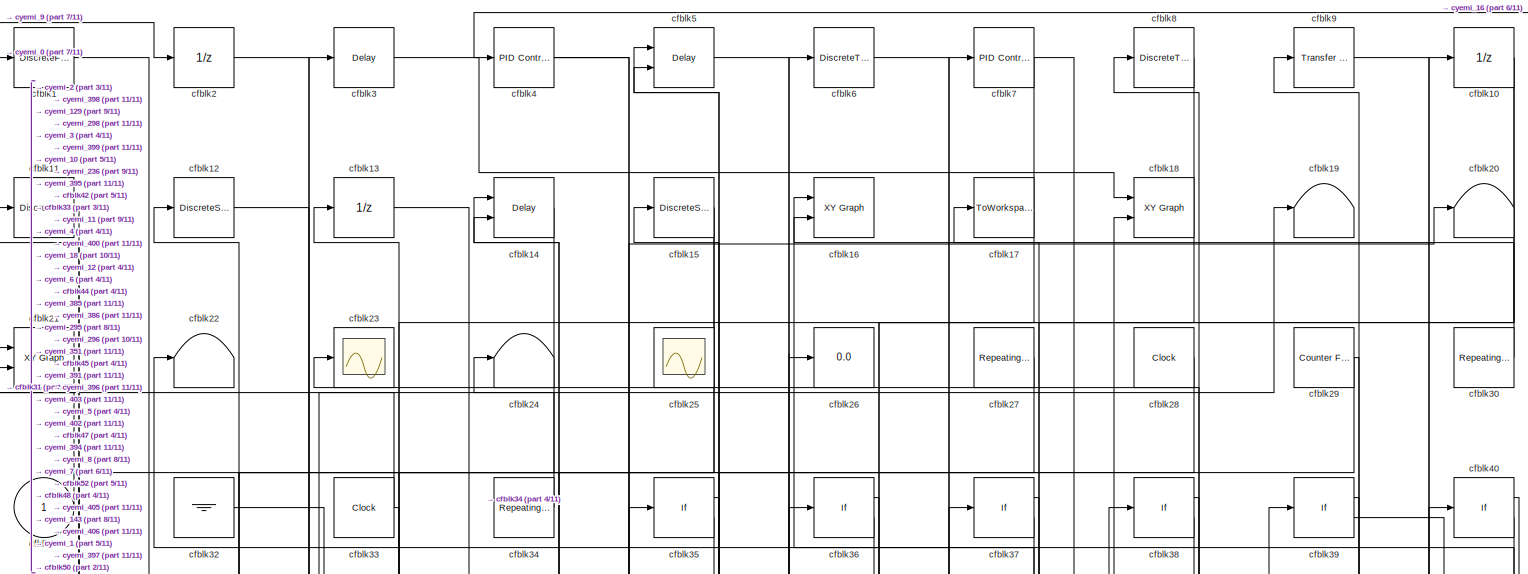
[diagram: root canvas - part 1/11, full width, top band]
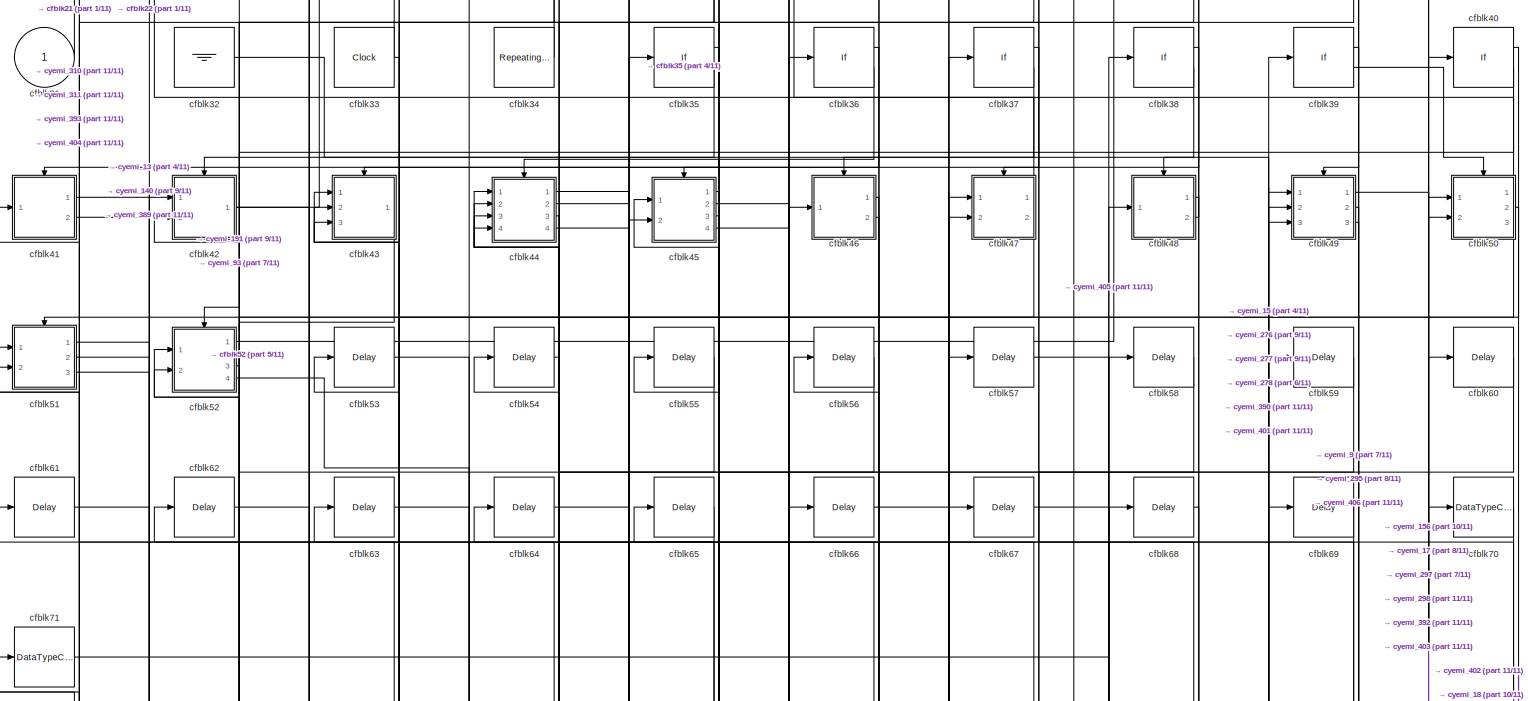
[diagram: root canvas - part 2/11, full width, top band]
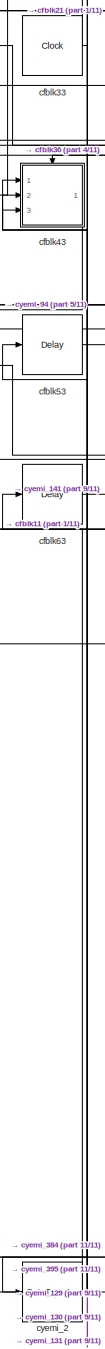
[diagram: root canvas - part 3/11, middle left region]
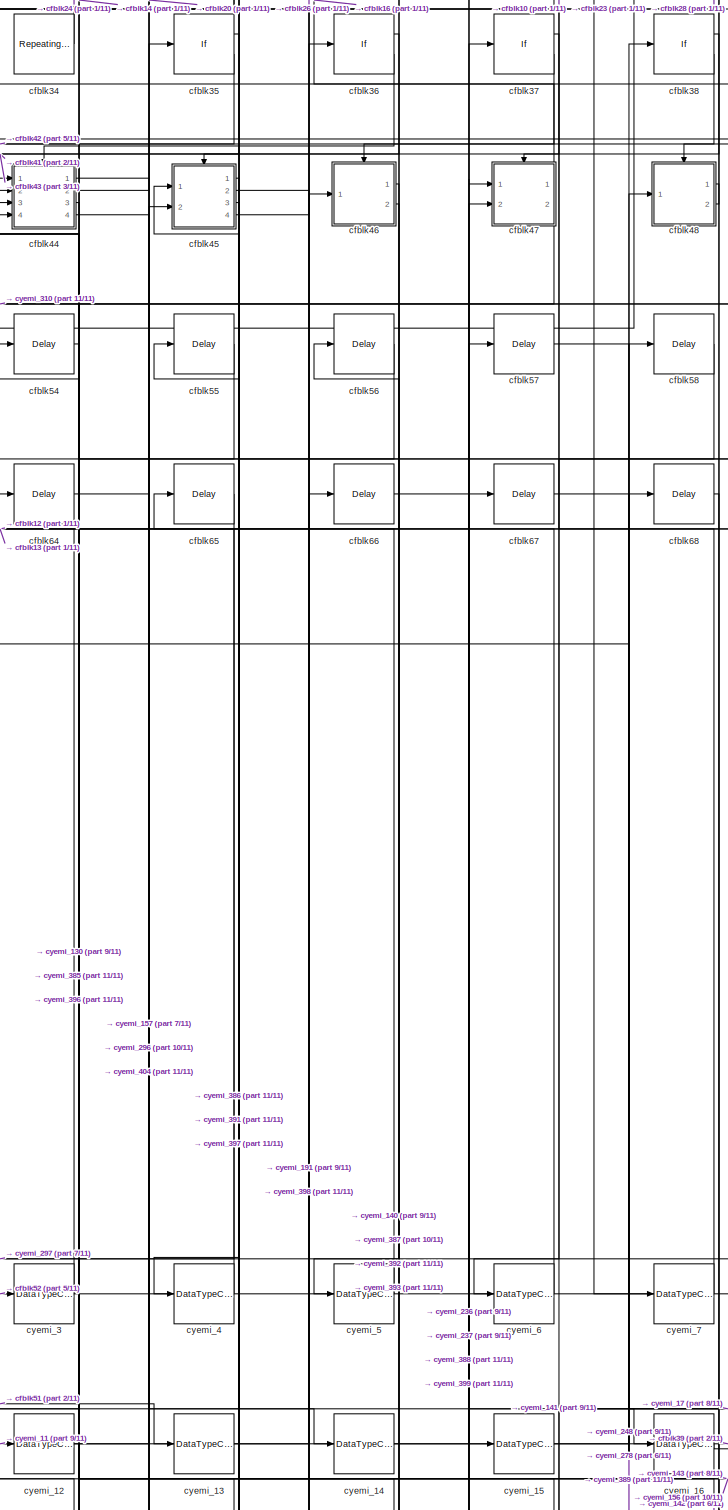
[diagram: root canvas - part 4/11, central region]
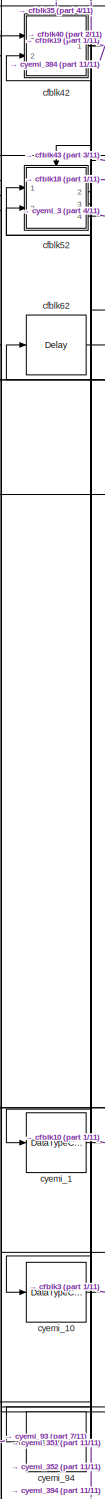
[diagram: root canvas - part 5/11, middle left region]
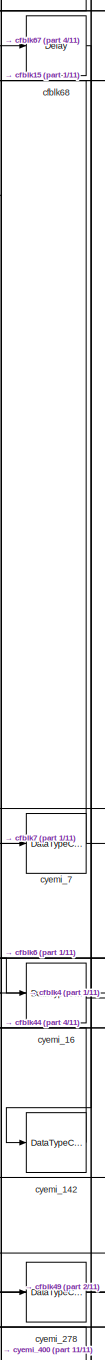
[diagram: root canvas - part 6/11, middle right region]
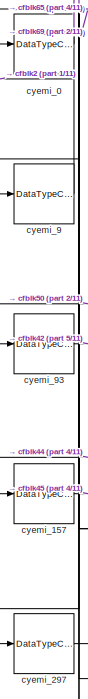
[diagram: root canvas - part 7/11, bottom left region]
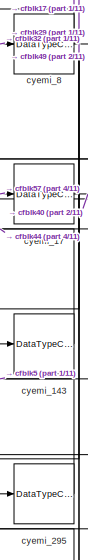
[diagram: root canvas - part 8/11, bottom right region]
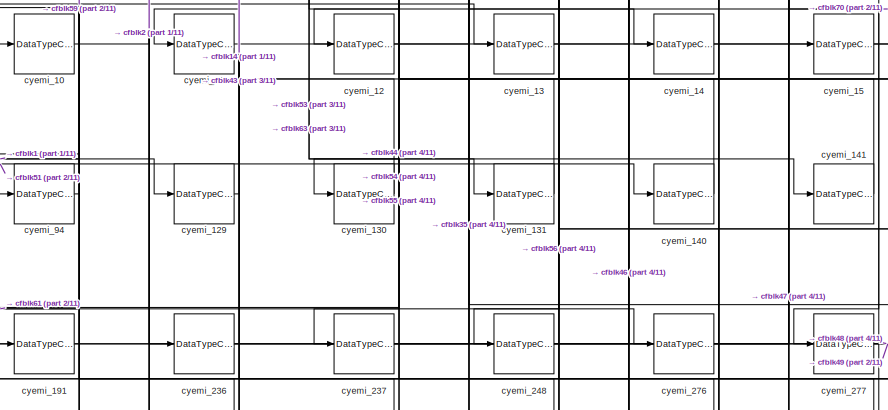
[diagram: root canvas - part 9/11, bottom center region]
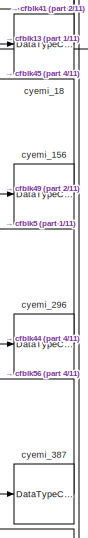
[diagram: root canvas - part 10/11, bottom right region]
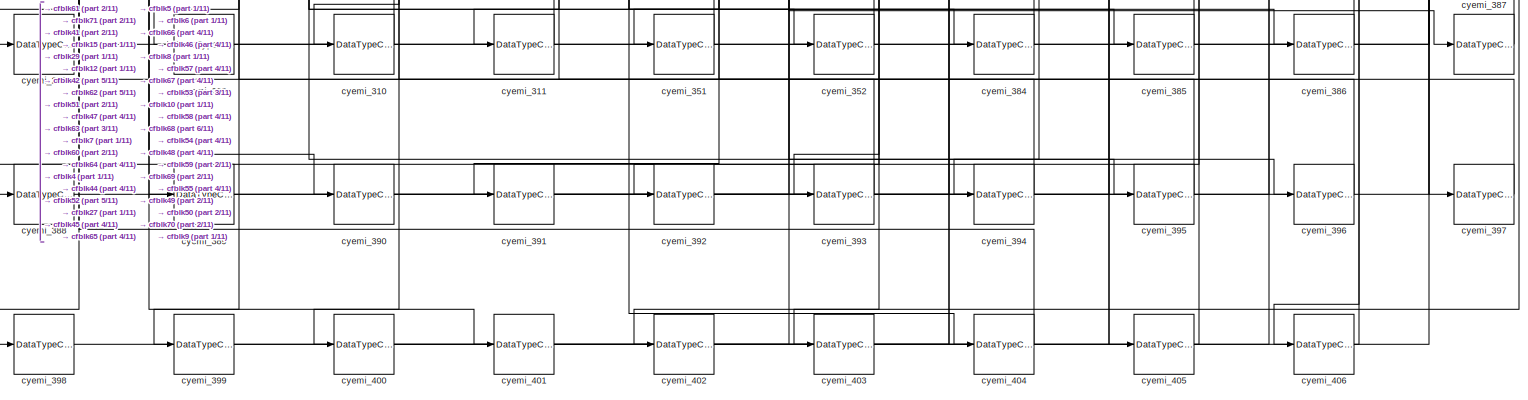
[diagram: root canvas - part 11/11, full width, bottom band]
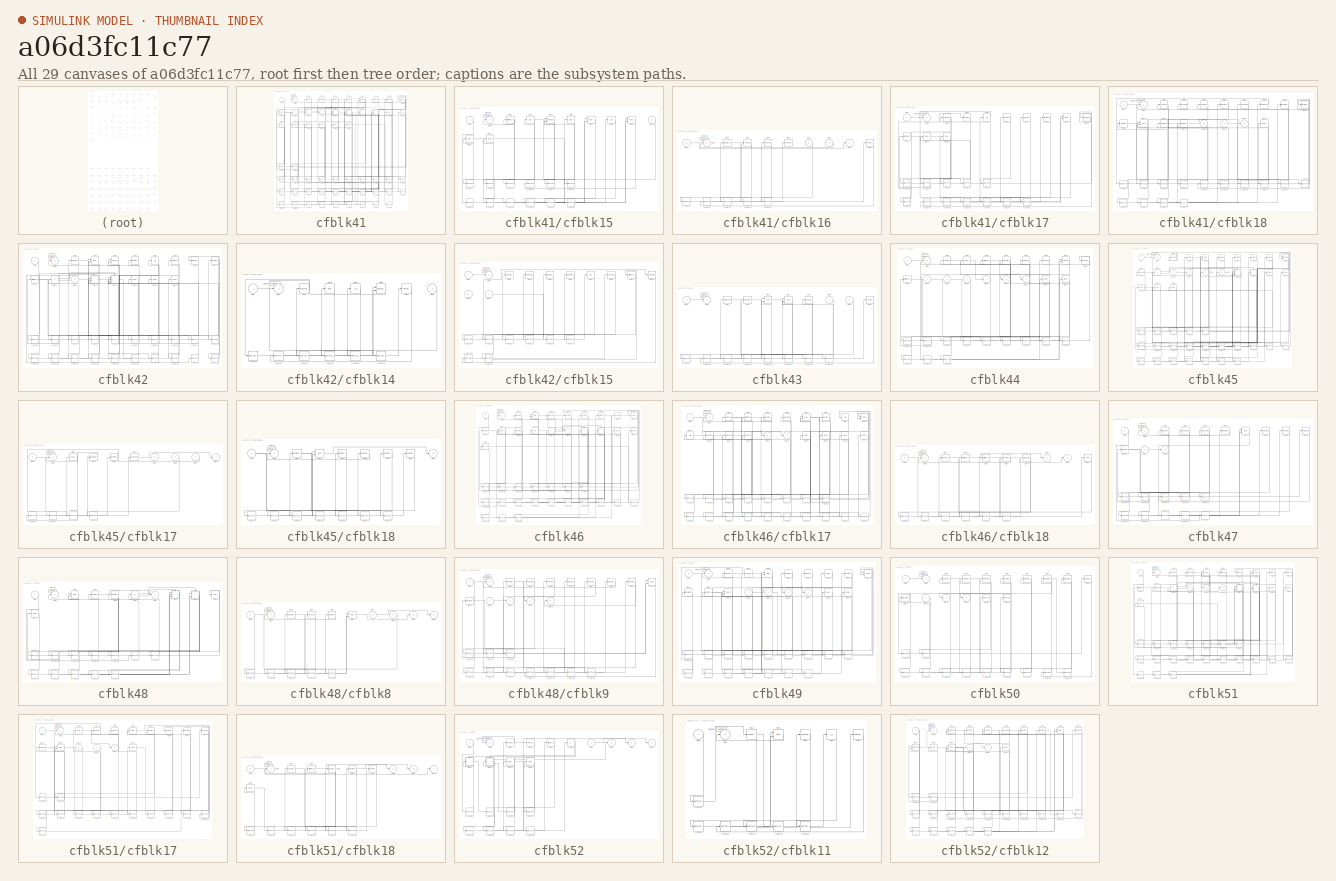
[diagram: thumbnail index - all 29 canvases of the model, root first then tree order]
MODEL slx_a06d3fc11c77
KIND model
CONFIG AbsTol = auto
CONFIG EnableMultiTasking = off
CONFIG FixedStep = auto
CONFIG MaxStep = auto
CONFIG MinStep = auto
CONFIG RelTol = 1e-3
CONFIG SampleTimeConstraint = Unconstrained
CONFIG Solver = VariableStepAuto
CONFIG SolverName = VariableStepAuto
CONFIG StartTime = 0.0
CONFIG StopTime = 10.0
BLOCK [DiscreteFilter] cfblk1
  InputPortMap = u0
  Ports = [1, 1]
  SampleTime = 1
BLOCK [UnitDelay] cfblk10
  InputProcessing = Elements as channels (sample based)
BLOCK [DiscreteStateSpace] cfblk11
BLOCK [DiscreteStateSpace] cfblk12
BLOCK [UnitDelay] cfblk13
  InputProcessing = Elements as channels (sample based)
BLOCK [Delay] cfblk14
  InputPortMap = u0,e6
  Ports = [2, 1]
  SampleTime = 1
  ShowEnablePort = on
BLOCK [DiscreteStateSpace] cfblk15
BLOCK [Reference] cfblk16  REF=simulink/Sinks/XY Graph
  Ports = [2]
  SourceBlock = simulink/Sinks/XY Graph
  SourceProductBaseCode = SL
  SourceProductName = Simulink
  SourceType = XY scope.
BLOCK [ToWorkspace] cfblk17
  FixptAsFi = on
  MaxDataPoints = inf
  Ports = [1]
  SampleTime = -1
  Save2DSignal = 3-D array (concatenate along third dimension)
  SaveFormat = Timeseries
  VariableName = ggrnzxh
BLOCK [Reference] cfblk18  REF=simulink/Sinks/XY Graph
  Ports = [2]
  SourceBlock = simulink/Sinks/XY Graph
  SourceProductBaseCode = SL
  SourceProductName = Simulink
  SourceType = XY scope.
BLOCK [Terminator] cfblk19
BLOCK [UnitDelay] cfblk2
  InputProcessing = Elements as channels (sample based)
BLOCK [Terminator] cfblk20
BLOCK [Reference] cfblk21  REF=simulink/Sinks/XY Graph
  Ports = [2]
  SourceBlock = simulink/Sinks/XY Graph
  SourceProductBaseCode = SL
  SourceProductName = Simulink
  SourceType = XY scope.
BLOCK [Terminator] cfblk22
BLOCK [Scope] cfblk23
  Floating = off
  NumInputPorts = 1
  Ports = [1]
  ScopeSpecificationString = Simulink.scopes.TimeScopeBlockCfg('CurrentConfiguration', extmgr.ConfigurationSet(extmgr.Configuration('Core','General UI',true),extmgr.Configuration('Core','Source UI',true),extmgr.Configuration('Sources','WiredSimulink',true),extmgr.Configuration('Visuals','Time Domain',true),extmgr.Configuration('Tools','Plot Navigation',true),extmgr.Configuration('Tools','Measurements',true)),'Version','2018a'...<+1ch>
BLOCK [Terminator] cfblk24
BLOCK [Scope] cfblk25
  Floating = on
  NumInputPorts = 1
  Ports = []
  ScopeSpecificationString = Simulink.scopes.TimeScopeBlockCfg('CurrentConfiguration', extmgr.ConfigurationSet(extmgr.Configuration('Core','General UI',true),extmgr.Configuration('Core','Source UI',true),extmgr.Configuration('Sources','WiredSimulink',true),extmgr.Configuration('Visuals','Time Domain',true),extmgr.Configuration('Tools','Plot Navigation',true),extmgr.Configuration('Tools','Measurements',true)),'Version','2018a'...<+1ch>
BLOCK [Display] cfblk26
  Decimation = 1
  Ports = [1]
BLOCK [Reference] cfblk27  REF=simulink/Sources/Repeating
Sequence
Stair
  Ports = [0, 1]
  SourceBlock = simulink/Sources/Repeating\nSequence\nStair
  SourceProductBaseCode = SL
  SourceProductName = Simulink
  SourceType = Repeating Sequence Stair
BLOCK [Clock] cfblk28
BLOCK [Reference] cfblk29  REF=simulink/Sources/Counter
Free-Running
  Ports = [0, 1]
  SourceBlock = simulink/Sources/Counter\nFree-Running
  SourceProductBaseCode = SL
  SourceProductName = Simulink
  SourceType = Counter Free-Running
BLOCK [Delay] cfblk3
  InputPortMap = u0
  Ports = [1, 1]
  SampleTime = 1
BLOCK [Reference] cfblk30  REF=simulink/Sources/Repeating
Sequence
Stair
  Ports = [0, 1]
  SourceBlock = simulink/Sources/Repeating\nSequence\nStair
  SourceProductBaseCode = SL
  SourceProductName = Simulink
  SourceType = Repeating Sequence Stair
BLOCK [Inport] cfblk31
  IconDisplay = Port number
BLOCK [Ground] cfblk32
BLOCK [Clock] cfblk33
BLOCK [Reference] cfblk34  REF=simulink/Sources/Repeating
Sequence
Stair
  Ports = [0, 1]
  SourceBlock = simulink/Sources/Repeating\nSequence\nStair
  SourceProductBaseCode = SL
  SourceProductName = Simulink
  SourceType = Repeating Sequence Stair
BLOCK [If] cfblk35
  Ports = [1, 2]
  SampleTime = 1
BLOCK [If] cfblk36
  Ports = [1, 2]
  SampleTime = 1
BLOCK [If] cfblk37
  Ports = [1, 2]
  SampleTime = 1
BLOCK [If] cfblk38
  Ports = [1, 2]
  SampleTime = 1
BLOCK [If] cfblk39
  Ports = [1, 2]
  SampleTime = 1
BLOCK [Reference] cfblk4  REF=simulink/Continuous/PID Controller
  Ports = [1, 1]
  SourceBlock = simulink/Continuous/PID Controller
  SourceProductBaseCode = SL
  SourceProductName = Simulink
  SourceType = PID 1dof
BLOCK [If] cfblk40
  Ports = [1, 2]
  SampleTime = 1
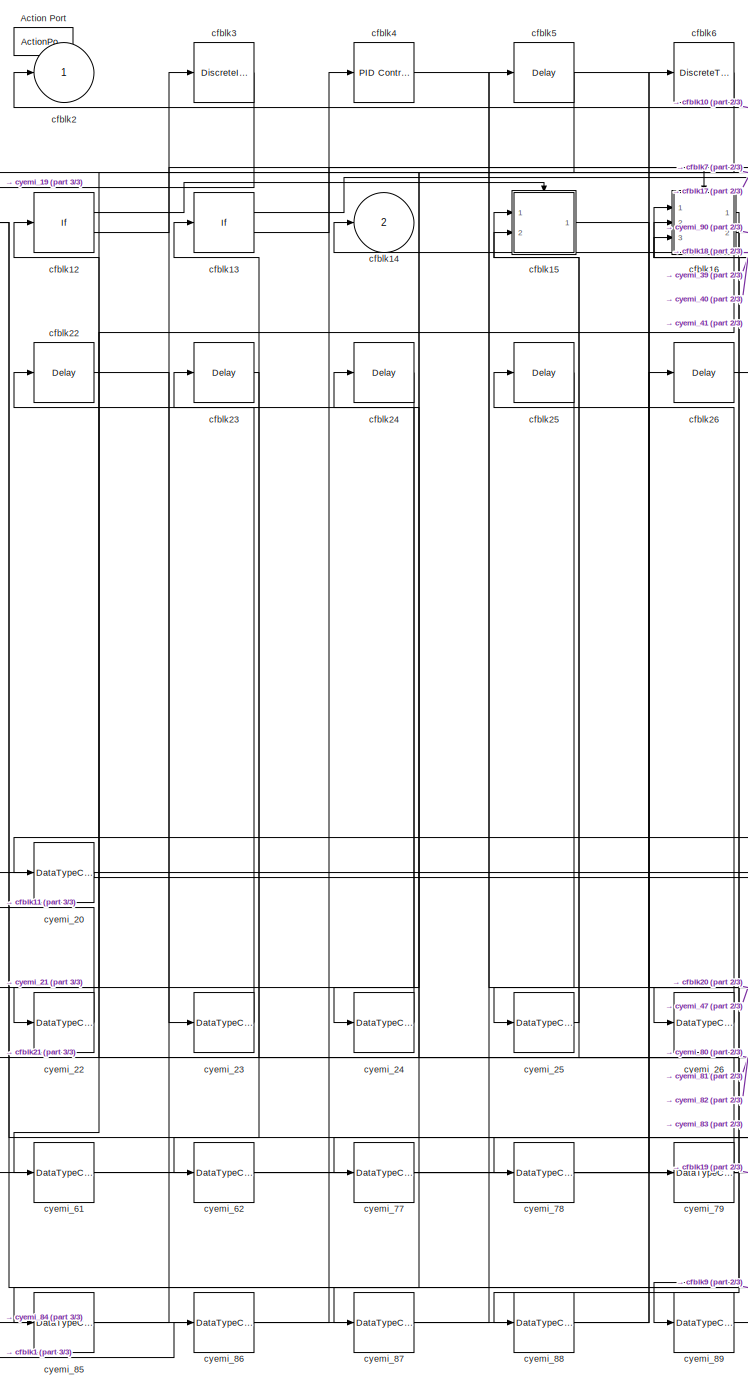
[diagram: cfblk41 - part 1/3, center side, full height]
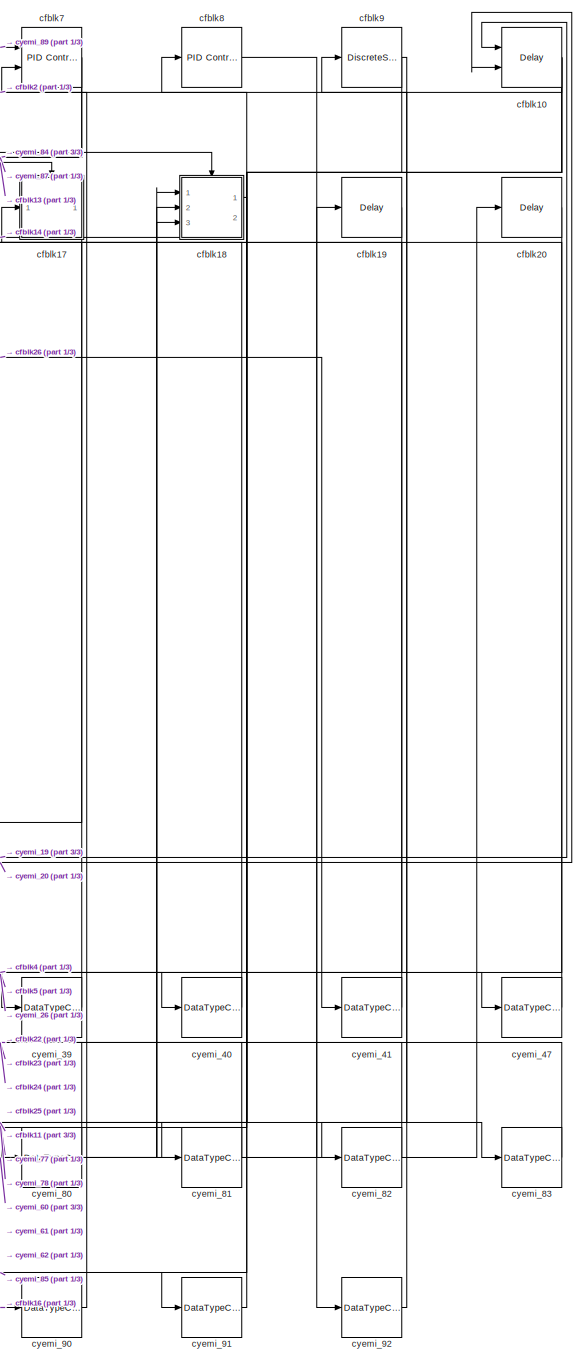
[diagram: cfblk41 - part 2/3, right side, full height]
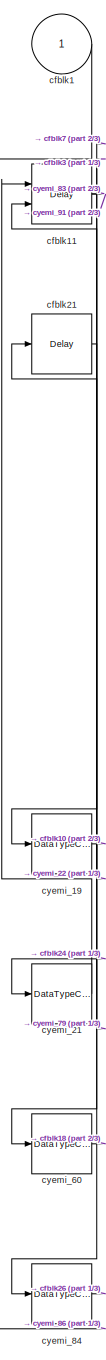
[diagram: cfblk41 - part 3/3, left side, full height]
BLOCK [SubSystem] cfblk41
  Ports = [1, 2, 0, 0, 0, 0, 0, 1]
  RequestExecContextInheritance = off
  TreatAsAtomicUnit = on
BLOCK [ActionPort] cfblk41/Action Port
  ActionType = then
BLOCK [Inport] cfblk41/cfblk1
  IconDisplay = Port number
BLOCK [Delay] cfblk41/cfblk10
  DelayLengthSource = Input port
  InputPortMap = u0,p1
  Ports = [2, 1]
BLOCK [Delay] cfblk41/cfblk11
  InputPortMap = u0,e6
  Ports = [2, 1]
  ShowEnablePort = on
BLOCK [If] cfblk41/cfblk12
  Ports = [1, 2]
  SampleTime = 1
BLOCK [If] cfblk41/cfblk13
  Ports = [1, 2]
  SampleTime = 1
BLOCK [Outport] cfblk41/cfblk14
  IconDisplay = Port number
  Port = 2
BLOCK [SubSystem] cfblk41/cfblk15
  Ports = [2, 1, 0, 0, 0, 0, 0, 1]
  RequestExecContextInheritance = off
  TreatAsAtomicUnit = on
BLOCK [ActionPort] cfblk41/cfblk15/Action Port
  ActionType = then
BLOCK [Inport] cfblk41/cfblk15/cfblk1
  IconDisplay = Port number
BLOCK [Inport] cfblk41/cfblk15/cfblk10
  IconDisplay = Port number
  Port = 2
BLOCK [Delay] cfblk41/cfblk15/cfblk11
  InputPortMap = u0
  Ports = [1, 1]
BLOCK [Delay] cfblk41/cfblk15/cfblk12
  InputPortMap = u0
  Ports = [1, 1]
BLOCK [Outport] cfblk41/cfblk15/cfblk2
  IconDisplay = Port number
BLOCK [Reference] cfblk41/cfblk15/cfblk3  REF=simulink/Discrete/Difference
  Ports = [1, 1]
  SourceBlock = simulink/Discrete/Difference
  SourceProductBaseCode = SL
  SourceProductName = Simulink
  SourceType = Difference
BLOCK [UnitDelay] cfblk41/cfblk15/cfblk4
  InputProcessing = Elements as channels (sample based)
  SampleTime = -1
BLOCK [Reference] cfblk41/cfblk15/cfblk5  REF=simulink/Continuous/PID Controller (2DOF)
  Ports = [2, 1]
  SourceBlock = simulink/Continuous/PID Controller (2DOF)
  SourceProductBaseCode = SL
  SourceProductName = Simulink
  SourceType = PID 2dof
BLOCK [Delay] cfblk41/cfblk15/cfblk6
  InputPortMap = u0
  Ports = [1, 1]
BLOCK [Delay] cfblk41/cfblk15/cfblk7
  DelayLengthSource = Input port
  InputPortMap = u0,p1
  Ports = [2, 1]
BLOCK [UnitDelay] cfblk41/cfblk15/cfblk8
  InputProcessing = Elements as channels (sample based)
  SampleTime = -1
BLOCK [Delay] cfblk41/cfblk15/cfblk9
  DelayLengthSource = Input port
  InputPortMap = u0,p1
  Ports = [2, 1]
BLOCK [DataTypeConversion] cfblk41/cfblk15/cyemi_27
  OutDataTypeStr = double
  RndMeth = Floor
  SaturateOnIntegerOverflow = off
BLOCK [DataTypeConversion] cfblk41/cfblk15/cyemi_28
  OutDataTypeStr = double
  RndMeth = Floor
  SaturateOnIntegerOverflow = off
BLOCK [DataTypeConversion] cfblk41/cfblk15/cyemi_29
  OutDataTypeStr = double
  RndMeth = Floor
  SaturateOnIntegerOverflow = off
BLOCK [DataTypeConversion] cfblk41/cfblk15/cyemi_30
  OutDataTypeStr = double
  RndMeth = Floor
  SaturateOnIntegerOverflow = off
BLOCK [DataTypeConversion] cfblk41/cfblk15/cyemi_31
  OutDataTypeStr = double
  RndMeth = Floor
  SaturateOnIntegerOverflow = off
BLOCK [DataTypeConversion] cfblk41/cfblk15/cyemi_32
  OutDataTypeStr = double
  RndMeth = Floor
  SaturateOnIntegerOverflow = off
BLOCK [DataTypeConversion] cfblk41/cfblk15/cyemi_33
  OutDataTypeStr = double
  RndMeth = Floor
  SaturateOnIntegerOverflow = off
BLOCK [DataTypeConversion] cfblk41/cfblk15/cyemi_34
  OutDataTypeStr = double
  RndMeth = Floor
  SaturateOnIntegerOverflow = off
BLOCK [DataTypeConversion] cfblk41/cfblk15/cyemi_35
  OutDataTypeStr = double
  RndMeth = Floor
  SaturateOnIntegerOverflow = off
BLOCK [DataTypeConversion] cfblk41/cfblk15/cyemi_36
  OutDataTypeStr = double
  RndMeth = Floor
  SaturateOnIntegerOverflow = off
BLOCK [DataTypeConversion] cfblk41/cfblk15/cyemi_37
  OutDataTypeStr = double
  RndMeth = Floor
  SaturateOnIntegerOverflow = off
BLOCK [DataTypeConversion] cfblk41/cfblk15/cyemi_38
  OutDataTypeStr = double
  RndMeth = Floor
  SaturateOnIntegerOverflow = off
BLOCK [SubSystem] cfblk41/cfblk16
  Ports = [3, 2, 0, 0, 0, 0, 0, 1]
  RequestExecContextInheritance = off
  TreatAsAtomicUnit = on
BLOCK [ActionPort] cfblk41/cfblk16/Action Port
  ActionType = else
BLOCK [Inport] cfblk41/cfblk16/cfblk1
  IconDisplay = Port number
BLOCK [Delay] cfblk41/cfblk16/cfblk10
  InputPortMap = u0
  Ports = [1, 1]
BLOCK [Outport] cfblk41/cfblk16/cfblk2
  IconDisplay = Port number
BLOCK [DiscreteStateSpace] cfblk41/cfblk16/cfblk3
  SampleTime = -1
BLOCK [Reference] cfblk41/cfblk16/cfblk4  REF=simulink/Discrete/Transfer Fcn
Lead or Lag
  Ports = [1, 1]
  SourceBlock = simulink/Discrete/Transfer Fcn\nLead or Lag
  SourceProductBaseCode = SL
  SourceProductName = Simulink
  SourceType = Lead or Lag Compensator
BLOCK [Reference] cfblk41/cfblk16/cfblk5  REF=simulink/Discrete/Transfer Fcn
Lead or Lag
  Ports = [1, 1]
  SourceBlock = simulink/Discrete/Transfer Fcn\nLead or Lag
  SourceProductBaseCode = SL
  SourceProductName = Simulink
  SourceType = Lead or Lag Compensator
BLOCK [Reference] cfblk41/cfblk16/cfblk6  REF=simulink/Continuous/PID Controller
  Ports = [1, 1]
  SourceBlock = simulink/Continuous/PID Controller
  SourceProductBaseCode = SL
  SourceProductName = Simulink
  SourceType = PID 1dof
BLOCK [Inport] cfblk41/cfblk16/cfblk7
  IconDisplay = Port number
  Port = 2
BLOCK [Inport] cfblk41/cfblk16/cfblk8
  IconDisplay = Port number
  Port = 3
BLOCK [Outport] cfblk41/cfblk16/cfblk9
  IconDisplay = Port number
  Port = 2
BLOCK [DataTypeConversion] cfblk41/cfblk16/cyemi_42
  OutDataTypeStr = double
  RndMeth = Floor
  SaturateOnIntegerOverflow = off
BLOCK [DataTypeConversion] cfblk41/cfblk16/cyemi_43
  OutDataTypeStr = double
  RndMeth = Floor
  SaturateOnIntegerOverflow = off
BLOCK [DataTypeConversion] cfblk41/cfblk16/cyemi_44
  OutDataTypeStr = double
  RndMeth = Floor
  SaturateOnIntegerOverflow = off
BLOCK [DataTypeConversion] cfblk41/cfblk16/cyemi_45
  OutDataTypeStr = double
  RndMeth = Floor
  SaturateOnIntegerOverflow = off
BLOCK [DataTypeConversion] cfblk41/cfblk16/cyemi_46
  OutDataTypeStr = double
  RndMeth = Floor
  SaturateOnIntegerOverflow = off
BLOCK [SubSystem] cfblk41/cfblk17
  Ports = [1, 1, 0, 0, 0, 0, 0, 1]
  RequestExecContextInheritance = off
  TreatAsAtomicUnit = on
BLOCK [ActionPort] cfblk41/cfblk17/Action Port
  ActionType = then
BLOCK [Inport] cfblk41/cfblk17/cfblk1
  IconDisplay = Port number
BLOCK [Reference] cfblk41/cfblk17/cfblk10  REF=simulink/Discrete/Transfer Fcn
Real Zero
  Ports = [1, 1]
  SourceBlock = simulink/Discrete/Transfer Fcn\nReal Zero
  SourceProductBaseCode = SL
  SourceProductName = Simulink
  SourceType = Transfer Fcn Real Zero
BLOCK [DiscreteFir] cfblk41/cfblk17/cfblk11
  InputPortMap = u0
  OutputPortMap = o0
  Ports = [1, 1]
BLOCK [Delay] cfblk41/cfblk17/cfblk12
  InputPortMap = u0
  Ports = [1, 1]
BLOCK [Delay] cfblk41/cfblk17/cfblk13
  InputPortMap = u0
  Ports = [1, 1]
BLOCK [Outport] cfblk41/cfblk17/cfblk2
  IconDisplay = Port number
BLOCK [Reference] cfblk41/cfblk17/cfblk3  REF=simulink/Discrete/Transfer Fcn
Lead or Lag
  Ports = [1, 1]
  SourceBlock = simulink/Discrete/Transfer Fcn\nLead or Lag
  SourceProductBaseCode = SL
  SourceProductName = Simulink
  SourceType = Lead or Lag Compensator
BLOCK [DiscreteStateSpace] cfblk41/cfblk17/cfblk4
  SampleTime = -1
BLOCK [UnitDelay] cfblk41/cfblk17/cfblk5
  InputProcessing = Elements as channels (sample based)
  SampleTime = -1
BLOCK [Reference] cfblk41/cfblk17/cfblk6  REF=simulink/Discrete/Transfer Fcn
First Order
  Ports = [1, 1]
  SourceBlock = simulink/Discrete/Transfer Fcn\nFirst Order
  SourceProductBaseCode = SL
  SourceProductName = Simulink
  SourceType = First Order Transfer Fcn
BLOCK [Reference] cfblk41/cfblk17/cfblk7  REF=simulink/Discrete/Transfer Fcn
Lead or Lag
  Ports = [1, 1]
  SourceBlock = simulink/Discrete/Transfer Fcn\nLead or Lag
  SourceProductBaseCode = SL
  SourceProductName = Simulink
  SourceType = Lead or Lag Compensator
BLOCK [DiscreteIntegrator] cfblk41/cfblk17/cfblk8
  ICPrevOutput = DiscIntNeverNeededParam
  ICPrevScaledInput = DiscIntNeverNeededParam
  InitialConditionSetting = Auto
  OutDataTypeStr = double
  Ports = [1, 1]
  SampleTime = -1
BLOCK [Delay] cfblk41/cfblk17/cfblk9
  DelayLengthSource = Input port
  InputPortMap = u0,p1
  Ports = [2, 1]
BLOCK [DataTypeConversion] cfblk41/cfblk17/cyemi_48
  OutDataTypeStr = double
  RndMeth = Floor
  SaturateOnIntegerOverflow = off
BLOCK [DataTypeConversion] cfblk41/cfblk17/cyemi_49
  OutDataTypeStr = double
  RndMeth = Floor
  SaturateOnIntegerOverflow = off
BLOCK [DataTypeConversion] cfblk41/cfblk17/cyemi_50
  OutDataTypeStr = double
  RndMeth = Floor
  SaturateOnIntegerOverflow = off
BLOCK [DataTypeConversion] cfblk41/cfblk17/cyemi_51
  OutDataTypeStr = double
  RndMeth = Floor
  SaturateOnIntegerOverflow = off
BLOCK [DataTypeConversion] cfblk41/cfblk17/cyemi_52
  OutDataTypeStr = double
  RndMeth = Floor
  SaturateOnIntegerOverflow = off
BLOCK [DataTypeConversion] cfblk41/cfblk17/cyemi_53
  OutDataTypeStr = double
  RndMeth = Floor
  SaturateOnIntegerOverflow = off
BLOCK [DataTypeConversion] cfblk41/cfblk17/cyemi_54
  OutDataTypeStr = double
  RndMeth = Floor
  SaturateOnIntegerOverflow = off
BLOCK [DataTypeConversion] cfblk41/cfblk17/cyemi_55
  OutDataTypeStr = double
  RndMeth = Floor
  SaturateOnIntegerOverflow = off
BLOCK [DataTypeConversion] cfblk41/cfblk17/cyemi_56
  OutDataTypeStr = double
  RndMeth = Floor
  SaturateOnIntegerOverflow = off
BLOCK [DataTypeConversion] cfblk41/cfblk17/cyemi_57
  OutDataTypeStr = double
  RndMeth = Floor
  SaturateOnIntegerOverflow = off
BLOCK [DataTypeConversion] cfblk41/cfblk17/cyemi_58
  OutDataTypeStr = double
  RndMeth = Floor
  SaturateOnIntegerOverflow = off
BLOCK [DataTypeConversion] cfblk41/cfblk17/cyemi_59
  OutDataTypeStr = double
  RndMeth = Floor
  SaturateOnIntegerOverflow = off
BLOCK [SubSystem] cfblk41/cfblk18
  Ports = [3, 2, 0, 0, 0, 0, 0, 1]
  RequestExecContextInheritance = off
  TreatAsAtomicUnit = on
BLOCK [ActionPort] cfblk41/cfblk18/Action Port
  ActionType = else
BLOCK [Inport] cfblk41/cfblk18/cfblk1
  IconDisplay = Port number
BLOCK [DiscreteStateSpace] cfblk41/cfblk18/cfblk10
  SampleTime = -1
BLOCK [DiscreteIntegrator] cfblk41/cfblk18/cfblk11
  ICPrevOutput = DiscIntNeverNeededParam
  ICPrevScaledInput = DiscIntNeverNeededParam
  InitialConditionSetting = Auto
  OutDataTypeStr = double
  Ports = [1, 1]
  SampleTime = -1
BLOCK [Delay] cfblk41/cfblk18/cfblk12
  DelayLengthSource = Input port
  InputPortMap = u0,p1
  Ports = [2, 1]
BLOCK [DiscreteStateSpace] cfblk41/cfblk18/cfblk13
  SampleTime = -1
BLOCK [DiscreteZeroPole] cfblk41/cfblk18/cfblk14
  Gain = 1
  Poles = [0 0.5]
  SampleTime = -1
BLOCK [Inport] cfblk41/cfblk18/cfblk15
  IconDisplay = Port number
  Port = 2
BLOCK [Inport] cfblk41/cfblk18/cfblk16
  IconDisplay = Port number
  Port = 3
BLOCK [Outport] cfblk41/cfblk18/cfblk17
  IconDisplay = Port number
  Port = 2
BLOCK [Delay] cfblk41/cfblk18/cfblk18
  InputPortMap = u0
  Ports = [1, 1]
BLOCK [Outport] cfblk41/cfblk18/cfblk2
  IconDisplay = Port number
BLOCK [Reference] cfblk41/cfblk18/cfblk3  REF=simulink/Discrete/Transfer Fcn
Lead or Lag
  Ports = [1, 1]
  SourceBlock = simulink/Discrete/Transfer Fcn\nLead or Lag
  SourceProductBaseCode = SL
  SourceProductName = Simulink
  SourceType = Lead or Lag Compensator
BLOCK [Reference] cfblk41/cfblk18/cfblk4  REF=simulink/Discrete/Tapped Delay
  Ports = [1, 1]
  SourceBlock = simulink/Discrete/Tapped Delay
  SourceProductBaseCode = SL
  SourceProductName = Simulink
  SourceType = Tapped Delay Line
BLOCK [DiscreteStateSpace] cfblk41/cfblk18/cfblk5
  SampleTime = -1
BLOCK [DiscreteZeroPole] cfblk41/cfblk18/cfblk6
  Gain = 1
  Poles = [0 0.5]
  SampleTime = -1
BLOCK [Reference] cfblk41/cfblk18/cfblk7  REF=simulink/Discrete/Tapped Delay
  Ports = [1, 1]
  SourceBlock = simulink/Discrete/Tapped Delay
  SourceProductBaseCode = SL
  SourceProductName = Simulink
  SourceType = Tapped Delay Line
BLOCK [Reference] cfblk41/cfblk18/cfblk8  REF=simulink/Continuous/PID Controller
  Ports = [1, 1]
  SourceBlock = simulink/Continuous/PID Controller
  SourceProductBaseCode = SL
  SourceProductName = Simulink
  SourceType = PID 1dof
BLOCK [DiscreteStateSpace] cfblk41/cfblk18/cfblk9
  SampleTime = -1
BLOCK [DataTypeConversion] cfblk41/cfblk18/cyemi_63
  OutDataTypeStr = double
  RndMeth = Floor
  SaturateOnIntegerOverflow = off
BLOCK [DataTypeConversion] cfblk41/cfblk18/cyemi_64
  OutDataTypeStr = double
  RndMeth = Floor
  SaturateOnIntegerOverflow = off
BLOCK [DataTypeConversion] cfblk41/cfblk18/cyemi_65
  OutDataTypeStr = double
  RndMeth = Floor
  SaturateOnIntegerOverflow = off
BLOCK [DataTypeConversion] cfblk41/cfblk18/cyemi_66
  OutDataTypeStr = double
  RndMeth = Floor
  SaturateOnIntegerOverflow = off
BLOCK [DataTypeConversion] cfblk41/cfblk18/cyemi_67
  OutDataTypeStr = double
  RndMeth = Floor
  SaturateOnIntegerOverflow = off
BLOCK [DataTypeConversion] cfblk41/cfblk18/cyemi_68
  OutDataTypeStr = double
  RndMeth = Floor
  SaturateOnIntegerOverflow = off
BLOCK [DataTypeConversion] cfblk41/cfblk18/cyemi_69
  OutDataTypeStr = double
  RndMeth = Floor
  SaturateOnIntegerOverflow = off
BLOCK [DataTypeConversion] cfblk41/cfblk18/cyemi_70
  OutDataTypeStr = double
  RndMeth = Floor
  SaturateOnIntegerOverflow = off
BLOCK [DataTypeConversion] cfblk41/cfblk18/cyemi_71
  OutDataTypeStr = double
  RndMeth = Floor
  SaturateOnIntegerOverflow = off
BLOCK [DataTypeConversion] cfblk41/cfblk18/cyemi_72
  OutDataTypeStr = double
  RndMeth = Floor
  SaturateOnIntegerOverflow = off
BLOCK [DataTypeConversion] cfblk41/cfblk18/cyemi_73
  OutDataTypeStr = double
  RndMeth = Floor
  SaturateOnIntegerOverflow = off
BLOCK [DataTypeConversion] cfblk41/cfblk18/cyemi_74
  OutDataTypeStr = double
  RndMeth = Floor
  SaturateOnIntegerOverflow = off
BLOCK [DataTypeConversion] cfblk41/cfblk18/cyemi_75
  OutDataTypeStr = double
  RndMeth = Floor
  SaturateOnIntegerOverflow = off
BLOCK [DataTypeConversion] cfblk41/cfblk18/cyemi_76
  OutDataTypeStr = double
  RndMeth = Floor
  SaturateOnIntegerOverflow = off
BLOCK [Delay] cfblk41/cfblk19
  InputPortMap = u0
  Ports = [1, 1]
BLOCK [Outport] cfblk41/cfblk2
  IconDisplay = Port number
BLOCK [Delay] cfblk41/cfblk20
  InputPortMap = u0
  Ports = [1, 1]
BLOCK [Delay] cfblk41/cfblk21
  InputPortMap = u0
  Ports = [1, 1]
BLOCK [Delay] cfblk41/cfblk22
  InputPortMap = u0
  Ports = [1, 1]
BLOCK [Delay] cfblk41/cfblk23
  InputPortMap = u0
  Ports = [1, 1]
BLOCK [Delay] cfblk41/cfblk24
  InputPortMap = u0
  Ports = [1, 1]
BLOCK [Delay] cfblk41/cfblk25
  InputPortMap = u0
  Ports = [1, 1]
BLOCK [Delay] cfblk41/cfblk26
  InputPortMap = u0
  Ports = [1, 1]
BLOCK [DiscreteIntegrator] cfblk41/cfblk3
  ICPrevOutput = DiscIntNeverNeededParam
  ICPrevScaledInput = DiscIntNeverNeededParam
  InitialConditionSetting = Auto
  OutDataTypeStr = double
  Ports = [1, 1]
  SampleTime = -1
BLOCK [Reference] cfblk41/cfblk4  REF=simulink/Continuous/PID Controller
  Ports = [1, 1]
  SourceBlock = simulink/Continuous/PID Controller
  SourceProductBaseCode = SL
  SourceProductName = Simulink
  SourceType = PID 1dof
BLOCK [Delay] cfblk41/cfblk5
  InputPortMap = u0
  Ports = [1, 1]
BLOCK [DiscreteTransferFcn] cfblk41/cfblk6
  InputPortMap = u0
  Ports = [1, 1]
BLOCK [Reference] cfblk41/cfblk7  REF=simulink/Continuous/PID Controller (2DOF)
  Ports = [2, 1]
  SourceBlock = simulink/Continuous/PID Controller (2DOF)
  SourceProductBaseCode = SL
  SourceProductName = Simulink
  SourceType = PID 2dof
BLOCK [Reference] cfblk41/cfblk8  REF=simulink/Continuous/PID Controller
  Ports = [1, 1]
  SourceBlock = simulink/Continuous/PID Controller
  SourceProductBaseCode = SL
  SourceProductName = Simulink
  SourceType = PID 1dof
BLOCK [DiscreteStateSpace] cfblk41/cfblk9
  SampleTime = -1
BLOCK [DataTypeConversion] cfblk41/cyemi_19
  OutDataTypeStr = double
  RndMeth = Floor
  SaturateOnIntegerOverflow = off
BLOCK [DataTypeConversion] cfblk41/cyemi_20
  OutDataTypeStr = double
  RndMeth = Floor
  SaturateOnIntegerOverflow = off
BLOCK [DataTypeConversion] cfblk41/cyemi_21
  OutDataTypeStr = double
  RndMeth = Floor
  SaturateOnIntegerOverflow = off
BLOCK [DataTypeConversion] cfblk41/cyemi_22
  OutDataTypeStr = double
  RndMeth = Floor
  SaturateOnIntegerOverflow = off
BLOCK [DataTypeConversion] cfblk41/cyemi_23
  OutDataTypeStr = double
  RndMeth = Floor
  SaturateOnIntegerOverflow = off
BLOCK [DataTypeConversion] cfblk41/cyemi_24
  OutDataTypeStr = double
  RndMeth = Floor
  SaturateOnIntegerOverflow = off
BLOCK [DataTypeConversion] cfblk41/cyemi_25
  OutDataTypeStr = double
  RndMeth = Floor
  SaturateOnIntegerOverflow = off
BLOCK [DataTypeConversion] cfblk41/cyemi_26
  OutDataTypeStr = double
  RndMeth = Floor
  SaturateOnIntegerOverflow = off
BLOCK [DataTypeConversion] cfblk41/cyemi_39
  OutDataTypeStr = double
  RndMeth = Floor
  SaturateOnIntegerOverflow = off
BLOCK [DataTypeConversion] cfblk41/cyemi_40
  OutDataTypeStr = double
  RndMeth = Floor
  SaturateOnIntegerOverflow = off
BLOCK [DataTypeConversion] cfblk41/cyemi_41
  OutDataTypeStr = double
  RndMeth = Floor
  SaturateOnIntegerOverflow = off
BLOCK [DataTypeConversion] cfblk41/cyemi_47
  OutDataTypeStr = double
  RndMeth = Floor
  SaturateOnIntegerOverflow = off
BLOCK [DataTypeConversion] cfblk41/cyemi_60
  OutDataTypeStr = double
  RndMeth = Floor
  SaturateOnIntegerOverflow = off
BLOCK [DataTypeConversion] cfblk41/cyemi_61
  OutDataTypeStr = double
  RndMeth = Floor
  SaturateOnIntegerOverflow = off
BLOCK [DataTypeConversion] cfblk41/cyemi_62
  OutDataTypeStr = double
  RndMeth = Floor
  SaturateOnIntegerOverflow = off
BLOCK [DataTypeConversion] cfblk41/cyemi_77
  OutDataTypeStr = double
  RndMeth = Floor
  SaturateOnIntegerOverflow = off
BLOCK [DataTypeConversion] cfblk41/cyemi_78
  OutDataTypeStr = double
  RndMeth = Floor
  SaturateOnIntegerOverflow = off
BLOCK [DataTypeConversion] cfblk41/cyemi_79
  OutDataTypeStr = double
  RndMeth = Floor
  SaturateOnIntegerOverflow = off
BLOCK [DataTypeConversion] cfblk41/cyemi_80
  OutDataTypeStr = double
  RndMeth = Floor
  SaturateOnIntegerOverflow = off
BLOCK [DataTypeConversion] cfblk41/cyemi_81
  OutDataTypeStr = double
  RndMeth = Floor
  SaturateOnIntegerOverflow = off
BLOCK [DataTypeConversion] cfblk41/cyemi_82
  OutDataTypeStr = double
  RndMeth = Floor
  SaturateOnIntegerOverflow = off
BLOCK [DataTypeConversion] cfblk41/cyemi_83
  OutDataTypeStr = double
  RndMeth = Floor
  SaturateOnIntegerOverflow = off
BLOCK [DataTypeConversion] cfblk41/cyemi_84
  OutDataTypeStr = double
  RndMeth = Floor
  SaturateOnIntegerOverflow = off
BLOCK [DataTypeConversion] cfblk41/cyemi_85
  OutDataTypeStr = double
  RndMeth = Floor
  SaturateOnIntegerOverflow = off
BLOCK [DataTypeConversion] cfblk41/cyemi_86
  OutDataTypeStr = double
  RndMeth = Floor
  SaturateOnIntegerOverflow = off
BLOCK [DataTypeConversion] cfblk41/cyemi_87
  OutDataTypeStr = double
  RndMeth = Floor
  SaturateOnIntegerOverflow = off
BLOCK [DataTypeConversion] cfblk41/cyemi_88
  OutDataTypeStr = double
  RndMeth = Floor
  SaturateOnIntegerOverflow = off
BLOCK [DataTypeConversion] cfblk41/cyemi_89
  OutDataTypeStr = double
  RndMeth = Floor
  SaturateOnIntegerOverflow = off
BLOCK [DataTypeConversion] cfblk41/cyemi_90
  OutDataTypeStr = double
  RndMeth = Floor
  SaturateOnIntegerOverflow = off
BLOCK [DataTypeConversion] cfblk41/cyemi_91
  OutDataTypeStr = double
  RndMeth = Floor
  SaturateOnIntegerOverflow = off
BLOCK [DataTypeConversion] cfblk41/cyemi_92
  OutDataTypeStr = double
  RndMeth = Floor
  SaturateOnIntegerOverflow = off
BLOCK [SubSystem] cfblk42
  Ports = [2, 1, 0, 0, 0, 0, 0, 1]
  RequestExecContextInheritance = off
  TreatAsAtomicUnit = on
BLOCK [ActionPort] cfblk42/Action Port
  ActionType = else
BLOCK [Inport] cfblk42/cfblk1
  IconDisplay = Port number
BLOCK [DiscreteFir] cfblk42/cfblk10
  InputPortMap = u0
  OutputPortMap = o0
  Ports = [1, 1]
BLOCK [Reference] cfblk42/cfblk11  REF=simulink/Discrete/Difference
  Ports = [1, 1]
  SourceBlock = simulink/Discrete/Difference
  SourceProductBaseCode = SL
  SourceProductName = Simulink
  SourceType = Difference
BLOCK [If] cfblk42/cfblk12
  Ports = [1, 2]
  SampleTime = 1
BLOCK [Inport] cfblk42/cfblk13
  IconDisplay = Port number
  Port = 2
BLOCK [SubSystem] cfblk42/cfblk14
  Ports = [2, 1, 0, 0, 0, 0, 0, 1]
  RequestExecContextInheritance = off
  TreatAsAtomicUnit = on
BLOCK [ActionPort] cfblk42/cfblk14/Action Port
  ActionType = then
BLOCK [Inport] cfblk42/cfblk14/cfblk1
  IconDisplay = Port number
BLOCK [Outport] cfblk42/cfblk14/cfblk2
  IconDisplay = Port number
BLOCK [Reference] cfblk42/cfblk14/cfblk3  REF=simulink/Discrete/Tapped Delay
  Ports = [1, 1]
  SourceBlock = simulink/Discrete/Tapped Delay
  SourceProductBaseCode = SL
  SourceProductName = Simulink
  SourceType = Tapped Delay Line
BLOCK [Delay] cfblk42/cfblk14/cfblk4
  InputPortMap = u0
  Ports = [1, 1]
BLOCK [UnitDelay] cfblk42/cfblk14/cfblk5
  InputProcessing = Elements as channels (sample based)
  SampleTime = -1
BLOCK [Reference] cfblk42/cfblk14/cfblk6  REF=simulink/Continuous/PID Controller (2DOF)
  Ports = [2, 1]
  SourceBlock = simulink/Continuous/PID Controller (2DOF)
  SourceProductBaseCode = SL
  SourceProductName = Simulink
  SourceType = PID 2dof
BLOCK [Reference] cfblk42/cfblk14/cfblk7  REF=simulink/Discrete/Transfer Fcn
Lead or Lag
  Ports = [1, 1]
  SourceBlock = simulink/Discrete/Transfer Fcn\nLead or Lag
  SourceProductBaseCode = SL
  SourceProductName = Simulink
  SourceType = Lead or Lag Compensator
BLOCK [Inport] cfblk42/cfblk14/cfblk8
  IconDisplay = Port number
  Port = 2
BLOCK [DataTypeConversion] cfblk42/cfblk14/cyemi_100
  OutDataTypeStr = double
  RndMeth = Floor
  SaturateOnIntegerOverflow = off
BLOCK [DataTypeConversion] cfblk42/cfblk14/cyemi_101
  OutDataTypeStr = double
  RndMeth = Floor
  SaturateOnIntegerOverflow = off
BLOCK [DataTypeConversion] cfblk42/cfblk14/cyemi_102
  OutDataTypeStr = double
  RndMeth = Floor
  SaturateOnIntegerOverflow = off
BLOCK [DataTypeConversion] cfblk42/cfblk14/cyemi_103
  OutDataTypeStr = double
  RndMeth = Floor
  SaturateOnIntegerOverflow = off
BLOCK [DataTypeConversion] cfblk42/cfblk14/cyemi_104
  OutDataTypeStr = double
  RndMeth = Floor
  SaturateOnIntegerOverflow = off
BLOCK [DataTypeConversion] cfblk42/cfblk14/cyemi_105
  OutDataTypeStr = double
  RndMeth = Floor
  SaturateOnIntegerOverflow = off
BLOCK [SubSystem] cfblk42/cfblk15
  Ports = [3, 1, 0, 0, 0, 0, 0, 1]
  RequestExecContextInheritance = off
  TreatAsAtomicUnit = on
BLOCK [ActionPort] cfblk42/cfblk15/Action Port
  ActionType = else
BLOCK [Inport] cfblk42/cfblk15/cfblk1
  IconDisplay = Port number
BLOCK [Reference] cfblk42/cfblk15/cfblk10  REF=simulink/Discrete/Transfer Fcn
First Order
  Ports = [1, 1]
  SourceBlock = simulink/Discrete/Transfer Fcn\nFirst Order
  SourceProductBaseCode = SL
  SourceProductName = Simulink
  SourceType = First Order Transfer Fcn
BLOCK [Inport] cfblk42/cfblk15/cfblk11
  IconDisplay = Port number
  Port = 2
BLOCK [Inport] cfblk42/cfblk15/cfblk12
  IconDisplay = Port number
  Port = 3
BLOCK [Outport] cfblk42/cfblk15/cfblk2
  IconDisplay = Port number
BLOCK [Reference] cfblk42/cfblk15/cfblk3  REF=simulink/Discrete/Transfer Fcn
First Order
  Ports = [1, 1]
  SourceBlock = simulink/Discrete/Transfer Fcn\nFirst Order
  SourceProductBaseCode = SL
  SourceProductName = Simulink
  SourceType = First Order Transfer Fcn
BLOCK [Reference] cfblk42/cfblk15/cfblk4  REF=simulink/Continuous/PID Controller
  Ports = [1, 1]
  SourceBlock = simulink/Continuous/PID Controller
  SourceProductBaseCode = SL
  SourceProductName = Simulink
  SourceType = PID 1dof
BLOCK [DiscreteFilter] cfblk42/cfblk15/cfblk5
  InputPortMap = u0
  Ports = [1, 1]
BLOCK [DiscreteFir] cfblk42/cfblk15/cfblk6
  InputPortMap = u0
  OutputPortMap = o0
  Ports = [1, 1]
BLOCK [UnitDelay] cfblk42/cfblk15/cfblk7
  InputProcessing = Elements as channels (sample based)
  SampleTime = -1
BLOCK [Reference] cfblk42/cfblk15/cfblk8  REF=simulink/Discrete/Tapped Delay
  Ports = [1, 1]
  SourceBlock = simulink/Discrete/Tapped Delay
  SourceProductBaseCode = SL
  SourceProductName = Simulink
  SourceType = Tapped Delay Line
BLOCK [Reference] cfblk42/cfblk15/cfblk9  REF=simulink/Discrete/Difference
  Ports = [1, 1]
  SourceBlock = simulink/Discrete/Difference
  SourceProductBaseCode = SL
  SourceProductName = Simulink
  SourceType = Difference
BLOCK [DataTypeConversion] cfblk42/cfblk15/cyemi_109
  OutDataTypeStr = double
  RndMeth = Floor
  SaturateOnIntegerOverflow = off
BLOCK [DataTypeConversion] cfblk42/cfblk15/cyemi_110
  OutDataTypeStr = double
  RndMeth = Floor
  SaturateOnIntegerOverflow = off
BLOCK [DataTypeConversion] cfblk42/cfblk15/cyemi_111
  OutDataTypeStr = double
  RndMeth = Floor
  SaturateOnIntegerOverflow = off
BLOCK [DataTypeConversion] cfblk42/cfblk15/cyemi_112
  OutDataTypeStr = double
  RndMeth = Floor
  SaturateOnIntegerOverflow = off
BLOCK [DataTypeConversion] cfblk42/cfblk15/cyemi_113
  OutDataTypeStr = double
  RndMeth = Floor
  SaturateOnIntegerOverflow = off
BLOCK [DataTypeConversion] cfblk42/cfblk15/cyemi_114
  OutDataTypeStr = double
  RndMeth = Floor
  SaturateOnIntegerOverflow = off
BLOCK [DataTypeConversion] cfblk42/cfblk15/cyemi_115
  OutDataTypeStr = double
  RndMeth = Floor
  SaturateOnIntegerOverflow = off
BLOCK [DataTypeConversion] cfblk42/cfblk15/cyemi_116
  OutDataTypeStr = double
  RndMeth = Floor
  SaturateOnIntegerOverflow = off
BLOCK [Delay] cfblk42/cfblk16
  InputPortMap = u0
  Ports = [1, 1]
BLOCK [Delay] cfblk42/cfblk17
  InputPortMap = u0
  Ports = [1, 1]
BLOCK [Delay] cfblk42/cfblk18
  InputPortMap = u0
  Ports = [1, 1]
BLOCK [Outport] cfblk42/cfblk2
  IconDisplay = Port number
BLOCK [DiscreteZeroPole] cfblk42/cfblk3
  Gain = 1
  Poles = [0 0.5]
  SampleTime = -1
BLOCK [Delay] cfblk42/cfblk4
  DelayLengthSource = Input port
  InputPortMap = u0,p1
  Ports = [2, 1]
BLOCK [Reference] cfblk42/cfblk5  REF=simulink/Continuous/PID Controller (2DOF)
  Ports = [2, 1]
  SourceBlock = simulink/Continuous/PID Controller (2DOF)
  SourceProductBaseCode = SL
  SourceProductName = Simulink
  SourceType = PID 2dof
BLOCK [DiscreteTransferFcn] cfblk42/cfblk6
  InputPortMap = u0
  Ports = [1, 1]
BLOCK [UnitDelay] cfblk42/cfblk7
  InputProcessing = Elements as channels (sample based)
  SampleTime = -1
BLOCK [Reference] cfblk42/cfblk8  REF=simulink/Continuous/PID Controller
  Ports = [1, 1]
  SourceBlock = simulink/Continuous/PID Controller
  SourceProductBaseCode = SL
  SourceProductName = Simulink
  SourceType = PID 1dof
BLOCK [DiscreteStateSpace] cfblk42/cfblk9
  SampleTime = -1
BLOCK [DataTypeConversion] cfblk42/cyemi_106
  OutDataTypeStr = double
  RndMeth = Floor
  SaturateOnIntegerOverflow = off
BLOCK [DataTypeConversion] cfblk42/cyemi_107
  OutDataTypeStr = double
  RndMeth = Floor
  SaturateOnIntegerOverflow = off
BLOCK [DataTypeConversion] cfblk42/cyemi_108
  OutDataTypeStr = double
  RndMeth = Floor
  SaturateOnIntegerOverflow = off
BLOCK [DataTypeConversion] cfblk42/cyemi_117
  OutDataTypeStr = double
  RndMeth = Floor
  SaturateOnIntegerOverflow = off
BLOCK [DataTypeConversion] cfblk42/cyemi_118
  OutDataTypeStr = double
  RndMeth = Floor
  SaturateOnIntegerOverflow = off
BLOCK [DataTypeConversion] cfblk42/cyemi_119
  OutDataTypeStr = double
  RndMeth = Floor
  SaturateOnIntegerOverflow = off
BLOCK [DataTypeConversion] cfblk42/cyemi_120
  OutDataTypeStr = double
  RndMeth = Floor
  SaturateOnIntegerOverflow = off
BLOCK [DataTypeConversion] cfblk42/cyemi_121
  OutDataTypeStr = double
  RndMeth = Floor
  SaturateOnIntegerOverflow = off
BLOCK [DataTypeConversion] cfblk42/cyemi_122
  OutDataTypeStr = double
  RndMeth = Floor
  SaturateOnIntegerOverflow = off
BLOCK [DataTypeConversion] cfblk42/cyemi_123
  OutDataTypeStr = double
  RndMeth = Floor
  SaturateOnIntegerOverflow = off
BLOCK [DataTypeConversion] cfblk42/cyemi_124
  OutDataTypeStr = double
  RndMeth = Floor
  SaturateOnIntegerOverflow = off
BLOCK [DataTypeConversion] cfblk42/cyemi_125
  OutDataTypeStr = double
  RndMeth = Floor
  SaturateOnIntegerOverflow = off
BLOCK [DataTypeConversion] cfblk42/cyemi_126
  OutDataTypeStr = double
  RndMeth = Floor
  SaturateOnIntegerOverflow = off
BLOCK [DataTypeConversion] cfblk42/cyemi_127
  OutDataTypeStr = double
  RndMeth = Floor
  SaturateOnIntegerOverflow = off
BLOCK [DataTypeConversion] cfblk42/cyemi_128
  OutDataTypeStr = double
  RndMeth = Floor
  SaturateOnIntegerOverflow = off
BLOCK [DataTypeConversion] cfblk42/cyemi_95
  OutDataTypeStr = double
  RndMeth = Floor
  SaturateOnIntegerOverflow = off
BLOCK [DataTypeConversion] cfblk42/cyemi_96
  OutDataTypeStr = double
  RndMeth = Floor
  SaturateOnIntegerOverflow = off
BLOCK [DataTypeConversion] cfblk42/cyemi_97
  OutDataTypeStr = double
  RndMeth = Floor
  SaturateOnIntegerOverflow = off
BLOCK [DataTypeConversion] cfblk42/cyemi_98
  OutDataTypeStr = double
  RndMeth = Floor
  SaturateOnIntegerOverflow = off
BLOCK [DataTypeConversion] cfblk42/cyemi_99
  OutDataTypeStr = double
  RndMeth = Floor
  SaturateOnIntegerOverflow = off
BLOCK [SubSystem] cfblk43
  Ports = [3, 1, 0, 0, 0, 0, 0, 1]
  RequestExecContextInheritance = off
  TreatAsAtomicUnit = on
BLOCK [ActionPort] cfblk43/Action Port
  ActionType = then
BLOCK [Inport] cfblk43/cfblk1
  IconDisplay = Port number
BLOCK [Delay] cfblk43/cfblk10
  InputPortMap = u0
  Ports = [1, 1]
BLOCK [Outport] cfblk43/cfblk2
  IconDisplay = Port number
BLOCK [Reference] cfblk43/cfblk3  REF=simulink/Continuous/PID Controller
  Ports = [1, 1]
  SourceBlock = simulink/Continuous/PID Controller
  SourceProductBaseCode = SL
  SourceProductName = Simulink
  SourceType = PID 1dof
BLOCK [DiscreteTransferFcn] cfblk43/cfblk4
  InputPortMap = u0
  Ports = [1, 1]
BLOCK [Delay] cfblk43/cfblk5
  InputPortMap = u0,e6
  Ports = [2, 1]
  ShowEnablePort = on
BLOCK [Delay] cfblk43/cfblk6
  InputPortMap = u0,e6
  Ports = [2, 1]
  ShowEnablePort = on
BLOCK [DiscreteIntegrator] cfblk43/cfblk7
  ICPrevOutput = DiscIntNeverNeededParam
  ICPrevScaledInput = DiscIntNeverNeededParam
  InitialConditionSetting = Auto
  OutDataTypeStr = double
  Ports = [1, 1]
  SampleTime = -1
BLOCK [Inport] cfblk43/cfblk8
  IconDisplay = Port number
  Port = 2
BLOCK [Inport] cfblk43/cfblk9
  IconDisplay = Port number
  Port = 3
BLOCK [DataTypeConversion] cfblk43/cyemi_132
  OutDataTypeStr = double
  RndMeth = Floor
  SaturateOnIntegerOverflow = off
BLOCK [DataTypeConversion] cfblk43/cyemi_133
  OutDataTypeStr = double
  RndMeth = Floor
  SaturateOnIntegerOverflow = off
BLOCK [DataTypeConversion] cfblk43/cyemi_134
  OutDataTypeStr = double
  RndMeth = Floor
  SaturateOnIntegerOverflow = off
BLOCK [DataTypeConversion] cfblk43/cyemi_135
  OutDataTypeStr = double
  RndMeth = Floor
  SaturateOnIntegerOverflow = off
BLOCK [DataTypeConversion] cfblk43/cyemi_136
  OutDataTypeStr = double
  RndMeth = Floor
  SaturateOnIntegerOverflow = off
BLOCK [DataTypeConversion] cfblk43/cyemi_137
  OutDataTypeStr = double
  RndMeth = Floor
  SaturateOnIntegerOverflow = off
BLOCK [DataTypeConversion] cfblk43/cyemi_138
  OutDataTypeStr = double
  RndMeth = Floor
  SaturateOnIntegerOverflow = off
BLOCK [DataTypeConversion] cfblk43/cyemi_139
  OutDataTypeStr = double
  RndMeth = Floor
  SaturateOnIntegerOverflow = off
BLOCK [SubSystem] cfblk44
  Ports = [4, 4, 0, 0, 0, 0, 0, 1]
  RequestExecContextInheritance = off
  TreatAsAtomicUnit = on
BLOCK [ActionPort] cfblk44/Action Port
  ActionType = else
BLOCK [Inport] cfblk44/cfblk1
  IconDisplay = Port number
BLOCK [DiscreteIntegrator] cfblk44/cfblk10
  ICPrevOutput = DiscIntNeverNeededParam
  ICPrevScaledInput = DiscIntNeverNeededParam
  InitialConditionSetting = Auto
  OutDataTypeStr = uint16
  Ports = [1, 1]
  SampleTime = -1
BLOCK [Reference] cfblk44/cfblk11  REF=simulink/Discrete/Difference
  Ports = [1, 1]
  SourceBlock = simulink/Discrete/Difference
  SourceProductBaseCode = SL
  SourceProductName = Simulink
  SourceType = Difference
BLOCK [Inport] cfblk44/cfblk12
  IconDisplay = Port number
  Port = 2
BLOCK [Inport] cfblk44/cfblk13
  IconDisplay = Port number
  Port = 3
BLOCK [Inport] cfblk44/cfblk14
  IconDisplay = Port number
  Port = 4
BLOCK [Outport] cfblk44/cfblk15
  IconDisplay = Port number
  Port = 2
BLOCK [Outport] cfblk44/cfblk16
  IconDisplay = Port number
  Port = 3
BLOCK [Outport] cfblk44/cfblk17
  IconDisplay = Port number
  Port = 4
BLOCK [Delay] cfblk44/cfblk18
  InputPortMap = u0
  Ports = [1, 1]
BLOCK [Delay] cfblk44/cfblk19
  InputPortMap = u0
  Ports = [1, 1]
BLOCK [Outport] cfblk44/cfblk2
  IconDisplay = Port number
BLOCK [Reference] cfblk44/cfblk3  REF=simulink/Discrete/Transfer Fcn
First Order
  Ports = [1, 1]
  SourceBlock = simulink/Discrete/Transfer Fcn\nFirst Order
  SourceProductBaseCode = SL
  SourceProductName = Simulink
  SourceType = First Order Transfer Fcn
BLOCK [Delay] cfblk44/cfblk4
  InputPortMap = u0
  Ports = [1, 1]
BLOCK [Reference] cfblk44/cfblk5  REF=simulink/Discrete/Difference
  Ports = [1, 1]
  SourceBlock = simulink/Discrete/Difference
  SourceProductBaseCode = SL
  SourceProductName = Simulink
  SourceType = Difference
BLOCK [DiscreteZeroPole] cfblk44/cfblk6
  Gain = 1
  Poles = [0 0.5]
  SampleTime = -1
BLOCK [DiscreteIntegrator] cfblk44/cfblk7
  ICPrevOutput = DiscIntNeverNeededParam
  ICPrevScaledInput = DiscIntNeverNeededParam
  InitialConditionSetting = Auto
  OutDataTypeStr = double
  Ports = [1, 1]
  SampleTime = -1
BLOCK [Reference] cfblk44/cfblk8  REF=simulink/Discrete/Tapped Delay
  Ports = [1, 1]
  SourceBlock = simulink/Discrete/Tapped Delay
  SourceProductBaseCode = SL
  SourceProductName = Simulink
  SourceType = Tapped Delay Line
BLOCK [Reference] cfblk44/cfblk9  REF=simulink/Continuous/PID Controller (2DOF)
  Ports = [2, 1]
  SourceBlock = simulink/Continuous/PID Controller (2DOF)
  SourceProductBaseCode = SL
  SourceProductName = Simulink
  SourceType = PID 2dof
BLOCK [DataTypeConversion] cfblk44/cyemi_144
  OutDataTypeStr = uint16
  RndMeth = Floor
  SaturateOnIntegerOverflow = off
BLOCK [DataTypeConversion] cfblk44/cyemi_145
  OutDataTypeStr = double
  RndMeth = Floor
  SaturateOnIntegerOverflow = off
BLOCK [DataTypeConversion] cfblk44/cyemi_146
  OutDataTypeStr = double
  RndMeth = Floor
  SaturateOnIntegerOverflow = off
BLOCK [DataTypeConversion] cfblk44/cyemi_147
  OutDataTypeStr = double
  RndMeth = Floor
  SaturateOnIntegerOverflow = off
BLOCK [DataTypeConversion] cfblk44/cyemi_148
  OutDataTypeStr = double
  RndMeth = Floor
  SaturateOnIntegerOverflow = off
BLOCK [DataTypeConversion] cfblk44/cyemi_149
  OutDataTypeStr = double
  RndMeth = Floor
  SaturateOnIntegerOverflow = off
BLOCK [DataTypeConversion] cfblk44/cyemi_150
  OutDataTypeStr = double
  RndMeth = Floor
  SaturateOnIntegerOverflow = off
BLOCK [DataTypeConversion] cfblk44/cyemi_151
  OutDataTypeStr = double
  RndMeth = Floor
  SaturateOnIntegerOverflow = off
BLOCK [DataTypeConversion] cfblk44/cyemi_152
  OutDataTypeStr = double
  RndMeth = Floor
  SaturateOnIntegerOverflow = off
BLOCK [DataTypeConversion] cfblk44/cyemi_153
  OutDataTypeStr = double
  RndMeth = Floor
  SaturateOnIntegerOverflow = off
BLOCK [DataTypeConversion] cfblk44/cyemi_154
  OutDataTypeStr = double
  RndMeth = Floor
  SaturateOnIntegerOverflow = off
BLOCK [DataTypeConversion] cfblk44/cyemi_155
  OutDataTypeStr = double
  RndMeth = Floor
  SaturateOnIntegerOverflow = off
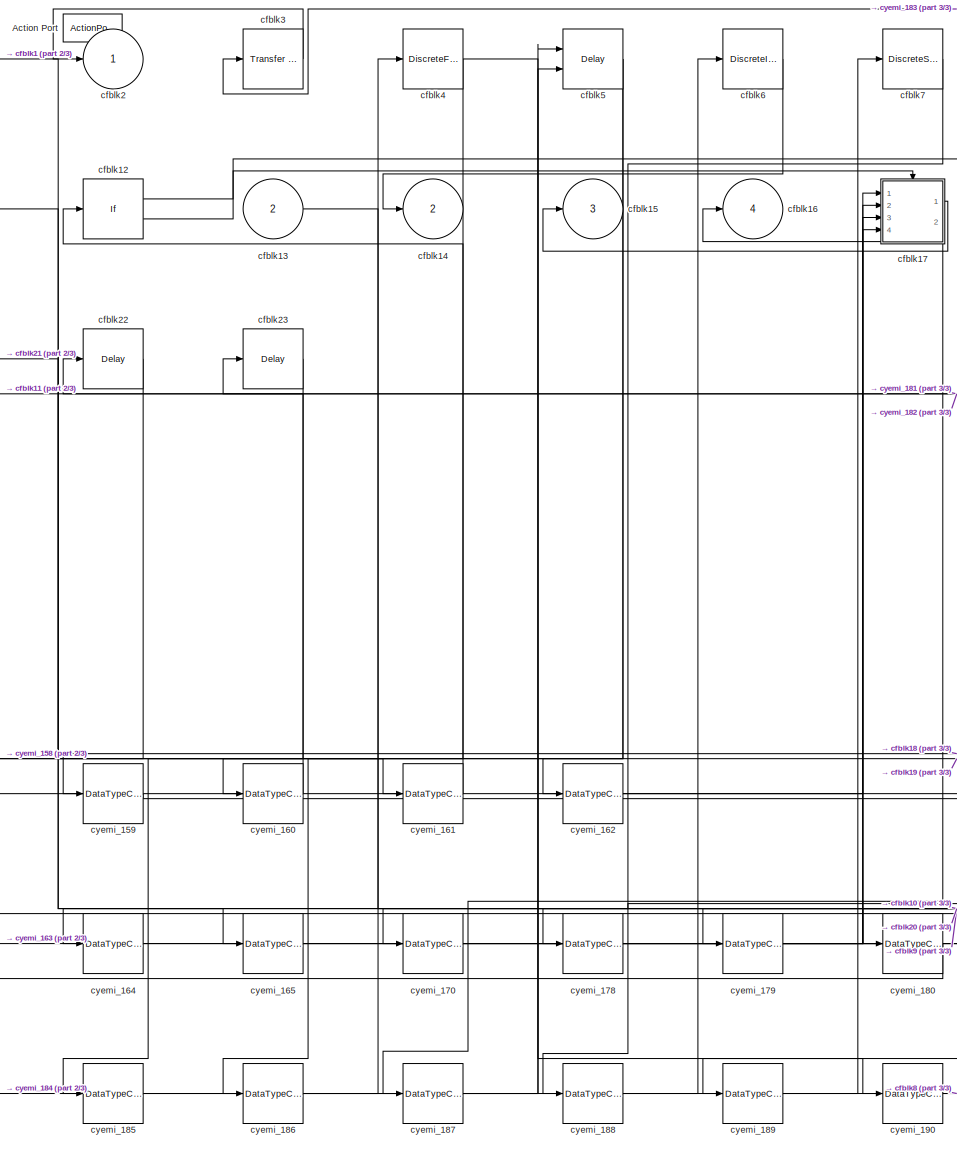
[diagram: cfblk45 - part 1/3, center side, full height]
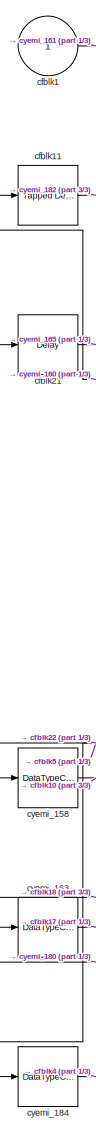
[diagram: cfblk45 - part 2/3, left side, full height]
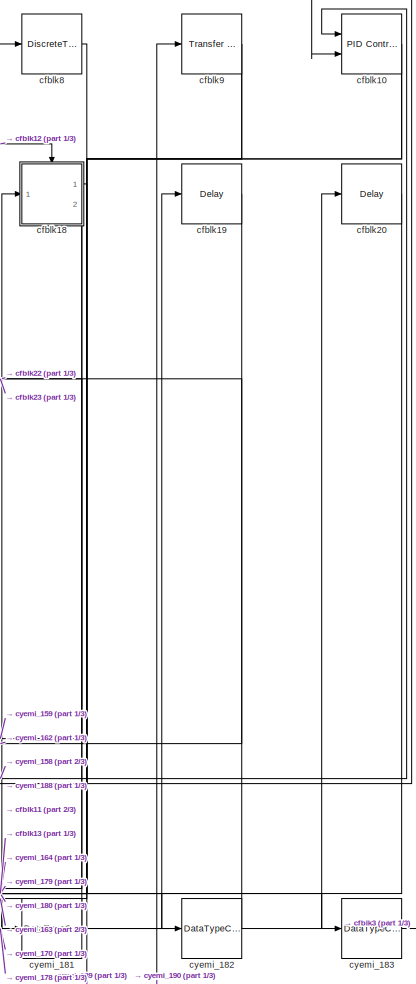
[diagram: cfblk45 - part 3/3, right side, full height]
BLOCK [SubSystem] cfblk45
  Ports = [2, 4, 0, 0, 0, 0, 0, 1]
  RequestExecContextInheritance = off
  TreatAsAtomicUnit = on
BLOCK [ActionPort] cfblk45/Action Port
  ActionType = then
BLOCK [Inport] cfblk45/cfblk1
  IconDisplay = Port number
BLOCK [Reference] cfblk45/cfblk10  REF=simulink/Continuous/PID Controller (2DOF)
  Ports = [2, 1]
  SourceBlock = simulink/Continuous/PID Controller (2DOF)
  SourceProductBaseCode = SL
  SourceProductName = Simulink
  SourceType = PID 2dof
BLOCK [Reference] cfblk45/cfblk11  REF=simulink/Discrete/Tapped Delay
  Ports = [1, 1]
  SourceBlock = simulink/Discrete/Tapped Delay
  SourceProductBaseCode = SL
  SourceProductName = Simulink
  SourceType = Tapped Delay Line
BLOCK [If] cfblk45/cfblk12
  Ports = [1, 2]
  SampleTime = 1
BLOCK [Inport] cfblk45/cfblk13
  IconDisplay = Port number
  Port = 2
BLOCK [Outport] cfblk45/cfblk14
  IconDisplay = Port number
  Port = 2
BLOCK [Outport] cfblk45/cfblk15
  IconDisplay = Port number
  Port = 3
BLOCK [Outport] cfblk45/cfblk16
  IconDisplay = Port number
  Port = 4
BLOCK [SubSystem] cfblk45/cfblk17
  Ports = [4, 2, 0, 0, 0, 0, 0, 1]
  RequestExecContextInheritance = off
  TreatAsAtomicUnit = on
BLOCK [ActionPort] cfblk45/cfblk17/Action Port
  ActionType = then
BLOCK [Inport] cfblk45/cfblk17/cfblk1
  IconDisplay = Port number
BLOCK [Outport] cfblk45/cfblk17/cfblk10
  IconDisplay = Port number
  Port = 2
BLOCK [Outport] cfblk45/cfblk17/cfblk2
  IconDisplay = Port number
BLOCK [Delay] cfblk45/cfblk17/cfblk3
  InputPortMap = u0
  Ports = [1, 1]
BLOCK [DiscreteTransferFcn] cfblk45/cfblk17/cfblk4
  InputPortMap = u0
  Ports = [1, 1]
BLOCK [DiscreteFilter] cfblk45/cfblk17/cfblk5
  InputPortMap = u0
  Ports = [1, 1]
BLOCK [Reference] cfblk45/cfblk17/cfblk6  REF=simulink/Discrete/Tapped Delay
  Ports = [1, 1]
  SourceBlock = simulink/Discrete/Tapped Delay
  SourceProductBaseCode = SL
  SourceProductName = Simulink
  SourceType = Tapped Delay Line
BLOCK [Inport] cfblk45/cfblk17/cfblk7
  IconDisplay = Port number
  Port = 2
BLOCK [Inport] cfblk45/cfblk17/cfblk8
  IconDisplay = Port number
  Port = 3
BLOCK [Inport] cfblk45/cfblk17/cfblk9
  IconDisplay = Port number
  Port = 4
BLOCK [DataTypeConversion] cfblk45/cfblk17/cyemi_166
  OutDataTypeStr = double
  RndMeth = Floor
  SaturateOnIntegerOverflow = off
BLOCK [DataTypeConversion] cfblk45/cfblk17/cyemi_167
  OutDataTypeStr = double
  RndMeth = Floor
  SaturateOnIntegerOverflow = off
BLOCK [DataTypeConversion] cfblk45/cfblk17/cyemi_168
  OutDataTypeStr = double
  RndMeth = Floor
  SaturateOnIntegerOverflow = off
BLOCK [DataTypeConversion] cfblk45/cfblk17/cyemi_169
  OutDataTypeStr = double
  RndMeth = Floor
  SaturateOnIntegerOverflow = off
BLOCK [SubSystem] cfblk45/cfblk18
  Ports = [1, 2, 0, 0, 0, 0, 0, 1]
  RequestExecContextInheritance = off
  TreatAsAtomicUnit = on
BLOCK [ActionPort] cfblk45/cfblk18/Action Port
  ActionType = else
BLOCK [Inport] cfblk45/cfblk18/cfblk1
  IconDisplay = Port number
BLOCK [Outport] cfblk45/cfblk18/cfblk2
  IconDisplay = Port number
BLOCK [DiscreteTransferFcn] cfblk45/cfblk18/cfblk3
  InputPortMap = u0
  Ports = [1, 1]
BLOCK [Delay] cfblk45/cfblk18/cfblk4
  DelayLengthSource = Input port
  InputPortMap = u0,p1
  Ports = [2, 1]
BLOCK [DiscreteFilter] cfblk45/cfblk18/cfblk5
  InputPortMap = u0
  Ports = [1, 1]
BLOCK [Reference] cfblk45/cfblk18/cfblk6  REF=simulink/Continuous/PID Controller
  Ports = [1, 1]
  SourceBlock = simulink/Continuous/PID Controller
  SourceProductBaseCode = SL
  SourceProductName = Simulink
  SourceType = PID 1dof
BLOCK [DiscreteStateSpace] cfblk45/cfblk18/cfblk7
  SampleTime = -1
BLOCK [DiscreteIntegrator] cfblk45/cfblk18/cfblk8
  ICPrevOutput = DiscIntNeverNeededParam
  ICPrevScaledInput = DiscIntNeverNeededParam
  InitialConditionSetting = Auto
  OutDataTypeStr = double
  Ports = [1, 1]
  SampleTime = -1
BLOCK [Outport] cfblk45/cfblk18/cfblk9
  IconDisplay = Port number
  Port = 2
BLOCK [DataTypeConversion] cfblk45/cfblk18/cyemi_171
  OutDataTypeStr = double
  RndMeth = Floor
  SaturateOnIntegerOverflow = off
BLOCK [DataTypeConversion] cfblk45/cfblk18/cyemi_172
  OutDataTypeStr = double
  RndMeth = Floor
  SaturateOnIntegerOverflow = off
BLOCK [DataTypeConversion] cfblk45/cfblk18/cyemi_173
  OutDataTypeStr = double
  RndMeth = Floor
  SaturateOnIntegerOverflow = off
BLOCK [DataTypeConversion] cfblk45/cfblk18/cyemi_174
  OutDataTypeStr = double
  RndMeth = Floor
  SaturateOnIntegerOverflow = off
BLOCK [DataTypeConversion] cfblk45/cfblk18/cyemi_175
  OutDataTypeStr = double
  RndMeth = Floor
  SaturateOnIntegerOverflow = off
BLOCK [DataTypeConversion] cfblk45/cfblk18/cyemi_176
  OutDataTypeStr = double
  RndMeth = Floor
  SaturateOnIntegerOverflow = off
BLOCK [DataTypeConversion] cfblk45/cfblk18/cyemi_177
  OutDataTypeStr = double
  RndMeth = Floor
  SaturateOnIntegerOverflow = off
BLOCK [Delay] cfblk45/cfblk19
  InputPortMap = u0
  Ports = [1, 1]
BLOCK [Outport] cfblk45/cfblk2
  IconDisplay = Port number
BLOCK [Delay] cfblk45/cfblk20
  InputPortMap = u0
  Ports = [1, 1]
BLOCK [Delay] cfblk45/cfblk21
  InputPortMap = u0
  Ports = [1, 1]
BLOCK [Delay] cfblk45/cfblk22
  InputPortMap = u0
  Ports = [1, 1]
BLOCK [Delay] cfblk45/cfblk23
  InputPortMap = u0
  Ports = [1, 1]
BLOCK [Reference] cfblk45/cfblk3  REF=simulink/Discrete/Transfer Fcn
First Order
  Ports = [1, 1]
  SourceBlock = simulink/Discrete/Transfer Fcn\nFirst Order
  SourceProductBaseCode = SL
  SourceProductName = Simulink
  SourceType = First Order Transfer Fcn
BLOCK [DiscreteFilter] cfblk45/cfblk4
  InputPortMap = u0
  Ports = [1, 1]
BLOCK [Delay] cfblk45/cfblk5
  DelayLengthSource = Input port
  InputPortMap = u0,p1
  Ports = [2, 1]
BLOCK [DiscreteIntegrator] cfblk45/cfblk6
  ICPrevOutput = DiscIntNeverNeededParam
  ICPrevScaledInput = DiscIntNeverNeededParam
  InitialConditionSetting = Auto
  OutDataTypeStr = double
  Ports = [1, 1]
  SampleTime = -1
BLOCK [DiscreteStateSpace] cfblk45/cfblk7
  SampleTime = -1
BLOCK [DiscreteTransferFcn] cfblk45/cfblk8
  InputPortMap = u0
  Ports = [1, 1]
BLOCK [Reference] cfblk45/cfblk9  REF=simulink/Discrete/Transfer Fcn
First Order
  Ports = [1, 1]
  SourceBlock = simulink/Discrete/Transfer Fcn\nFirst Order
  SourceProductBaseCode = SL
  SourceProductName = Simulink
  SourceType = First Order Transfer Fcn
BLOCK [DataTypeConversion] cfblk45/cyemi_158
  OutDataTypeStr = double
  RndMeth = Floor
  SaturateOnIntegerOverflow = off
BLOCK [DataTypeConversion] cfblk45/cyemi_159
  OutDataTypeStr = double
  RndMeth = Floor
  SaturateOnIntegerOverflow = off
BLOCK [DataTypeConversion] cfblk45/cyemi_160
  OutDataTypeStr = double
  RndMeth = Floor
  SaturateOnIntegerOverflow = off
BLOCK [DataTypeConversion] cfblk45/cyemi_161
  OutDataTypeStr = double
  RndMeth = Floor
  SaturateOnIntegerOverflow = off
BLOCK [DataTypeConversion] cfblk45/cyemi_162
  OutDataTypeStr = double
  RndMeth = Floor
  SaturateOnIntegerOverflow = off
BLOCK [DataTypeConversion] cfblk45/cyemi_163
  OutDataTypeStr = double
  RndMeth = Floor
  SaturateOnIntegerOverflow = off
BLOCK [DataTypeConversion] cfblk45/cyemi_164
  OutDataTypeStr = double
  RndMeth = Floor
  SaturateOnIntegerOverflow = off
BLOCK [DataTypeConversion] cfblk45/cyemi_165
  OutDataTypeStr = double
  RndMeth = Floor
  SaturateOnIntegerOverflow = off
BLOCK [DataTypeConversion] cfblk45/cyemi_170
  OutDataTypeStr = double
  RndMeth = Floor
  SaturateOnIntegerOverflow = off
BLOCK [DataTypeConversion] cfblk45/cyemi_178
  OutDataTypeStr = double
  RndMeth = Floor
  SaturateOnIntegerOverflow = off
BLOCK [DataTypeConversion] cfblk45/cyemi_179
  OutDataTypeStr = double
  RndMeth = Floor
  SaturateOnIntegerOverflow = off
BLOCK [DataTypeConversion] cfblk45/cyemi_180
  OutDataTypeStr = double
  RndMeth = Floor
  SaturateOnIntegerOverflow = off
BLOCK [DataTypeConversion] cfblk45/cyemi_181
  OutDataTypeStr = double
  RndMeth = Floor
  SaturateOnIntegerOverflow = off
BLOCK [DataTypeConversion] cfblk45/cyemi_182
  OutDataTypeStr = double
  RndMeth = Floor
  SaturateOnIntegerOverflow = off
BLOCK [DataTypeConversion] cfblk45/cyemi_183
  OutDataTypeStr = double
  RndMeth = Floor
  SaturateOnIntegerOverflow = off
BLOCK [DataTypeConversion] cfblk45/cyemi_184
  OutDataTypeStr = double
  RndMeth = Floor
  SaturateOnIntegerOverflow = off
BLOCK [DataTypeConversion] cfblk45/cyemi_185
  OutDataTypeStr = double
  RndMeth = Floor
  SaturateOnIntegerOverflow = off
BLOCK [DataTypeConversion] cfblk45/cyemi_186
  OutDataTypeStr = double
  RndMeth = Floor
  SaturateOnIntegerOverflow = off
BLOCK [DataTypeConversion] cfblk45/cyemi_187
  OutDataTypeStr = double
  RndMeth = Floor
  SaturateOnIntegerOverflow = off
BLOCK [DataTypeConversion] cfblk45/cyemi_188
  OutDataTypeStr = double
  RndMeth = Floor
  SaturateOnIntegerOverflow = off
BLOCK [DataTypeConversion] cfblk45/cyemi_189
  OutDataTypeStr = double
  RndMeth = Floor
  SaturateOnIntegerOverflow = off
BLOCK [DataTypeConversion] cfblk45/cyemi_190
  OutDataTypeStr = double
  RndMeth = Floor
  SaturateOnIntegerOverflow = off
BLOCK [SubSystem] cfblk46
  Ports = [1, 2, 0, 0, 0, 0, 0, 1]
  RequestExecContextInheritance = off
  TreatAsAtomicUnit = on
BLOCK [ActionPort] cfblk46/Action Port
  ActionType = else
BLOCK [Inport] cfblk46/cfblk1
  IconDisplay = Port number
BLOCK [UnitDelay] cfblk46/cfblk10
  InputProcessing = Elements as channels (sample based)
  SampleTime = -1
BLOCK [DiscreteFir] cfblk46/cfblk11
  InputPortMap = u0
  OutputPortMap = o0
  Ports = [1, 1]
BLOCK [Delay] cfblk46/cfblk12
  DelayLengthSource = Input port
  InputPortMap = u0,p1
  Ports = [2, 1]
BLOCK [DiscreteFilter] cfblk46/cfblk13
  InputPortMap = u0
  Ports = [1, 1]
BLOCK [UnitDelay] cfblk46/cfblk14
  InputProcessing = Elements as channels (sample based)
  SampleTime = -1
BLOCK [If] cfblk46/cfblk15
  Ports = [1, 2]
  SampleTime = 1
BLOCK [Outport] cfblk46/cfblk16
  IconDisplay = Port number
  Port = 2
BLOCK [SubSystem] cfblk46/cfblk17
  Ports = [1, 3, 0, 0, 0, 0, 0, 1]
  RequestExecContextInheritance = off
  TreatAsAtomicUnit = on
BLOCK [ActionPort] cfblk46/cfblk17/Action Port
  ActionType = then
BLOCK [Inport] cfblk46/cfblk17/cfblk1
  IconDisplay = Port number
BLOCK [Delay] cfblk46/cfblk17/cfblk10
  InputPortMap = u0,e6
  Ports = [2, 1]
  ShowEnablePort = on
BLOCK [UnitDelay] cfblk46/cfblk17/cfblk11
  InputProcessing = Elements as channels (sample based)
  SampleTime = -1
BLOCK [DiscreteFir] cfblk46/cfblk17/cfblk12
  InputPortMap = u0
  OutputPortMap = o0
  Ports = [1, 1]
BLOCK [Reference] cfblk46/cfblk17/cfblk13  REF=simulink/Continuous/PID Controller
  Ports = [1, 1]
  SourceBlock = simulink/Continuous/PID Controller
  SourceProductBaseCode = SL
  SourceProductName = Simulink
  SourceType = PID 1dof
BLOCK [DiscreteFilter] cfblk46/cfblk17/cfblk14
  InputPortMap = u0
  Ports = [1, 1]
BLOCK [Outport] cfblk46/cfblk17/cfblk15
  IconDisplay = Port number
  Port = 2
BLOCK [Outport] cfblk46/cfblk17/cfblk16
  IconDisplay = Port number
  Port = 3
BLOCK [Delay] cfblk46/cfblk17/cfblk17
  InputPortMap = u0
  Ports = [1, 1]
BLOCK [Delay] cfblk46/cfblk17/cfblk18
  InputPortMap = u0
  Ports = [1, 1]
BLOCK [Delay] cfblk46/cfblk17/cfblk19
  InputPortMap = u0
  Ports = [1, 1]
BLOCK [Outport] cfblk46/cfblk17/cfblk2
  IconDisplay = Port number
BLOCK [Delay] cfblk46/cfblk17/cfblk20
  InputPortMap = u0
  Ports = [1, 1]
BLOCK [Reference] cfblk46/cfblk17/cfblk3  REF=simulink/Continuous/PID Controller
  Ports = [1, 1]
  SourceBlock = simulink/Continuous/PID Controller
  SourceProductBaseCode = SL
  SourceProductName = Simulink
  SourceType = PID 1dof
BLOCK [Reference] cfblk46/cfblk17/cfblk4  REF=simulink/Discrete/Difference
  Ports = [1, 1]
  SourceBlock = simulink/Discrete/Difference
  SourceProductBaseCode = SL
  SourceProductName = Simulink
  SourceType = Difference
BLOCK [DiscreteTransferFcn] cfblk46/cfblk17/cfblk5
  InputPortMap = u0
  Ports = [1, 1]
BLOCK [DiscreteIntegrator] cfblk46/cfblk17/cfblk6
  ICPrevOutput = DiscIntNeverNeededParam
  ICPrevScaledInput = DiscIntNeverNeededParam
  InitialConditionSetting = Auto
  OutDataTypeStr = double
  Ports = [1, 1]
  SampleTime = -1
BLOCK [Delay] cfblk46/cfblk17/cfblk7
  InputPortMap = u0,e6
  Ports = [2, 1]
  ShowEnablePort = on
BLOCK [DiscreteZeroPole] cfblk46/cfblk17/cfblk8
  Gain = 1
  Poles = [0 0.5]
  SampleTime = -1
BLOCK [UnitDelay] cfblk46/cfblk17/cfblk9
  InputProcessing = Elements as channels (sample based)
  SampleTime = -1
BLOCK [DataTypeConversion] cfblk46/cfblk17/cyemi_200
  OutDataTypeStr = double
  RndMeth = Floor
  SaturateOnIntegerOverflow = off
BLOCK [DataTypeConversion] cfblk46/cfblk17/cyemi_201
  OutDataTypeStr = double
  RndMeth = Floor
  SaturateOnIntegerOverflow = off
BLOCK [DataTypeConversion] cfblk46/cfblk17/cyemi_202
  OutDataTypeStr = double
  RndMeth = Floor
  SaturateOnIntegerOverflow = off
BLOCK [DataTypeConversion] cfblk46/cfblk17/cyemi_203
  OutDataTypeStr = double
  RndMeth = Floor
  SaturateOnIntegerOverflow = off
BLOCK [DataTypeConversion] cfblk46/cfblk17/cyemi_204
  OutDataTypeStr = double
  RndMeth = Floor
  SaturateOnIntegerOverflow = off
BLOCK [DataTypeConversion] cfblk46/cfblk17/cyemi_205
  OutDataTypeStr = double
  RndMeth = Floor
  SaturateOnIntegerOverflow = off
BLOCK [DataTypeConversion] cfblk46/cfblk17/cyemi_206
  OutDataTypeStr = double
  RndMeth = Floor
  SaturateOnIntegerOverflow = off
BLOCK [DataTypeConversion] cfblk46/cfblk17/cyemi_207
  OutDataTypeStr = double
  RndMeth = Floor
  SaturateOnIntegerOverflow = off
BLOCK [DataTypeConversion] cfblk46/cfblk17/cyemi_208
  OutDataTypeStr = double
  RndMeth = Floor
  SaturateOnIntegerOverflow = off
BLOCK [DataTypeConversion] cfblk46/cfblk17/cyemi_209
  OutDataTypeStr = double
  RndMeth = Floor
  SaturateOnIntegerOverflow = off
BLOCK [DataTypeConversion] cfblk46/cfblk17/cyemi_210
  OutDataTypeStr = double
  RndMeth = Floor
  SaturateOnIntegerOverflow = off
BLOCK [DataTypeConversion] cfblk46/cfblk17/cyemi_211
  OutDataTypeStr = double
  RndMeth = Floor
  SaturateOnIntegerOverflow = off
BLOCK [DataTypeConversion] cfblk46/cfblk17/cyemi_212
  OutDataTypeStr = double
  RndMeth = Floor
  SaturateOnIntegerOverflow = off
BLOCK [DataTypeConversion] cfblk46/cfblk17/cyemi_213
  OutDataTypeStr = double
  RndMeth = Floor
  SaturateOnIntegerOverflow = off
BLOCK [DataTypeConversion] cfblk46/cfblk17/cyemi_214
  OutDataTypeStr = double
  RndMeth = Floor
  SaturateOnIntegerOverflow = off
BLOCK [DataTypeConversion] cfblk46/cfblk17/cyemi_215
  OutDataTypeStr = double
  RndMeth = Floor
  SaturateOnIntegerOverflow = off
BLOCK [DataTypeConversion] cfblk46/cfblk17/cyemi_216
  OutDataTypeStr = double
  RndMeth = Floor
  SaturateOnIntegerOverflow = off
BLOCK [DataTypeConversion] cfblk46/cfblk17/cyemi_217
  OutDataTypeStr = double
  RndMeth = Floor
  SaturateOnIntegerOverflow = off
BLOCK [SubSystem] cfblk46/cfblk18
  Ports = [1, 3, 0, 0, 0, 0, 0, 1]
  RequestExecContextInheritance = off
  TreatAsAtomicUnit = on
BLOCK [ActionPort] cfblk46/cfblk18/Action Port
  ActionType = else
BLOCK [Inport] cfblk46/cfblk18/cfblk1
  IconDisplay = Port number
BLOCK [Delay] cfblk46/cfblk18/cfblk10
  InputPortMap = u0
  Ports = [1, 1]
BLOCK [Outport] cfblk46/cfblk18/cfblk2
  IconDisplay = Port number
BLOCK [DiscreteFir] cfblk46/cfblk18/cfblk3
  InputPortMap = u0
  OutputPortMap = o0
  Ports = [1, 1]
BLOCK [Reference] cfblk46/cfblk18/cfblk4  REF=simulink/Discrete/Difference
  Ports = [1, 1]
  SourceBlock = simulink/Discrete/Difference
  SourceProductBaseCode = SL
  SourceProductName = Simulink
  SourceType = Difference
BLOCK [Reference] cfblk46/cfblk18/cfblk5  REF=simulink/Discrete/Difference
  Ports = [1, 1]
  SourceBlock = simulink/Discrete/Difference
  SourceProductBaseCode = SL
  SourceProductName = Simulink
  SourceType = Difference
BLOCK [DiscreteZeroPole] cfblk46/cfblk18/cfblk6
  Gain = 1
  Poles = [0 0.5]
  SampleTime = -1
BLOCK [Reference] cfblk46/cfblk18/cfblk7  REF=simulink/Discrete/Tapped Delay
  Ports = [1, 1]
  SourceBlock = simulink/Discrete/Tapped Delay
  SourceProductBaseCode = SL
  SourceProductName = Simulink
  SourceType = Tapped Delay Line
BLOCK [Outport] cfblk46/cfblk18/cfblk8
  IconDisplay = Port number
  Port = 2
BLOCK [Outport] cfblk46/cfblk18/cfblk9
  IconDisplay = Port number
  Port = 3
BLOCK [DataTypeConversion] cfblk46/cfblk18/cyemi_219
  OutDataTypeStr = double
  RndMeth = Floor
  SaturateOnIntegerOverflow = off
BLOCK [DataTypeConversion] cfblk46/cfblk18/cyemi_220
  OutDataTypeStr = double
  RndMeth = Floor
  SaturateOnIntegerOverflow = off
BLOCK [DataTypeConversion] cfblk46/cfblk18/cyemi_221
  OutDataTypeStr = double
  RndMeth = Floor
  SaturateOnIntegerOverflow = off
BLOCK [DataTypeConversion] cfblk46/cfblk18/cyemi_222
  OutDataTypeStr = double
  RndMeth = Floor
  SaturateOnIntegerOverflow = off
BLOCK [DataTypeConversion] cfblk46/cfblk18/cyemi_223
  OutDataTypeStr = double
  RndMeth = Floor
  SaturateOnIntegerOverflow = off
BLOCK [DataTypeConversion] cfblk46/cfblk18/cyemi_224
  OutDataTypeStr = double
  RndMeth = Floor
  SaturateOnIntegerOverflow = off
BLOCK [Delay] cfblk46/cfblk19
  InputPortMap = u0
  Ports = [1, 1]
BLOCK [Outport] cfblk46/cfblk2
  IconDisplay = Port number
BLOCK [DataTypeConversion] cfblk46/cfblk20
  OutDataTypeStr = uint32
  RndMeth = Floor
  SaturateOnIntegerOverflow = off
BLOCK [DataTypeConversion] cfblk46/cfblk21
  OutDataTypeStr = double
  RndMeth = Floor
  SaturateOnIntegerOverflow = off
BLOCK [DiscreteFir] cfblk46/cfblk3
  InputPortMap = u0
  OutputPortMap = o0
  Ports = [1, 1]
BLOCK [Delay] cfblk46/cfblk4
  InputPortMap = u0,e6
  Ports = [2, 1]
  ShowEnablePort = on
BLOCK [Reference] cfblk46/cfblk5  REF=simulink/Discrete/Transfer Fcn
Lead or Lag
  Ports = [1, 1]
  SourceBlock = simulink/Discrete/Transfer Fcn\nLead or Lag
  SourceProductBaseCode = SL
  SourceProductName = Simulink
  SourceType = Lead or Lag Compensator
BLOCK [DiscreteFilter] cfblk46/cfblk6
  InputPortMap = u0
  Ports = [1, 1]
BLOCK [Delay] cfblk46/cfblk7
  InputPortMap = u0
  Ports = [1, 1]
BLOCK [DiscreteFir] cfblk46/cfblk8
  InputPortMap = u0
  OutputPortMap = o0
  Ports = [1, 1]
BLOCK [Reference] cfblk46/cfblk9  REF=simulink/Discrete/Tapped Delay
  Ports = [1, 1]
  SourceBlock = simulink/Discrete/Tapped Delay
  SourceProductBaseCode = SL
  SourceProductName = Simulink
  SourceType = Tapped Delay Line
BLOCK [DataTypeConversion] cfblk46/cyemi_192
  OutDataTypeStr = double
  RndMeth = Floor
  SaturateOnIntegerOverflow = off
BLOCK [DataTypeConversion] cfblk46/cyemi_193
  OutDataTypeStr = double
  RndMeth = Floor
  SaturateOnIntegerOverflow = off
BLOCK [DataTypeConversion] cfblk46/cyemi_194
  OutDataTypeStr = double
  RndMeth = Floor
  SaturateOnIntegerOverflow = off
BLOCK [DataTypeConversion] cfblk46/cyemi_195
  OutDataTypeStr = uint32
  RndMeth = Floor
  SaturateOnIntegerOverflow = off
BLOCK [DataTypeConversion] cfblk46/cyemi_196
  OutDataTypeStr = double
  RndMeth = Floor
  SaturateOnIntegerOverflow = off
BLOCK [DataTypeConversion] cfblk46/cyemi_197
  OutDataTypeStr = double
  RndMeth = Floor
  SaturateOnIntegerOverflow = off
BLOCK [DataTypeConversion] cfblk46/cyemi_198
  OutDataTypeStr = double
  RndMeth = Floor
  SaturateOnIntegerOverflow = off
BLOCK [DataTypeConversion] cfblk46/cyemi_199
  OutDataTypeStr = double
  RndMeth = Floor
  SaturateOnIntegerOverflow = off
BLOCK [DataTypeConversion] cfblk46/cyemi_218
  OutDataTypeStr = double
  RndMeth = Floor
  SaturateOnIntegerOverflow = off
BLOCK [DataTypeConversion] cfblk46/cyemi_225
  OutDataTypeStr = double
  RndMeth = Floor
  SaturateOnIntegerOverflow = off
BLOCK [DataTypeConversion] cfblk46/cyemi_226
  OutDataTypeStr = double
  RndMeth = Floor
  SaturateOnIntegerOverflow = off
BLOCK [DataTypeConversion] cfblk46/cyemi_227
  OutDataTypeStr = double
  RndMeth = Floor
  SaturateOnIntegerOverflow = off
BLOCK [DataTypeConversion] cfblk46/cyemi_228
  OutDataTypeStr = double
  RndMeth = Floor
  SaturateOnIntegerOverflow = off
BLOCK [DataTypeConversion] cfblk46/cyemi_229
  OutDataTypeStr = double
  RndMeth = Floor
  SaturateOnIntegerOverflow = off
BLOCK [DataTypeConversion] cfblk46/cyemi_230
  OutDataTypeStr = double
  RndMeth = Floor
  SaturateOnIntegerOverflow = off
BLOCK [DataTypeConversion] cfblk46/cyemi_231
  OutDataTypeStr = double
  RndMeth = Floor
  SaturateOnIntegerOverflow = off
BLOCK [DataTypeConversion] cfblk46/cyemi_232
  OutDataTypeStr = double
  RndMeth = Floor
  SaturateOnIntegerOverflow = off
BLOCK [DataTypeConversion] cfblk46/cyemi_233
  OutDataTypeStr = double
  RndMeth = Floor
  SaturateOnIntegerOverflow = off
BLOCK [DataTypeConversion] cfblk46/cyemi_234
  OutDataTypeStr = double
  RndMeth = Floor
  SaturateOnIntegerOverflow = off
BLOCK [DataTypeConversion] cfblk46/cyemi_235
  OutDataTypeStr = double
  RndMeth = Floor
  SaturateOnIntegerOverflow = off
BLOCK [SubSystem] cfblk47
  Ports = [2, 2, 0, 0, 0, 0, 0, 1]
  RequestExecContextInheritance = off
  TreatAsAtomicUnit = on
BLOCK [ActionPort] cfblk47/Action Port
  ActionType = then
BLOCK [Inport] cfblk47/cfblk1
  IconDisplay = Port number
BLOCK [Reference] cfblk47/cfblk10  REF=simulink/Continuous/PID Controller
  Ports = [1, 1]
  SourceBlock = simulink/Continuous/PID Controller
  SourceProductBaseCode = SL
  SourceProductName = Simulink
  SourceType = PID 1dof
BLOCK [DiscreteFilter] cfblk47/cfblk11
  InputPortMap = u0
  Ports = [1, 1]
BLOCK [Inport] cfblk47/cfblk12
  IconDisplay = Port number
  Port = 2
BLOCK [Outport] cfblk47/cfblk13
  IconDisplay = Port number
  Port = 2
BLOCK [Outport] cfblk47/cfblk2
  IconDisplay = Port number
BLOCK [DiscreteZeroPole] cfblk47/cfblk3
  Gain = 1
  Poles = [0 0.5]
  SampleTime = -1
BLOCK [Reference] cfblk47/cfblk4  REF=simulink/Discrete/Tapped Delay
  Ports = [1, 1]
  SourceBlock = simulink/Discrete/Tapped Delay
  SourceProductBaseCode = SL
  SourceProductName = Simulink
  SourceType = Tapped Delay Line
BLOCK [Reference] cfblk47/cfblk5  REF=simulink/Discrete/Tapped Delay
  Ports = [1, 1]
  SourceBlock = simulink/Discrete/Tapped Delay
  SourceProductBaseCode = SL
  SourceProductName = Simulink
  SourceType = Tapped Delay Line
BLOCK [DiscreteTransferFcn] cfblk47/cfblk6
  InputPortMap = u0
  Ports = [1, 1]
BLOCK [Delay] cfblk47/cfblk7
  DelayLengthSource = Input port
  InputPortMap = u0,p1
  Ports = [2, 1]
BLOCK [Reference] cfblk47/cfblk8  REF=simulink/Discrete/Transfer Fcn
First Order
  Ports = [1, 1]
  SourceBlock = simulink/Discrete/Transfer Fcn\nFirst Order
  SourceProductBaseCode = SL
  SourceProductName = Simulink
  SourceType = First Order Transfer Fcn
BLOCK [Reference] cfblk47/cfblk9  REF=simulink/Discrete/Transfer Fcn
First Order
  Ports = [1, 1]
  SourceBlock = simulink/Discrete/Transfer Fcn\nFirst Order
  SourceProductBaseCode = SL
  SourceProductName = Simulink
  SourceType = First Order Transfer Fcn
BLOCK [DataTypeConversion] cfblk47/cyemi_238
  OutDataTypeStr = double
  RndMeth = Floor
  SaturateOnIntegerOverflow = off
BLOCK [DataTypeConversion] cfblk47/cyemi_239
  OutDataTypeStr = double
  RndMeth = Floor
  SaturateOnIntegerOverflow = off
BLOCK [DataTypeConversion] cfblk47/cyemi_240
  OutDataTypeStr = double
  RndMeth = Floor
  SaturateOnIntegerOverflow = off
BLOCK [DataTypeConversion] cfblk47/cyemi_241
  OutDataTypeStr = double
  RndMeth = Floor
  SaturateOnIntegerOverflow = off
BLOCK [DataTypeConversion] cfblk47/cyemi_242
  OutDataTypeStr = double
  RndMeth = Floor
  SaturateOnIntegerOverflow = off
BLOCK [DataTypeConversion] cfblk47/cyemi_243
  OutDataTypeStr = double
  RndMeth = Floor
  SaturateOnIntegerOverflow = off
BLOCK [DataTypeConversion] cfblk47/cyemi_244
  OutDataTypeStr = double
  RndMeth = Floor
  SaturateOnIntegerOverflow = off
BLOCK [DataTypeConversion] cfblk47/cyemi_245
  OutDataTypeStr = double
  RndMeth = Floor
  SaturateOnIntegerOverflow = off
BLOCK [DataTypeConversion] cfblk47/cyemi_246
  OutDataTypeStr = double
  RndMeth = Floor
  SaturateOnIntegerOverflow = off
BLOCK [DataTypeConversion] cfblk47/cyemi_247
  OutDataTypeStr = double
  RndMeth = Floor
  SaturateOnIntegerOverflow = off
BLOCK [SubSystem] cfblk48
  Ports = [1, 2, 0, 0, 0, 0, 0, 1]
  RequestExecContextInheritance = off
  TreatAsAtomicUnit = on
BLOCK [ActionPort] cfblk48/Action Port
  ActionType = else
BLOCK [Inport] cfblk48/cfblk1
  IconDisplay = Port number
BLOCK [Delay] cfblk48/cfblk10
  InputPortMap = u0
  Ports = [1, 1]
BLOCK [Delay] cfblk48/cfblk11
  InputPortMap = u0
  Ports = [1, 1]
BLOCK [Outport] cfblk48/cfblk2
  IconDisplay = Port number
BLOCK [Delay] cfblk48/cfblk3
  InputPortMap = u0,e6
  Ports = [2, 1]
  ShowEnablePort = on
BLOCK [DiscreteTransferFcn] cfblk48/cfblk4
  InputPortMap = u0
  Ports = [1, 1]
BLOCK [DiscreteFir] cfblk48/cfblk5
  InputPortMap = u0
  OutputPortMap = o0
  Ports = [1, 1]
BLOCK [If] cfblk48/cfblk6
  Ports = [1, 2]
  SampleTime = 1
BLOCK [Outport] cfblk48/cfblk7
  IconDisplay = Port number
  Port = 2
BLOCK [SubSystem] cfblk48/cfblk8
  Ports = [3, 3, 0, 0, 0, 0, 0, 1]
  RequestExecContextInheritance = off
  TreatAsAtomicUnit = on
BLOCK [ActionPort] cfblk48/cfblk8/Action Port
  ActionType = then
BLOCK [Inport] cfblk48/cfblk8/cfblk1
  IconDisplay = Port number
BLOCK [Outport] cfblk48/cfblk8/cfblk10
  IconDisplay = Port number
  Port = 3
BLOCK [Outport] cfblk48/cfblk8/cfblk2
  IconDisplay = Port number
BLOCK [Reference] cfblk48/cfblk8/cfblk3  REF=simulink/Discrete/Transfer Fcn
Real Zero
  Ports = [1, 1]
  SourceBlock = simulink/Discrete/Transfer Fcn\nReal Zero
  SourceProductBaseCode = SL
  SourceProductName = Simulink
  SourceType = Transfer Fcn Real Zero
BLOCK [Reference] cfblk48/cfblk8/cfblk4  REF=simulink/Discrete/Transfer Fcn
Real Zero
  Ports = [1, 1]
  SourceBlock = simulink/Discrete/Transfer Fcn\nReal Zero
  SourceProductBaseCode = SL
  SourceProductName = Simulink
  SourceType = Transfer Fcn Real Zero
BLOCK [DiscreteZeroPole] cfblk48/cfblk8/cfblk5
  Gain = 1
  Poles = [0 0.5]
  SampleTime = -1
BLOCK [Delay] cfblk48/cfblk8/cfblk6
  InputPortMap = u0,e6
  Ports = [2, 1]
  ShowEnablePort = on
BLOCK [Inport] cfblk48/cfblk8/cfblk7
  IconDisplay = Port number
  Port = 2
BLOCK [Inport] cfblk48/cfblk8/cfblk8
  IconDisplay = Port number
  Port = 3
BLOCK [Outport] cfblk48/cfblk8/cfblk9
  IconDisplay = Port number
  Port = 2
BLOCK [DataTypeConversion] cfblk48/cfblk8/cyemi_259
  OutDataTypeStr = double
  RndMeth = Floor
  SaturateOnIntegerOverflow = off
BLOCK [DataTypeConversion] cfblk48/cfblk8/cyemi_260
  OutDataTypeStr = double
  RndMeth = Floor
  SaturateOnIntegerOverflow = off
BLOCK [DataTypeConversion] cfblk48/cfblk8/cyemi_261
  OutDataTypeStr = double
  RndMeth = Floor
  SaturateOnIntegerOverflow = off
BLOCK [DataTypeConversion] cfblk48/cfblk8/cyemi_262
  OutDataTypeStr = double
  RndMeth = Floor
  SaturateOnIntegerOverflow = off
BLOCK [DataTypeConversion] cfblk48/cfblk8/cyemi_263
  OutDataTypeStr = double
  RndMeth = Floor
  SaturateOnIntegerOverflow = off
BLOCK [SubSystem] cfblk48/cfblk9
  Ports = [2, 4, 0, 0, 0, 0, 0, 1]
  RequestExecContextInheritance = off
  TreatAsAtomicUnit = on
BLOCK [ActionPort] cfblk48/cfblk9/Action Port
  ActionType = else
BLOCK [Inport] cfblk48/cfblk9/cfblk1
  IconDisplay = Port number
BLOCK [Delay] cfblk48/cfblk9/cfblk10
  InputPortMap = u0,e6
  Ports = [2, 1]
  ShowEnablePort = on
BLOCK [DiscreteFir] cfblk48/cfblk9/cfblk11
  InputPortMap = u0
  OutputPortMap = o0
  Ports = [1, 1]
BLOCK [Inport] cfblk48/cfblk9/cfblk12
  IconDisplay = Port number
  Port = 2
BLOCK [Outport] cfblk48/cfblk9/cfblk13
  IconDisplay = Port number
  Port = 2
BLOCK [Outport] cfblk48/cfblk9/cfblk14
  IconDisplay = Port number
  Port = 3
BLOCK [Outport] cfblk48/cfblk9/cfblk15
  IconDisplay = Port number
  Port = 4
BLOCK [Outport] cfblk48/cfblk9/cfblk2
  IconDisplay = Port number
BLOCK [DiscreteIntegrator] cfblk48/cfblk9/cfblk3
  ICPrevOutput = DiscIntNeverNeededParam
  ICPrevScaledInput = DiscIntNeverNeededParam
  InitialConditionSetting = Auto
  OutDataTypeStr = double
  Ports = [1, 1]
  SampleTime = -1
BLOCK [Reference] cfblk48/cfblk9/cfblk4  REF=simulink/Discrete/Tapped Delay
  Ports = [1, 1]
  SourceBlock = simulink/Discrete/Tapped Delay
  SourceProductBaseCode = SL
  SourceProductName = Simulink
  SourceType = Tapped Delay Line
BLOCK [Reference] cfblk48/cfblk9/cfblk5  REF=simulink/Discrete/Transfer Fcn
Real Zero
  Ports = [1, 1]
  SourceBlock = simulink/Discrete/Transfer Fcn\nReal Zero
  SourceProductBaseCode = SL
  SourceProductName = Simulink
  SourceType = Transfer Fcn Real Zero
BLOCK [DiscreteIntegrator] cfblk48/cfblk9/cfblk6
  ICPrevOutput = DiscIntNeverNeededParam
  ICPrevScaledInput = DiscIntNeverNeededParam
  InitialConditionSetting = Auto
  OutDataTypeStr = double
  Ports = [1, 1]
  SampleTime = -1
BLOCK [Reference] cfblk48/cfblk9/cfblk7  REF=simulink/Discrete/Transfer Fcn
First Order
  Ports = [1, 1]
  SourceBlock = simulink/Discrete/Transfer Fcn\nFirst Order
  SourceProductBaseCode = SL
  SourceProductName = Simulink
  SourceType = First Order Transfer Fcn
BLOCK [DiscreteStateSpace] cfblk48/cfblk9/cfblk8
  SampleTime = -1
BLOCK [DiscreteIntegrator] cfblk48/cfblk9/cfblk9
  ICPrevOutput = DiscIntNeverNeededParam
  ICPrevScaledInput = DiscIntNeverNeededParam
  InitialConditionSetting = Auto
  OutDataTypeStr = double
  Ports = [1, 1]
  SampleTime = -1
BLOCK [DataTypeConversion] cfblk48/cfblk9/cyemi_266
  OutDataTypeStr = double
  RndMeth = Floor
  SaturateOnIntegerOverflow = off
BLOCK [DataTypeConversion] cfblk48/cfblk9/cyemi_267
  OutDataTypeStr = double
  RndMeth = Floor
  SaturateOnIntegerOverflow = off
BLOCK [DataTypeConversion] cfblk48/cfblk9/cyemi_268
  OutDataTypeStr = double
  RndMeth = Floor
  SaturateOnIntegerOverflow = off
BLOCK [DataTypeConversion] cfblk48/cfblk9/cyemi_269
  OutDataTypeStr = double
  RndMeth = Floor
  SaturateOnIntegerOverflow = off
BLOCK [DataTypeConversion] cfblk48/cfblk9/cyemi_270
  OutDataTypeStr = double
  RndMeth = Floor
  SaturateOnIntegerOverflow = off
BLOCK [DataTypeConversion] cfblk48/cfblk9/cyemi_271
  OutDataTypeStr = double
  RndMeth = Floor
  SaturateOnIntegerOverflow = off
BLOCK [DataTypeConversion] cfblk48/cfblk9/cyemi_272
  OutDataTypeStr = double
  RndMeth = Floor
  SaturateOnIntegerOverflow = off
BLOCK [DataTypeConversion] cfblk48/cfblk9/cyemi_273
  OutDataTypeStr = double
  RndMeth = Floor
  SaturateOnIntegerOverflow = off
BLOCK [DataTypeConversion] cfblk48/cfblk9/cyemi_274
  OutDataTypeStr = double
  RndMeth = Floor
  SaturateOnIntegerOverflow = off
BLOCK [DataTypeConversion] cfblk48/cfblk9/cyemi_275
  OutDataTypeStr = double
  RndMeth = Floor
  SaturateOnIntegerOverflow = off
BLOCK [DataTypeConversion] cfblk48/cyemi_249
  OutDataTypeStr = double
  RndMeth = Floor
  SaturateOnIntegerOverflow = off
BLOCK [DataTypeConversion] cfblk48/cyemi_250
  OutDataTypeStr = double
  RndMeth = Floor
  SaturateOnIntegerOverflow = off
BLOCK [DataTypeConversion] cfblk48/cyemi_251
  OutDataTypeStr = double
  RndMeth = Floor
  SaturateOnIntegerOverflow = off
BLOCK [DataTypeConversion] cfblk48/cyemi_252
  OutDataTypeStr = double
  RndMeth = Floor
  SaturateOnIntegerOverflow = off
BLOCK [DataTypeConversion] cfblk48/cyemi_253
  OutDataTypeStr = double
  RndMeth = Floor
  SaturateOnIntegerOverflow = off
BLOCK [DataTypeConversion] cfblk48/cyemi_254
  OutDataTypeStr = double
  RndMeth = Floor
  SaturateOnIntegerOverflow = off
BLOCK [DataTypeConversion] cfblk48/cyemi_255
  OutDataTypeStr = double
  RndMeth = Floor
  SaturateOnIntegerOverflow = off
BLOCK [DataTypeConversion] cfblk48/cyemi_256
  OutDataTypeStr = double
  RndMeth = Floor
  SaturateOnIntegerOverflow = off
BLOCK [DataTypeConversion] cfblk48/cyemi_257
  OutDataTypeStr = double
  RndMeth = Floor
  SaturateOnIntegerOverflow = off
BLOCK [DataTypeConversion] cfblk48/cyemi_258
  OutDataTypeStr = double
  RndMeth = Floor
  SaturateOnIntegerOverflow = off
BLOCK [DataTypeConversion] cfblk48/cyemi_264
  OutDataTypeStr = double
  RndMeth = Floor
  SaturateOnIntegerOverflow = off
BLOCK [DataTypeConversion] cfblk48/cyemi_265
  OutDataTypeStr = double
  RndMeth = Floor
  SaturateOnIntegerOverflow = off
BLOCK [SubSystem] cfblk49
  Ports = [3, 3, 0, 0, 0, 0, 0, 1]
  RequestExecContextInheritance = off
  TreatAsAtomicUnit = on
BLOCK [ActionPort] cfblk49/Action Port
  ActionType = then
BLOCK [Inport] cfblk49/cfblk1
  IconDisplay = Port number
BLOCK [Delay] cfblk49/cfblk10
  InputPortMap = u0,e6
  Ports = [2, 1]
  ShowEnablePort = on
BLOCK [DiscreteStateSpace] cfblk49/cfblk11
  SampleTime = -1
BLOCK [Reference] cfblk49/cfblk12  REF=simulink/Continuous/PID Controller
  Ports = [1, 1]
  SourceBlock = simulink/Continuous/PID Controller
  SourceProductBaseCode = SL
  SourceProductName = Simulink
  SourceType = PID 1dof
BLOCK [Delay] cfblk49/cfblk13
  InputPortMap = u0,e6
  Ports = [2, 1]
  ShowEnablePort = on
BLOCK [Inport] cfblk49/cfblk14
  IconDisplay = Port number
  Port = 2
BLOCK [Inport] cfblk49/cfblk15
  IconDisplay = Port number
  Port = 3
BLOCK [Outport] cfblk49/cfblk16
  IconDisplay = Port number
  Port = 2
BLOCK [Outport] cfblk49/cfblk17
  IconDisplay = Port number
  Port = 3
BLOCK [Delay] cfblk49/cfblk18
  InputPortMap = u0
  Ports = [1, 1]
BLOCK [Delay] cfblk49/cfblk19
  InputPortMap = u0
  Ports = [1, 1]
BLOCK [Outport] cfblk49/cfblk2
  IconDisplay = Port number
BLOCK [Reference] cfblk49/cfblk3  REF=simulink/Discrete/Transfer Fcn
Lead or Lag
  Ports = [1, 1]
  SourceBlock = simulink/Discrete/Transfer Fcn\nLead or Lag
  SourceProductBaseCode = SL
  SourceProductName = Simulink
  SourceType = Lead or Lag Compensator
BLOCK [Reference] cfblk49/cfblk4  REF=simulink/Discrete/Transfer Fcn
Real Zero
  Ports = [1, 1]
  SourceBlock = simulink/Discrete/Transfer Fcn\nReal Zero
  SourceProductBaseCode = SL
  SourceProductName = Simulink
  SourceType = Transfer Fcn Real Zero
BLOCK [Delay] cfblk49/cfblk5
  InputPortMap = u0,e6
  Ports = [2, 1]
  ShowEnablePort = on
BLOCK [DiscreteFir] cfblk49/cfblk6
  InputPortMap = u0
  OutputPortMap = o0
  Ports = [1, 1]
BLOCK [Reference] cfblk49/cfblk7  REF=simulink/Discrete/Transfer Fcn
Lead or Lag
  Ports = [1, 1]
  SourceBlock = simulink/Discrete/Transfer Fcn\nLead or Lag
  SourceProductBaseCode = SL
  SourceProductName = Simulink
  SourceType = Lead or Lag Compensator
BLOCK [Delay] cfblk49/cfblk8
  InputPortMap = u0
  Ports = [1, 1]
BLOCK [DiscreteZeroPole] cfblk49/cfblk9
  Gain = 1
  Poles = [0 0.5]
  SampleTime = -1
BLOCK [DataTypeConversion] cfblk49/cyemi_279
  OutDataTypeStr = double
  RndMeth = Floor
  SaturateOnIntegerOverflow = off
BLOCK [DataTypeConversion] cfblk49/cyemi_280
  OutDataTypeStr = double
  RndMeth = Floor
  SaturateOnIntegerOverflow = off
BLOCK [DataTypeConversion] cfblk49/cyemi_281
  OutDataTypeStr = double
  RndMeth = Floor
  SaturateOnIntegerOverflow = off
BLOCK [DataTypeConversion] cfblk49/cyemi_282
  OutDataTypeStr = double
  RndMeth = Floor
  SaturateOnIntegerOverflow = off
BLOCK [DataTypeConversion] cfblk49/cyemi_283
  OutDataTypeStr = double
  RndMeth = Floor
  SaturateOnIntegerOverflow = off
BLOCK [DataTypeConversion] cfblk49/cyemi_284
  OutDataTypeStr = double
  RndMeth = Floor
  SaturateOnIntegerOverflow = off
BLOCK [DataTypeConversion] cfblk49/cyemi_285
  OutDataTypeStr = double
  RndMeth = Floor
  SaturateOnIntegerOverflow = off
BLOCK [DataTypeConversion] cfblk49/cyemi_286
  OutDataTypeStr = double
  RndMeth = Floor
  SaturateOnIntegerOverflow = off
BLOCK [DataTypeConversion] cfblk49/cyemi_287
  OutDataTypeStr = double
  RndMeth = Floor
  SaturateOnIntegerOverflow = off
BLOCK [DataTypeConversion] cfblk49/cyemi_288
  OutDataTypeStr = double
  RndMeth = Floor
  SaturateOnIntegerOverflow = off
BLOCK [DataTypeConversion] cfblk49/cyemi_289
  OutDataTypeStr = double
  RndMeth = Floor
  SaturateOnIntegerOverflow = off
BLOCK [DataTypeConversion] cfblk49/cyemi_290
  OutDataTypeStr = double
  RndMeth = Floor
  SaturateOnIntegerOverflow = off
BLOCK [DataTypeConversion] cfblk49/cyemi_291
  OutDataTypeStr = double
  RndMeth = Floor
  SaturateOnIntegerOverflow = off
BLOCK [DataTypeConversion] cfblk49/cyemi_292
  OutDataTypeStr = double
  RndMeth = Floor
  SaturateOnIntegerOverflow = off
BLOCK [DataTypeConversion] cfblk49/cyemi_293
  OutDataTypeStr = double
  RndMeth = Floor
  SaturateOnIntegerOverflow = off
BLOCK [DataTypeConversion] cfblk49/cyemi_294
  OutDataTypeStr = double
  RndMeth = Floor
  SaturateOnIntegerOverflow = off
BLOCK [Delay] cfblk5
  DelayLengthSource = Input port
  InputPortMap = u0,p1
  Ports = [2, 1]
  SampleTime = 1
BLOCK [SubSystem] cfblk50
  Ports = [2, 3, 0, 0, 0, 0, 0, 1]
  RequestExecContextInheritance = off
  TreatAsAtomicUnit = on
BLOCK [ActionPort] cfblk50/Action Port
  ActionType = else
BLOCK [Inport] cfblk50/cfblk1
  IconDisplay = Port number
BLOCK [DiscreteZeroPole] cfblk50/cfblk10
  Gain = 1
  Poles = [0 0.5]
  SampleTime = -1
BLOCK [DiscreteFilter] cfblk50/cfblk11
  InputPortMap = u0
  Ports = [1, 1]
BLOCK [Inport] cfblk50/cfblk12
  IconDisplay = Port number
  Port = 2
BLOCK [Outport] cfblk50/cfblk13
  IconDisplay = Port number
  Port = 2
BLOCK [Outport] cfblk50/cfblk14
  IconDisplay = Port number
  Port = 3
BLOCK [DataTypeConversion] cfblk50/cfblk15
  OutDataTypeStr = double
  RndMeth = Floor
  SaturateOnIntegerOverflow = off
BLOCK [DataTypeConversion] cfblk50/cfblk16
  OutDataTypeStr = double
  RndMeth = Floor
  SaturateOnIntegerOverflow = off
BLOCK [Outport] cfblk50/cfblk2
  IconDisplay = Port number
BLOCK [DiscreteTransferFcn] cfblk50/cfblk3
  InputPortMap = u0
  Ports = [1, 1]
BLOCK [DiscreteIntegrator] cfblk50/cfblk4
  ICPrevOutput = DiscIntNeverNeededParam
  ICPrevScaledInput = DiscIntNeverNeededParam
  InitialConditionSetting = Auto
  OutDataTypeStr = double
  Ports = [1, 1]
  SampleTime = -1
BLOCK [Reference] cfblk50/cfblk5  REF=simulink/Discrete/Transfer Fcn
Real Zero
  Ports = [1, 1]
  SourceBlock = simulink/Discrete/Transfer Fcn\nReal Zero
  SourceProductBaseCode = SL
  SourceProductName = Simulink
  SourceType = Transfer Fcn Real Zero
BLOCK [DiscreteFilter] cfblk50/cfblk6
  InputPortMap = u0
  Ports = [1, 1]
BLOCK [DiscreteFir] cfblk50/cfblk7
  InputPortMap = u0
  OutputPortMap = o0
  Ports = [1, 1]
BLOCK [DiscreteStateSpace] cfblk50/cfblk8
  SampleTime = -1
BLOCK [DiscreteTransferFcn] cfblk50/cfblk9
  InputPortMap = u0
  Ports = [1, 1]
BLOCK [DataTypeConversion] cfblk50/cyemi_299
  OutDataTypeStr = double
  RndMeth = Floor
  SaturateOnIntegerOverflow = off
BLOCK [DataTypeConversion] cfblk50/cyemi_300
  OutDataTypeStr = double
  RndMeth = Floor
  SaturateOnIntegerOverflow = off
BLOCK [DataTypeConversion] cfblk50/cyemi_301
  OutDataTypeStr = double
  RndMeth = Floor
  SaturateOnIntegerOverflow = off
BLOCK [DataTypeConversion] cfblk50/cyemi_302
  OutDataTypeStr = uint16
  RndMeth = Floor
  SaturateOnIntegerOverflow = off
BLOCK [DataTypeConversion] cfblk50/cyemi_303
  OutDataTypeStr = double
  RndMeth = Floor
  SaturateOnIntegerOverflow = off
BLOCK [DataTypeConversion] cfblk50/cyemi_304
  OutDataTypeStr = double
  RndMeth = Floor
  SaturateOnIntegerOverflow = off
BLOCK [DataTypeConversion] cfblk50/cyemi_305
  OutDataTypeStr = double
  RndMeth = Floor
  SaturateOnIntegerOverflow = off
BLOCK [DataTypeConversion] cfblk50/cyemi_306
  OutDataTypeStr = double
  RndMeth = Floor
  SaturateOnIntegerOverflow = off
BLOCK [DataTypeConversion] cfblk50/cyemi_307
  OutDataTypeStr = double
  RndMeth = Floor
  SaturateOnIntegerOverflow = off
BLOCK [DataTypeConversion] cfblk50/cyemi_308
  OutDataTypeStr = double
  RndMeth = Floor
  SaturateOnIntegerOverflow = off
BLOCK [DataTypeConversion] cfblk50/cyemi_309
  OutDataTypeStr = double
  RndMeth = Floor
  SaturateOnIntegerOverflow = off
BLOCK [SubSystem] cfblk51
  Ports = [2, 3, 0, 0, 0, 0, 0, 1]
  RequestExecContextInheritance = off
  TreatAsAtomicUnit = on
BLOCK [ActionPort] cfblk51/Action Port
  ActionType = then
BLOCK [Inport] cfblk51/cfblk1
  IconDisplay = Port number
BLOCK [Reference] cfblk51/cfblk10  REF=simulink/Discrete/Difference
  Ports = [1, 1]
  SourceBlock = simulink/Discrete/Difference
  SourceProductBaseCode = SL
  SourceProductName = Simulink
  SourceType = Difference
BLOCK [Reference] cfblk51/cfblk11  REF=simulink/Discrete/Difference
  Ports = [1, 1]
  SourceBlock = simulink/Discrete/Difference
  SourceProductBaseCode = SL
  SourceProductName = Simulink
  SourceType = Difference
BLOCK [DiscreteStateSpace] cfblk51/cfblk12
  SampleTime = -1
BLOCK [If] cfblk51/cfblk13
  Ports = [1, 2]
  SampleTime = 1
BLOCK [Inport] cfblk51/cfblk14
  IconDisplay = Port number
  Port = 2
BLOCK [Outport] cfblk51/cfblk15
  IconDisplay = Port number
  Port = 2
BLOCK [Outport] cfblk51/cfblk16
  IconDisplay = Port number
  Port = 3
BLOCK [SubSystem] cfblk51/cfblk17
  Ports = [3, 2, 0, 0, 0, 0, 0, 1]
  RequestExecContextInheritance = off
  TreatAsAtomicUnit = on
BLOCK [ActionPort] cfblk51/cfblk17/Action Port
  ActionType = then
BLOCK [Inport] cfblk51/cfblk17/cfblk1
  IconDisplay = Port number
BLOCK [Reference] cfblk51/cfblk17/cfblk10  REF=simulink/Discrete/Transfer Fcn
Real Zero
  Ports = [1, 1]
  SourceBlock = simulink/Discrete/Transfer Fcn\nReal Zero
  SourceProductBaseCode = SL
  SourceProductName = Simulink
  SourceType = Transfer Fcn Real Zero
BLOCK [DiscreteZeroPole] cfblk51/cfblk17/cfblk11
  Gain = 1
  Poles = [0 0.5]
  SampleTime = -1
BLOCK [Delay] cfblk51/cfblk17/cfblk12
  InputPortMap = u0,e6
  Ports = [2, 1]
  ShowEnablePort = on
BLOCK [Inport] cfblk51/cfblk17/cfblk13
  IconDisplay = Port number
  Port = 2
BLOCK [Inport] cfblk51/cfblk17/cfblk14
  IconDisplay = Port number
  Port = 3
BLOCK [Outport] cfblk51/cfblk17/cfblk15
  IconDisplay = Port number
  Port = 2
BLOCK [Delay] cfblk51/cfblk17/cfblk16
  InputPortMap = u0
  Ports = [1, 1]
BLOCK [Outport] cfblk51/cfblk17/cfblk2
  IconDisplay = Port number
BLOCK [Delay] cfblk51/cfblk17/cfblk3
  InputPortMap = u0
  Ports = [1, 1]
BLOCK [Reference] cfblk51/cfblk17/cfblk4  REF=simulink/Discrete/Transfer Fcn
First Order
  Ports = [1, 1]
  SourceBlock = simulink/Discrete/Transfer Fcn\nFirst Order
  SourceProductBaseCode = SL
  SourceProductName = Simulink
  SourceType = First Order Transfer Fcn
BLOCK [Reference] cfblk51/cfblk17/cfblk5  REF=simulink/Discrete/Transfer Fcn
Lead or Lag
  Ports = [1, 1]
  SourceBlock = simulink/Discrete/Transfer Fcn\nLead or Lag
  SourceProductBaseCode = SL
  SourceProductName = Simulink
  SourceType = Lead or Lag Compensator
BLOCK [Delay] cfblk51/cfblk17/cfblk6
  DelayLengthSource = Input port
  InputPortMap = u0,p1
  Ports = [2, 1]
BLOCK [DiscreteStateSpace] cfblk51/cfblk17/cfblk7
  SampleTime = -1
BLOCK [DiscreteTransferFcn] cfblk51/cfblk17/cfblk8
  InputPortMap = u0
  Ports = [1, 1]
BLOCK [DiscreteIntegrator] cfblk51/cfblk17/cfblk9
  ICPrevOutput = DiscIntNeverNeededParam
  ICPrevScaledInput = DiscIntNeverNeededParam
  InitialConditionSetting = Auto
  OutDataTypeStr = double
  Ports = [1, 1]
  SampleTime = -1
BLOCK [DataTypeConversion] cfblk51/cfblk17/cyemi_319
  OutDataTypeStr = double
  RndMeth = Floor
  SaturateOnIntegerOverflow = off
BLOCK [DataTypeConversion] cfblk51/cfblk17/cyemi_320
  OutDataTypeStr = double
  RndMeth = Floor
  SaturateOnIntegerOverflow = off
BLOCK [DataTypeConversion] cfblk51/cfblk17/cyemi_321
  OutDataTypeStr = double
  RndMeth = Floor
  SaturateOnIntegerOverflow = off
BLOCK [DataTypeConversion] cfblk51/cfblk17/cyemi_322
  OutDataTypeStr = double
  RndMeth = Floor
  SaturateOnIntegerOverflow = off
BLOCK [DataTypeConversion] cfblk51/cfblk17/cyemi_323
  OutDataTypeStr = double
  RndMeth = Floor
  SaturateOnIntegerOverflow = off
BLOCK [DataTypeConversion] cfblk51/cfblk17/cyemi_324
  OutDataTypeStr = double
  RndMeth = Floor
  SaturateOnIntegerOverflow = off
BLOCK [DataTypeConversion] cfblk51/cfblk17/cyemi_325
  OutDataTypeStr = double
  RndMeth = Floor
  SaturateOnIntegerOverflow = off
BLOCK [DataTypeConversion] cfblk51/cfblk17/cyemi_326
  OutDataTypeStr = double
  RndMeth = Floor
  SaturateOnIntegerOverflow = off
BLOCK [DataTypeConversion] cfblk51/cfblk17/cyemi_327
  OutDataTypeStr = double
  RndMeth = Floor
  SaturateOnIntegerOverflow = off
BLOCK [DataTypeConversion] cfblk51/cfblk17/cyemi_328
  OutDataTypeStr = double
  RndMeth = Floor
  SaturateOnIntegerOverflow = off
BLOCK [DataTypeConversion] cfblk51/cfblk17/cyemi_329
  OutDataTypeStr = double
  RndMeth = Floor
  SaturateOnIntegerOverflow = off
BLOCK [DataTypeConversion] cfblk51/cfblk17/cyemi_330
  OutDataTypeStr = double
  RndMeth = Floor
  SaturateOnIntegerOverflow = off
BLOCK [DataTypeConversion] cfblk51/cfblk17/cyemi_331
  OutDataTypeStr = double
  RndMeth = Floor
  SaturateOnIntegerOverflow = off
BLOCK [SubSystem] cfblk51/cfblk18
  Ports = [1, 4, 0, 0, 0, 0, 0, 1]
  RequestExecContextInheritance = off
  TreatAsAtomicUnit = on
BLOCK [ActionPort] cfblk51/cfblk18/Action Port
  ActionType = else
BLOCK [Inport] cfblk51/cfblk18/cfblk1
  IconDisplay = Port number
BLOCK [Outport] cfblk51/cfblk18/cfblk10
  IconDisplay = Port number
  Port = 4
BLOCK [Delay] cfblk51/cfblk18/cfblk11
  InputPortMap = u0
  Ports = [1, 1]
BLOCK [Outport] cfblk51/cfblk18/cfblk2
  IconDisplay = Port number
BLOCK [Reference] cfblk51/cfblk18/cfblk3  REF=simulink/Discrete/Transfer Fcn
First Order
  Ports = [1, 1]
  SourceBlock = simulink/Discrete/Transfer Fcn\nFirst Order
  SourceProductBaseCode = SL
  SourceProductName = Simulink
  SourceType = First Order Transfer Fcn
BLOCK [Reference] cfblk51/cfblk18/cfblk4  REF=simulink/Discrete/Difference
  Ports = [1, 1]
  SourceBlock = simulink/Discrete/Difference
  SourceProductBaseCode = SL
  SourceProductName = Simulink
  SourceType = Difference
BLOCK [DiscreteTransferFcn] cfblk51/cfblk18/cfblk5
  InputPortMap = u0
  Ports = [1, 1]
BLOCK [DiscreteFir] cfblk51/cfblk18/cfblk6
  InputPortMap = u0
  OutputPortMap = o0
  Ports = [1, 1]
BLOCK [DiscreteTransferFcn] cfblk51/cfblk18/cfblk7
  InputPortMap = u0
  Ports = [1, 1]
BLOCK [Outport] cfblk51/cfblk18/cfblk8
  IconDisplay = Port number
  Port = 2
BLOCK [Outport] cfblk51/cfblk18/cfblk9
  IconDisplay = Port number
  Port = 3
BLOCK [DataTypeConversion] cfblk51/cfblk18/cyemi_333
  OutDataTypeStr = double
  RndMeth = Floor
  SaturateOnIntegerOverflow = off
BLOCK [DataTypeConversion] cfblk51/cfblk18/cyemi_334
  OutDataTypeStr = double
  RndMeth = Floor
  SaturateOnIntegerOverflow = off
BLOCK [DataTypeConversion] cfblk51/cfblk18/cyemi_335
  OutDataTypeStr = double
  RndMeth = Floor
  SaturateOnIntegerOverflow = off
BLOCK [DataTypeConversion] cfblk51/cfblk18/cyemi_336
  OutDataTypeStr = double
  RndMeth = Floor
  SaturateOnIntegerOverflow = off
BLOCK [DataTypeConversion] cfblk51/cfblk18/cyemi_337
  OutDataTypeStr = double
  RndMeth = Floor
  SaturateOnIntegerOverflow = off
BLOCK [DataTypeConversion] cfblk51/cfblk18/cyemi_338
  OutDataTypeStr = double
  RndMeth = Floor
  SaturateOnIntegerOverflow = off
BLOCK [Delay] cfblk51/cfblk19
  InputPortMap = u0
  Ports = [1, 1]
BLOCK [Outport] cfblk51/cfblk2
  IconDisplay = Port number
BLOCK [Delay] cfblk51/cfblk20
  InputPortMap = u0
  Ports = [1, 1]
BLOCK [Delay] cfblk51/cfblk21
  InputPortMap = u0
  Ports = [1, 1]
BLOCK [Reference] cfblk51/cfblk3  REF=simulink/Discrete/Transfer Fcn
Lead or Lag
  Ports = [1, 1]
  SourceBlock = simulink/Discrete/Transfer Fcn\nLead or Lag
  SourceProductBaseCode = SL
  SourceProductName = Simulink
  SourceType = Lead or Lag Compensator
BLOCK [Reference] cfblk51/cfblk4  REF=simulink/Discrete/Tapped Delay
  Ports = [1, 1]
  SourceBlock = simulink/Discrete/Tapped Delay
  SourceProductBaseCode = SL
  SourceProductName = Simulink
  SourceType = Tapped Delay Line
BLOCK [Delay] cfblk51/cfblk5
  InputPortMap = u0,e6
  Ports = [2, 1]
  ShowEnablePort = on
BLOCK [Reference] cfblk51/cfblk6  REF=simulink/Discrete/Difference
  Ports = [1, 1]
  SourceBlock = simulink/Discrete/Difference
  SourceProductBaseCode = SL
  SourceProductName = Simulink
  SourceType = Difference
BLOCK [Reference] cfblk51/cfblk7  REF=simulink/Discrete/Difference
  Ports = [1, 1]
  SourceBlock = simulink/Discrete/Difference
  SourceProductBaseCode = SL
  SourceProductName = Simulink
  SourceType = Difference
BLOCK [Delay] cfblk51/cfblk8
  InputPortMap = u0,e6
  Ports = [2, 1]
  ShowEnablePort = on
BLOCK [Reference] cfblk51/cfblk9  REF=simulink/Discrete/Difference
  Ports = [1, 1]
  SourceBlock = simulink/Discrete/Difference
  SourceProductBaseCode = SL
  SourceProductName = Simulink
  SourceType = Difference
BLOCK [DataTypeConversion] cfblk51/cyemi_312
  OutDataTypeStr = double
  RndMeth = Floor
  SaturateOnIntegerOverflow = off
BLOCK [DataTypeConversion] cfblk51/cyemi_313
  OutDataTypeStr = double
  RndMeth = Floor
  SaturateOnIntegerOverflow = off
BLOCK [DataTypeConversion] cfblk51/cyemi_314
  OutDataTypeStr = double
  RndMeth = Floor
  SaturateOnIntegerOverflow = off
BLOCK [DataTypeConversion] cfblk51/cyemi_315
  OutDataTypeStr = double
  RndMeth = Floor
  SaturateOnIntegerOverflow = off
BLOCK [DataTypeConversion] cfblk51/cyemi_316
  OutDataTypeStr = double
  RndMeth = Floor
  SaturateOnIntegerOverflow = off
BLOCK [DataTypeConversion] cfblk51/cyemi_317
  OutDataTypeStr = double
  RndMeth = Floor
  SaturateOnIntegerOverflow = off
BLOCK [DataTypeConversion] cfblk51/cyemi_318
  OutDataTypeStr = double
  RndMeth = Floor
  SaturateOnIntegerOverflow = off
BLOCK [DataTypeConversion] cfblk51/cyemi_332
  OutDataTypeStr = double
  RndMeth = Floor
  SaturateOnIntegerOverflow = off
BLOCK [DataTypeConversion] cfblk51/cyemi_339
  OutDataTypeStr = double
  RndMeth = Floor
  SaturateOnIntegerOverflow = off
BLOCK [DataTypeConversion] cfblk51/cyemi_340
  OutDataTypeStr = double
  RndMeth = Floor
  SaturateOnIntegerOverflow = off
BLOCK [DataTypeConversion] cfblk51/cyemi_341
  OutDataTypeStr = double
  RndMeth = Floor
  SaturateOnIntegerOverflow = off
BLOCK [DataTypeConversion] cfblk51/cyemi_342
  OutDataTypeStr = double
  RndMeth = Floor
  SaturateOnIntegerOverflow = off
BLOCK [DataTypeConversion] cfblk51/cyemi_343
  OutDataTypeStr = double
  RndMeth = Floor
  SaturateOnIntegerOverflow = off
BLOCK [DataTypeConversion] cfblk51/cyemi_344
  OutDataTypeStr = double
  RndMeth = Floor
  SaturateOnIntegerOverflow = off
BLOCK [DataTypeConversion] cfblk51/cyemi_345
  OutDataTypeStr = double
  RndMeth = Floor
  SaturateOnIntegerOverflow = off
BLOCK [DataTypeConversion] cfblk51/cyemi_346
  OutDataTypeStr = double
  RndMeth = Floor
  SaturateOnIntegerOverflow = off
BLOCK [DataTypeConversion] cfblk51/cyemi_347
  OutDataTypeStr = double
  RndMeth = Floor
  SaturateOnIntegerOverflow = off
BLOCK [DataTypeConversion] cfblk51/cyemi_348
  OutDataTypeStr = double
  RndMeth = Floor
  SaturateOnIntegerOverflow = off
BLOCK [DataTypeConversion] cfblk51/cyemi_349
  OutDataTypeStr = double
  RndMeth = Floor
  SaturateOnIntegerOverflow = off
BLOCK [DataTypeConversion] cfblk51/cyemi_350
  OutDataTypeStr = double
  RndMeth = Floor
  SaturateOnIntegerOverflow = off
BLOCK [SubSystem] cfblk52
  Ports = [2, 4, 0, 0, 0, 0, 0, 1]
  RequestExecContextInheritance = off
  TreatAsAtomicUnit = on
BLOCK [ActionPort] cfblk52/Action Port
  ActionType = else
BLOCK [Inport] cfblk52/cfblk1
  IconDisplay = Port number
BLOCK [Outport] cfblk52/cfblk10
  IconDisplay = Port number
  Port = 4
BLOCK [SubSystem] cfblk52/cfblk11
  Ports = [1, 1, 0, 0, 0, 0, 0, 1]
  RequestExecContextInheritance = off
  TreatAsAtomicUnit = on
BLOCK [ActionPort] cfblk52/cfblk11/Action Port
  ActionType = then
BLOCK [Inport] cfblk52/cfblk11/cfblk1
  IconDisplay = Port number
BLOCK [Outport] cfblk52/cfblk11/cfblk2
  IconDisplay = Port number
BLOCK [Reference] cfblk52/cfblk11/cfblk3  REF=simulink/Continuous/PID Controller
  Ports = [1, 1]
  SourceBlock = simulink/Continuous/PID Controller
  SourceProductBaseCode = SL
  SourceProductName = Simulink
  SourceType = PID 1dof
BLOCK [Delay] cfblk52/cfblk11/cfblk4
  InputPortMap = u0,e6
  Ports = [2, 1]
  ShowEnablePort = on
BLOCK [Reference] cfblk52/cfblk11/cfblk5  REF=simulink/Discrete/Tapped Delay
  Ports = [1, 1]
  SourceBlock = simulink/Discrete/Tapped Delay
  SourceProductBaseCode = SL
  SourceProductName = Simulink
  SourceType = Tapped Delay Line
BLOCK [UnitDelay] cfblk52/cfblk11/cfblk6
  InputProcessing = Elements as channels (sample based)
  SampleTime = -1
BLOCK [Reference] cfblk52/cfblk11/cfblk7  REF=simulink/Continuous/PID Controller
  Ports = [1, 1]
  SourceBlock = simulink/Continuous/PID Controller
  SourceProductBaseCode = SL
  SourceProductName = Simulink
  SourceType = PID 1dof
BLOCK [DataTypeConversion] cfblk52/cfblk11/cyemi_354
  OutDataTypeStr = double
  RndMeth = Floor
  SaturateOnIntegerOverflow = off
BLOCK [DataTypeConversion] cfblk52/cfblk11/cyemi_355
  OutDataTypeStr = double
  RndMeth = Floor
  SaturateOnIntegerOverflow = off
BLOCK [DataTypeConversion] cfblk52/cfblk11/cyemi_356
  OutDataTypeStr = double
  RndMeth = Floor
  SaturateOnIntegerOverflow = off
BLOCK [DataTypeConversion] cfblk52/cfblk11/cyemi_357
  OutDataTypeStr = double
  RndMeth = Floor
  SaturateOnIntegerOverflow = off
BLOCK [DataTypeConversion] cfblk52/cfblk11/cyemi_358
  OutDataTypeStr = double
  RndMeth = Floor
  SaturateOnIntegerOverflow = off
BLOCK [DataTypeConversion] cfblk52/cfblk11/cyemi_359
  OutDataTypeStr = double
  RndMeth = Floor
  SaturateOnIntegerOverflow = off
BLOCK [SubSystem] cfblk52/cfblk12
  Ports = [1, 3, 0, 0, 0, 0, 0, 1]
  RequestExecContextInheritance = off
  TreatAsAtomicUnit = on
BLOCK [ActionPort] cfblk52/cfblk12/Action Port
  ActionType = else
BLOCK [Inport] cfblk52/cfblk12/cfblk1
  IconDisplay = Port number
BLOCK [Reference] cfblk52/cfblk12/cfblk10  REF=simulink/Continuous/PID Controller
  Ports = [1, 1]
  SourceBlock = simulink/Continuous/PID Controller
  SourceProductBaseCode = SL
  SourceProductName = Simulink
  SourceType = PID 1dof
BLOCK [Reference] cfblk52/cfblk12/cfblk11  REF=simulink/Continuous/PID Controller (2DOF)
  Ports = [2, 1]
  SourceBlock = simulink/Continuous/PID Controller (2DOF)
  SourceProductBaseCode = SL
  SourceProductName = Simulink
  SourceType = PID 2dof
BLOCK [Delay] cfblk52/cfblk12/cfblk12
  InputPortMap = u0
  Ports = [1, 1]
BLOCK [Delay] cfblk52/cfblk12/cfblk13
  InputPortMap = u0,e6
  Ports = [2, 1]
  ShowEnablePort = on
BLOCK [Outport] cfblk52/cfblk12/cfblk14
  IconDisplay = Port number
  Port = 2
BLOCK [Outport] cfblk52/cfblk12/cfblk15
  IconDisplay = Port number
  Port = 3
BLOCK [Delay] cfblk52/cfblk12/cfblk16
  InputPortMap = u0
  Ports = [1, 1]
BLOCK [Outport] cfblk52/cfblk12/cfblk2
  IconDisplay = Port number
BLOCK [Reference] cfblk52/cfblk12/cfblk3  REF=simulink/Continuous/PID Controller (2DOF)
  Ports = [2, 1]
  SourceBlock = simulink/Continuous/PID Controller (2DOF)
  SourceProductBaseCode = SL
  SourceProductName = Simulink
  SourceType = PID 2dof
BLOCK [DiscreteTransferFcn] cfblk52/cfblk12/cfblk4
  InputPortMap = u0
  Ports = [1, 1]
BLOCK [Delay] cfblk52/cfblk12/cfblk5
  InputPortMap = u0,e6
  Ports = [2, 1]
  ShowEnablePort = on
BLOCK [Reference] cfblk52/cfblk12/cfblk6  REF=simulink/Discrete/Tapped Delay
  Ports = [1, 1]
  SourceBlock = simulink/Discrete/Tapped Delay
  SourceProductBaseCode = SL
  SourceProductName = Simulink
  SourceType = Tapped Delay Line
BLOCK [DiscreteFir] cfblk52/cfblk12/cfblk7
  InputPortMap = u0
  OutputPortMap = o0
  Ports = [1, 1]
BLOCK [DiscreteFir] cfblk52/cfblk12/cfblk8
  InputPortMap = u0
  OutputPortMap = o0
  Ports = [1, 1]
BLOCK [Delay] cfblk52/cfblk12/cfblk9
  InputPortMap = u0,e6
  Ports = [2, 1]
  ShowEnablePort = on
BLOCK [DataTypeConversion] cfblk52/cfblk12/cyemi_361
  OutDataTypeStr = double
  RndMeth = Floor
  SaturateOnIntegerOverflow = off
BLOCK [DataTypeConversion] cfblk52/cfblk12/cyemi_362
  OutDataTypeStr = double
  RndMeth = Floor
  SaturateOnIntegerOverflow = off
BLOCK [DataTypeConversion] cfblk52/cfblk12/cyemi_363
  OutDataTypeStr = double
  RndMeth = Floor
  SaturateOnIntegerOverflow = off
BLOCK [DataTypeConversion] cfblk52/cfblk12/cyemi_364
  OutDataTypeStr = double
  RndMeth = Floor
  SaturateOnIntegerOverflow = off
BLOCK [DataTypeConversion] cfblk52/cfblk12/cyemi_365
  OutDataTypeStr = double
  RndMeth = Floor
  SaturateOnIntegerOverflow = off
BLOCK [DataTypeConversion] cfblk52/cfblk12/cyemi_366
  OutDataTypeStr = double
  RndMeth = Floor
  SaturateOnIntegerOverflow = off
BLOCK [DataTypeConversion] cfblk52/cfblk12/cyemi_367
  OutDataTypeStr = double
  RndMeth = Floor
  SaturateOnIntegerOverflow = off
BLOCK [DataTypeConversion] cfblk52/cfblk12/cyemi_368
  OutDataTypeStr = double
  RndMeth = Floor
  SaturateOnIntegerOverflow = off
BLOCK [DataTypeConversion] cfblk52/cfblk12/cyemi_369
  OutDataTypeStr = double
  RndMeth = Floor
  SaturateOnIntegerOverflow = off
BLOCK [DataTypeConversion] cfblk52/cfblk12/cyemi_370
  OutDataTypeStr = double
  RndMeth = Floor
  SaturateOnIntegerOverflow = off
BLOCK [DataTypeConversion] cfblk52/cfblk12/cyemi_371
  OutDataTypeStr = double
  RndMeth = Floor
  SaturateOnIntegerOverflow = off
BLOCK [DataTypeConversion] cfblk52/cfblk12/cyemi_372
  OutDataTypeStr = double
  RndMeth = Floor
  SaturateOnIntegerOverflow = off
BLOCK [DataTypeConversion] cfblk52/cfblk12/cyemi_373
  OutDataTypeStr = double
  RndMeth = Floor
  SaturateOnIntegerOverflow = off
BLOCK [DataTypeConversion] cfblk52/cfblk12/cyemi_374
  OutDataTypeStr = double
  RndMeth = Floor
  SaturateOnIntegerOverflow = off
BLOCK [DataTypeConversion] cfblk52/cfblk12/cyemi_375
  OutDataTypeStr = double
  RndMeth = Floor
  SaturateOnIntegerOverflow = off
BLOCK [DataTypeConversion] cfblk52/cfblk12/cyemi_376
  OutDataTypeStr = double
  RndMeth = Floor
  SaturateOnIntegerOverflow = off
BLOCK [DataTypeConversion] cfblk52/cfblk12/cyemi_377
  OutDataTypeStr = double
  RndMeth = Floor
  SaturateOnIntegerOverflow = off
BLOCK [Delay] cfblk52/cfblk13
  InputPortMap = u0
  Ports = [1, 1]
BLOCK [Delay] cfblk52/cfblk14
  InputPortMap = u0
  Ports = [1, 1]
BLOCK [Outport] cfblk52/cfblk2
  IconDisplay = Port number
BLOCK [DiscreteZeroPole] cfblk52/cfblk3
  Gain = 1
  Poles = [0 0.5]
  SampleTime = -1
BLOCK [Reference] cfblk52/cfblk4  REF=simulink/Discrete/Transfer Fcn
Lead or Lag
  Ports = [1, 1]
  SourceBlock = simulink/Discrete/Transfer Fcn\nLead or Lag
  SourceProductBaseCode = SL
  SourceProductName = Simulink
  SourceType = Lead or Lag Compensator
BLOCK [Reference] cfblk52/cfblk5  REF=simulink/Discrete/Difference
  Ports = [1, 1]
  SourceBlock = simulink/Discrete/Difference
  SourceProductBaseCode = SL
  SourceProductName = Simulink
  SourceType = Difference
BLOCK [If] cfblk52/cfblk6
  Ports = [1, 2]
  SampleTime = 1
BLOCK [Inport] cfblk52/cfblk7
  IconDisplay = Port number
  Port = 2
BLOCK [Outport] cfblk52/cfblk8
  IconDisplay = Port number
  Port = 2
BLOCK [Outport] cfblk52/cfblk9
  IconDisplay = Port number
  Port = 3
BLOCK [DataTypeConversion] cfblk52/cyemi_353
  OutDataTypeStr = double
  RndMeth = Floor
  SaturateOnIntegerOverflow = off
BLOCK [DataTypeConversion] cfblk52/cyemi_360
  OutDataTypeStr = double
  RndMeth = Floor
  SaturateOnIntegerOverflow = off
BLOCK [DataTypeConversion] cfblk52/cyemi_378
  OutDataTypeStr = double
  RndMeth = Floor
  SaturateOnIntegerOverflow = off
BLOCK [DataTypeConversion] cfblk52/cyemi_379
  OutDataTypeStr = double
  RndMeth = Floor
  SaturateOnIntegerOverflow = off
BLOCK [DataTypeConversion] cfblk52/cyemi_380
  OutDataTypeStr = double
  RndMeth = Floor
  SaturateOnIntegerOverflow = off
BLOCK [DataTypeConversion] cfblk52/cyemi_381
  OutDataTypeStr = double
  RndMeth = Floor
  SaturateOnIntegerOverflow = off
BLOCK [DataTypeConversion] cfblk52/cyemi_382
  OutDataTypeStr = double
  RndMeth = Floor
  SaturateOnIntegerOverflow = off
BLOCK [DataTypeConversion] cfblk52/cyemi_383
  OutDataTypeStr = double
  RndMeth = Floor
  SaturateOnIntegerOverflow = off
BLOCK [Delay] cfblk53
  InputPortMap = u0
  Ports = [1, 1]
  SampleTime = 1
BLOCK [Delay] cfblk54
  InputPortMap = u0
  Ports = [1, 1]
  SampleTime = 1
BLOCK [Delay] cfblk55
  InputPortMap = u0
  Ports = [1, 1]
  SampleTime = 1
BLOCK [Delay] cfblk56
  InputPortMap = u0
  Ports = [1, 1]
  SampleTime = 1
BLOCK [Delay] cfblk57
  InputPortMap = u0
  Ports = [1, 1]
  SampleTime = 1
BLOCK [Delay] cfblk58
  InputPortMap = u0
  Ports = [1, 1]
  SampleTime = 1
BLOCK [Delay] cfblk59
  InputPortMap = u0
  Ports = [1, 1]
  SampleTime = 1
BLOCK [DiscreteTransferFcn] cfblk6
  InputPortMap = u0
  Ports = [1, 1]
  SampleTime = 1
BLOCK [Delay] cfblk60
  InputPortMap = u0
  Ports = [1, 1]
  SampleTime = 1
BLOCK [Delay] cfblk61
  InputPortMap = u0
  Ports = [1, 1]
  SampleTime = 1
BLOCK [Delay] cfblk62
  InputPortMap = u0
  Ports = [1, 1]
  SampleTime = 1
BLOCK [Delay] cfblk63
  InputPortMap = u0
  Ports = [1, 1]
  SampleTime = 1
BLOCK [Delay] cfblk64
  InputPortMap = u0
  Ports = [1, 1]
  SampleTime = 1
BLOCK [Delay] cfblk65
  InputPortMap = u0
  Ports = [1, 1]
  SampleTime = 1
BLOCK [Delay] cfblk66
  InputPortMap = u0
  Ports = [1, 1]
  SampleTime = 1
BLOCK [Delay] cfblk67
  InputPortMap = u0
  Ports = [1, 1]
  SampleTime = 1
BLOCK [Delay] cfblk68
  InputPortMap = u0
  Ports = [1, 1]
  SampleTime = 1
BLOCK [Delay] cfblk69
  InputPortMap = u0
  Ports = [1, 1]
  SampleTime = 1
BLOCK [Reference] cfblk7  REF=simulink/Continuous/PID Controller
  Ports = [1, 1]
  SourceBlock = simulink/Continuous/PID Controller
  SourceProductBaseCode = SL
  SourceProductName = Simulink
  SourceType = PID 1dof
BLOCK [DataTypeConversion] cfblk70
  OutDataTypeStr = double
  RndMeth = Floor
  SaturateOnIntegerOverflow = off
BLOCK [DataTypeConversion] cfblk71
  OutDataTypeStr = double
  RndMeth = Floor
  SaturateOnIntegerOverflow = off
BLOCK [DiscreteTransferFcn] cfblk8
  InputPortMap = u0
  Ports = [1, 1]
  SampleTime = 1
BLOCK [Reference] cfblk9  REF=simulink/Discrete/Transfer Fcn
Lead or Lag
  Ports = [1, 1]
  SourceBlock = simulink/Discrete/Transfer Fcn\nLead or Lag
  SourceProductBaseCode = SL
  SourceProductName = Simulink
  SourceType = Lead or Lag Compensator
BLOCK [DataTypeConversion] cyemi_0
  OutDataTypeStr = double
  RndMeth = Floor
  SaturateOnIntegerOverflow = off
BLOCK [DataTypeConversion] cyemi_1
  OutDataTypeStr = double
  RndMeth = Floor
  SaturateOnIntegerOverflow = off
BLOCK [DataTypeConversion] cyemi_10
  OutDataTypeStr = double
  RndMeth = Floor
  SaturateOnIntegerOverflow = off
BLOCK [DataTypeConversion] cyemi_11
  OutDataTypeStr = double
  RndMeth = Floor
  SaturateOnIntegerOverflow = off
BLOCK [DataTypeConversion] cyemi_12
  OutDataTypeStr = double
  RndMeth = Floor
  SaturateOnIntegerOverflow = off
BLOCK [DataTypeConversion] cyemi_129
  OutDataTypeStr = double
  RndMeth = Floor
  SaturateOnIntegerOverflow = off
BLOCK [DataTypeConversion] cyemi_13
  OutDataTypeStr = double
  RndMeth = Floor
  SaturateOnIntegerOverflow = off
BLOCK [DataTypeConversion] cyemi_130
  OutDataTypeStr = double
  RndMeth = Floor
  SaturateOnIntegerOverflow = off
BLOCK [DataTypeConversion] cyemi_131
  OutDataTypeStr = double
  RndMeth = Floor
  SaturateOnIntegerOverflow = off
BLOCK [DataTypeConversion] cyemi_14
  OutDataTypeStr = double
  RndMeth = Floor
  SaturateOnIntegerOverflow = off
BLOCK [DataTypeConversion] cyemi_140
  OutDataTypeStr = double
  RndMeth = Floor
  SaturateOnIntegerOverflow = off
BLOCK [DataTypeConversion] cyemi_141
  OutDataTypeStr = double
  RndMeth = Floor
  SaturateOnIntegerOverflow = off
BLOCK [DataTypeConversion] cyemi_142
  OutDataTypeStr = double
  RndMeth = Floor
  SaturateOnIntegerOverflow = off
BLOCK [DataTypeConversion] cyemi_143
  OutDataTypeStr = uint16
  RndMeth = Floor
  SaturateOnIntegerOverflow = off
BLOCK [DataTypeConversion] cyemi_15
  OutDataTypeStr = double
  RndMeth = Floor
  SaturateOnIntegerOverflow = off
BLOCK [DataTypeConversion] cyemi_156
  OutDataTypeStr = double
  RndMeth = Floor
  SaturateOnIntegerOverflow = off
BLOCK [DataTypeConversion] cyemi_157
  OutDataTypeStr = double
  RndMeth = Floor
  SaturateOnIntegerOverflow = off
BLOCK [DataTypeConversion] cyemi_16
  OutDataTypeStr = double
  RndMeth = Floor
  SaturateOnIntegerOverflow = off
BLOCK [DataTypeConversion] cyemi_17
  OutDataTypeStr = double
  RndMeth = Floor
  SaturateOnIntegerOverflow = off
BLOCK [DataTypeConversion] cyemi_18
  OutDataTypeStr = double
  RndMeth = Floor
  SaturateOnIntegerOverflow = off
BLOCK [DataTypeConversion] cyemi_191
  OutDataTypeStr = double
  RndMeth = Floor
  SaturateOnIntegerOverflow = off
BLOCK [DataTypeConversion] cyemi_2
  OutDataTypeStr = double
  RndMeth = Floor
  SaturateOnIntegerOverflow = off
BLOCK [DataTypeConversion] cyemi_236
  OutDataTypeStr = double
  RndMeth = Floor
  SaturateOnIntegerOverflow = off
BLOCK [DataTypeConversion] cyemi_237
  OutDataTypeStr = double
  RndMeth = Floor
  SaturateOnIntegerOverflow = off
BLOCK [DataTypeConversion] cyemi_248
  OutDataTypeStr = double
  RndMeth = Floor
  SaturateOnIntegerOverflow = off
BLOCK [DataTypeConversion] cyemi_276
  OutDataTypeStr = double
  RndMeth = Floor
  SaturateOnIntegerOverflow = off
BLOCK [DataTypeConversion] cyemi_277
  OutDataTypeStr = double
  RndMeth = Floor
  SaturateOnIntegerOverflow = off
BLOCK [DataTypeConversion] cyemi_278
  OutDataTypeStr = double
  RndMeth = Floor
  SaturateOnIntegerOverflow = off
BLOCK [DataTypeConversion] cyemi_295
  OutDataTypeStr = double
  RndMeth = Floor
  SaturateOnIntegerOverflow = off
BLOCK [DataTypeConversion] cyemi_296
  OutDataTypeStr = double
  RndMeth = Floor
  SaturateOnIntegerOverflow = off
BLOCK [DataTypeConversion] cyemi_297
  OutDataTypeStr = double
  RndMeth = Floor
  SaturateOnIntegerOverflow = off
BLOCK [DataTypeConversion] cyemi_298
  OutDataTypeStr = uint16
  RndMeth = Floor
  SaturateOnIntegerOverflow = off
BLOCK [DataTypeConversion] cyemi_3
  OutDataTypeStr = double
  RndMeth = Floor
  SaturateOnIntegerOverflow = off
BLOCK [DataTypeConversion] cyemi_310
  OutDataTypeStr = double
  RndMeth = Floor
  SaturateOnIntegerOverflow = off
BLOCK [DataTypeConversion] cyemi_311
  OutDataTypeStr = double
  RndMeth = Floor
  SaturateOnIntegerOverflow = off
BLOCK [DataTypeConversion] cyemi_351
  OutDataTypeStr = double
  RndMeth = Floor
  SaturateOnIntegerOverflow = off
BLOCK [DataTypeConversion] cyemi_352
  OutDataTypeStr = double
  RndMeth = Floor
  SaturateOnIntegerOverflow = off
BLOCK [DataTypeConversion] cyemi_384
  OutDataTypeStr = double
  RndMeth = Floor
  SaturateOnIntegerOverflow = off
BLOCK [DataTypeConversion] cyemi_385
  OutDataTypeStr = double
  RndMeth = Floor
  SaturateOnIntegerOverflow = off
BLOCK [DataTypeConversion] cyemi_386
  OutDataTypeStr = double
  RndMeth = Floor
  SaturateOnIntegerOverflow = off
BLOCK [DataTypeConversion] cyemi_387
  OutDataTypeStr = double
  RndMeth = Floor
  SaturateOnIntegerOverflow = off
BLOCK [DataTypeConversion] cyemi_388
  OutDataTypeStr = double
  RndMeth = Floor
  SaturateOnIntegerOverflow = off
BLOCK [DataTypeConversion] cyemi_389
  OutDataTypeStr = double
  RndMeth = Floor
  SaturateOnIntegerOverflow = off
BLOCK [DataTypeConversion] cyemi_390
  OutDataTypeStr = double
  RndMeth = Floor
  SaturateOnIntegerOverflow = off
BLOCK [DataTypeConversion] cyemi_391
  OutDataTypeStr = double
  RndMeth = Floor
  SaturateOnIntegerOverflow = off
BLOCK [DataTypeConversion] cyemi_392
  OutDataTypeStr = double
  RndMeth = Floor
  SaturateOnIntegerOverflow = off
BLOCK [DataTypeConversion] cyemi_393
  OutDataTypeStr = double
  RndMeth = Floor
  SaturateOnIntegerOverflow = off
BLOCK [DataTypeConversion] cyemi_394
  OutDataTypeStr = double
  RndMeth = Floor
  SaturateOnIntegerOverflow = off
BLOCK [DataTypeConversion] cyemi_395
  OutDataTypeStr = double
  RndMeth = Floor
  SaturateOnIntegerOverflow = off
BLOCK [DataTypeConversion] cyemi_396
  OutDataTypeStr = double
  RndMeth = Floor
  SaturateOnIntegerOverflow = off
BLOCK [DataTypeConversion] cyemi_397
  OutDataTypeStr = double
  RndMeth = Floor
  SaturateOnIntegerOverflow = off
BLOCK [DataTypeConversion] cyemi_398
  OutDataTypeStr = double
  RndMeth = Floor
  SaturateOnIntegerOverflow = off
BLOCK [DataTypeConversion] cyemi_399
  OutDataTypeStr = double
  RndMeth = Floor
  SaturateOnIntegerOverflow = off
BLOCK [DataTypeConversion] cyemi_4
  OutDataTypeStr = double
  RndMeth = Floor
  SaturateOnIntegerOverflow = off
BLOCK [DataTypeConversion] cyemi_400
  OutDataTypeStr = double
  RndMeth = Floor
  SaturateOnIntegerOverflow = off
BLOCK [DataTypeConversion] cyemi_401
  OutDataTypeStr = double
  RndMeth = Floor
  SaturateOnIntegerOverflow = off
BLOCK [DataTypeConversion] cyemi_402
  OutDataTypeStr = double
  RndMeth = Floor
  SaturateOnIntegerOverflow = off
BLOCK [DataTypeConversion] cyemi_403
  OutDataTypeStr = double
  RndMeth = Floor
  SaturateOnIntegerOverflow = off
BLOCK [DataTypeConversion] cyemi_404
  OutDataTypeStr = uint16
  RndMeth = Floor
  SaturateOnIntegerOverflow = off
BLOCK [DataTypeConversion] cyemi_405
  OutDataTypeStr = double
  RndMeth = Floor
  SaturateOnIntegerOverflow = off
BLOCK [DataTypeConversion] cyemi_406
  OutDataTypeStr = double
  RndMeth = Floor
  SaturateOnIntegerOverflow = off
BLOCK [DataTypeConversion] cyemi_5
  OutDataTypeStr = double
  RndMeth = Floor
  SaturateOnIntegerOverflow = off
BLOCK [DataTypeConversion] cyemi_6
  OutDataTypeStr = double
  RndMeth = Floor
  SaturateOnIntegerOverflow = off
BLOCK [DataTypeConversion] cyemi_7
  OutDataTypeStr = double
  RndMeth = Floor
  SaturateOnIntegerOverflow = off
BLOCK [DataTypeConversion] cyemi_8
  OutDataTypeStr = double
  RndMeth = Floor
  SaturateOnIntegerOverflow = off
BLOCK [DataTypeConversion] cyemi_9
  OutDataTypeStr = double
  RndMeth = Floor
  SaturateOnIntegerOverflow = off
BLOCK [DataTypeConversion] cyemi_93
  OutDataTypeStr = double
  RndMeth = Floor
  SaturateOnIntegerOverflow = off
BLOCK [DataTypeConversion] cyemi_94
  OutDataTypeStr = double
  RndMeth = Floor
  SaturateOnIntegerOverflow = off
NET cfblk10:1 -> cyemi_394:1, cyemi_5:1
LINE cfblk11:1 -> cyemi_0:1
LINE cfblk12:1 -> cyemi_395:1
LINE cfblk13:1 -> cyemi_18:1
LINE cfblk14:1 -> cyemi_11:1
NET cfblk15:1 -> cyemi_398:1, cyemi_399:1
LINE cfblk1:1 -> cyemi_129:1
LINE cfblk27:1 -> cyemi_351:1
LINE cfblk28:1 -> cyemi_12:1
NET cfblk29:1 -> cyemi_143:1, cyemi_298:1
LINE cfblk2:1 -> cyemi_236:1
LINE cfblk30:1 -> cfblk16:2
LINE cfblk31:1 -> cfblk21:1
LINE cfblk32:1 -> cyemi_8:1
NET cfblk33:1 -> cfblk21:2, cyemi_2:1
LINE cfblk34:1 -> cfblk24:1
LINE cfblk35:1 -> cfblk41:ifaction
LINE cfblk35:2 -> cfblk42:ifaction
LINE cfblk36:1 -> cfblk43:ifaction
LINE cfblk36:2 -> cfblk44:ifaction
LINE cfblk37:1 -> cfblk45:ifaction
LINE cfblk37:2 -> cfblk46:ifaction
LINE cfblk38:1 -> cfblk47:ifaction
LINE cfblk38:2 -> cfblk48:ifaction
LINE cfblk39:1 -> cfblk49:ifaction
LINE cfblk39:2 -> cfblk50:ifaction
LINE cfblk3:1 -> cfblk18:1
LINE cfblk40:1 -> cfblk51:ifaction
LINE cfblk40:2 -> cfblk52:ifaction
NET cfblk41/cfblk10:1 -> cfblk41/cfblk2:1, cfblk41/cyemi_77:1, cfblk41/cyemi_78:1, cfblk41/cyemi_81:1
NET cfblk41/cfblk11:1 -> cfblk41/cyemi_83:1, cfblk41/cyemi_91:1
LINE cfblk41/cfblk12:1 -> cfblk41/cfblk15:ifaction
LINE cfblk41/cfblk12:2 -> cfblk41/cfblk16:ifaction
LINE cfblk41/cfblk13:1 -> cfblk41/cfblk17:ifaction
LINE cfblk41/cfblk13:2 -> cfblk41/cfblk18:ifaction
LINE cfblk41/cfblk15/cfblk10:1 -> cfblk41/cfblk15/cyemi_31:1
LINE cfblk41/cfblk15/cfblk11:1 -> cfblk41/cfblk15/cyemi_35:1
LINE cfblk41/cfblk15/cfblk12:1 -> cfblk41/cfblk15/cyemi_38:1
LINE cfblk41/cfblk15/cfblk1:1 -> cfblk41/cfblk15/cyemi_33:1
NET cfblk41/cfblk15/cfblk3:1 -> cfblk41/cfblk15/cfblk2:1, cfblk41/cfblk15/cyemi_34:1
NET cfblk41/cfblk15/cfblk4:1 -> cfblk41/cfblk15/cyemi_27:1, cfblk41/cfblk15/cyemi_32:1
LINE cfblk41/cfblk15/cfblk5:1 -> cfblk41/cfblk15/cyemi_28:1
LINE cfblk41/cfblk15/cfblk6:1 -> cfblk41/cfblk15/cyemi_29:1
LINE cfblk41/cfblk15/cfblk7:1 -> cfblk41/cfblk15/cyemi_36:1
LINE cfblk41/cfblk15/cfblk8:1 -> cfblk41/cfblk15/cyemi_37:1
LINE cfblk41/cfblk15/cfblk9:1 -> cfblk41/cfblk15/cyemi_30:1
LINE cfblk41/cfblk15/cyemi_27:1 -> cfblk41/cfblk15/cfblk11:1
LINE cfblk41/cfblk15/cyemi_28:1 -> cfblk41/cfblk15/cfblk12:1
LINE cfblk41/cfblk15/cyemi_29:1 -> cfblk41/cfblk15/cfblk3:1
LINE cfblk41/cfblk15/cyemi_30:1 -> cfblk41/cfblk15/cfblk4:1
LINE cfblk41/cfblk15/cyemi_31:1 -> cfblk41/cfblk15/cfblk5:1
LINE cfblk41/cfblk15/cyemi_32:1 -> cfblk41/cfblk15/cfblk5:2
LINE cfblk41/cfblk15/cyemi_33:1 -> cfblk41/cfblk15/cfblk6:1
LINE cfblk41/cfblk15/cyemi_34:1 -> cfblk41/cfblk15/cfblk7:1
LINE cfblk41/cfblk15/cyemi_35:1 -> cfblk41/cfblk15/cfblk7:2
LINE cfblk41/cfblk15/cyemi_36:1 -> cfblk41/cfblk15/cfblk8:1
LINE cfblk41/cfblk15/cyemi_37:1 -> cfblk41/cfblk15/cfblk9:1
LINE cfblk41/cfblk15/cyemi_38:1 -> cfblk41/cfblk15/cfblk9:2
LINE cfblk41/cfblk15:1 -> cfblk41/cyemi_79:1
LINE cfblk41/cfblk16/cfblk10:1 -> cfblk41/cfblk16/cyemi_43:1
LINE cfblk41/cfblk16/cfblk1:1 -> cfblk41/cfblk16/cfblk9:1
LINE cfblk41/cfblk16/cfblk3:1 -> cfblk41/cfblk16/cyemi_45:1
LINE cfblk41/cfblk16/cfblk4:1 -> cfblk41/cfblk16/cyemi_42:1
LINE cfblk41/cfblk16/cfblk5:1 -> cfblk41/cfblk16/cyemi_44:1
LINE cfblk41/cfblk16/cfblk7:1 -> cfblk41/cfblk16/cyemi_46:1
LINE cfblk41/cfblk16/cfblk8:1 -> cfblk41/cfblk16/cfblk2:1
LINE cfblk41/cfblk16/cyemi_42:1 -> cfblk41/cfblk16/cfblk10:1
LINE cfblk41/cfblk16/cyemi_43:1 -> cfblk41/cfblk16/cfblk3:1
LINE cfblk41/cfblk16/cyemi_44:1 -> cfblk41/cfblk16/cfblk4:1
LINE cfblk41/cfblk16/cyemi_45:1 -> cfblk41/cfblk16/cfblk5:1
LINE cfblk41/cfblk16/cyemi_46:1 -> cfblk41/cfblk16/cfblk6:1
LINE cfblk41/cfblk16:1 -> cfblk41/cyemi_88:1
NET cfblk41/cfblk16:2 -> cfblk41/cyemi_61:1, cfblk41/cyemi_89:1, cfblk41/cyemi_90:1
LINE cfblk41/cfblk17/cfblk10:1 -> cfblk41/cfblk17/cyemi_54:1
LINE cfblk41/cfblk17/cfblk11:1 -> cfblk41/cfblk17/cyemi_51:1
LINE cfblk41/cfblk17/cfblk12:1 -> cfblk41/cfblk17/cyemi_59:1
LINE cfblk41/cfblk17/cfblk13:1 -> cfblk41/cfblk17/cyemi_53:1
LINE cfblk41/cfblk17/cfblk1:1 -> cfblk41/cfblk17/cyemi_56:1
NET cfblk41/cfblk17/cfblk3:1 -> cfblk41/cfblk17/cyemi_48:1, cfblk41/cfblk17/cyemi_50:1
LINE cfblk41/cfblk17/cfblk4:1 -> cfblk41/cfblk17/cyemi_49:1
LINE cfblk41/cfblk17/cfblk5:1 -> cfblk41/cfblk17/cfblk2:1
LINE cfblk41/cfblk17/cfblk6:1 -> cfblk41/cfblk17/cyemi_52:1
LINE cfblk41/cfblk17/cfblk7:1 -> cfblk41/cfblk17/cyemi_57:1
LINE cfblk41/cfblk17/cfblk8:1 -> cfblk41/cfblk17/cyemi_58:1
LINE cfblk41/cfblk17/cfblk9:1 -> cfblk41/cfblk17/cyemi_55:1
LINE cfblk41/cfblk17/cyemi_48:1 -> cfblk41/cfblk17/cfblk10:1
LINE cfblk41/cfblk17/cyemi_49:1 -> cfblk41/cfblk17/cfblk11:1
LINE cfblk41/cfblk17/cyemi_50:1 -> cfblk41/cfblk17/cfblk12:1
LINE cfblk41/cfblk17/cyemi_51:1 -> cfblk41/cfblk17/cfblk13:1
LINE cfblk41/cfblk17/cyemi_52:1 -> cfblk41/cfblk17/cfblk3:1
LINE cfblk41/cfblk17/cyemi_53:1 -> cfblk41/cfblk17/cfblk4:1
LINE cfblk41/cfblk17/cyemi_54:1 -> cfblk41/cfblk17/cfblk5:1
LINE cfblk41/cfblk17/cyemi_55:1 -> cfblk41/cfblk17/cfblk6:1
LINE cfblk41/cfblk17/cyemi_56:1 -> cfblk41/cfblk17/cfblk7:1
LINE cfblk41/cfblk17/cyemi_57:1 -> cfblk41/cfblk17/cfblk8:1
LINE cfblk41/cfblk17/cyemi_58:1 -> cfblk41/cfblk17/cfblk9:1
LINE cfblk41/cfblk17/cyemi_59:1 -> cfblk41/cfblk17/cfblk9:2
LINE cfblk41/cfblk17:1 -> cfblk41/cyemi_20:1
LINE cfblk41/cfblk18/cfblk10:1 -> cfblk41/cfblk18/cyemi_67:1
LINE cfblk41/cfblk18/cfblk11:1 -> cfblk41/cfblk18/cyemi_72:1
LINE cfblk41/cfblk18/cfblk12:1 -> cfblk41/cfblk18/cyemi_73:1
LINE cfblk41/cfblk18/cfblk13:1 -> cfblk41/cfblk18/cyemi_76:1
LINE cfblk41/cfblk18/cfblk14:1 -> cfblk41/cfblk18/cfblk17:1
LINE cfblk41/cfblk18/cfblk15:1 -> cfblk41/cfblk18/cyemi_66:1
LINE cfblk41/cfblk18/cfblk16:1 -> cfblk41/cfblk18/cyemi_71:1
LINE cfblk41/cfblk18/cfblk18:1 -> cfblk41/cfblk18/cyemi_70:1
LINE cfblk41/cfblk18/cfblk1:1 -> cfblk41/cfblk18/cyemi_64:1
LINE cfblk41/cfblk18/cfblk3:1 -> cfblk41/cfblk18/cyemi_75:1
LINE cfblk41/cfblk18/cfblk4:1 -> cfblk41/cfblk18/cfblk2:1
LINE cfblk41/cfblk18/cfblk5:1 -> cfblk41/cfblk18/cyemi_65:1
LINE cfblk41/cfblk18/cfblk6:1 -> cfblk41/cfblk18/cyemi_74:1
LINE cfblk41/cfblk18/cfblk7:1 -> cfblk41/cfblk18/cyemi_68:1
LINE cfblk41/cfblk18/cfblk8:1 -> cfblk41/cfblk18/cyemi_63:1
LINE cfblk41/cfblk18/cfblk9:1 -> cfblk41/cfblk18/cyemi_69:1
LINE cfblk41/cfblk18/cyemi_63:1 -> cfblk41/cfblk18/cfblk10:1
LINE cfblk41/cfblk18/cyemi_64:1 -> cfblk41/cfblk18/cfblk11:1
LINE cfblk41/cfblk18/cyemi_65:1 -> cfblk41/cfblk18/cfblk12:1
LINE cfblk41/cfblk18/cyemi_66:1 -> cfblk41/cfblk18/cfblk12:2
LINE cfblk41/cfblk18/cyemi_67:1 -> cfblk41/cfblk18/cfblk13:1
LINE cfblk41/cfblk18/cyemi_68:1 -> cfblk41/cfblk18/cfblk14:1
LINE cfblk41/cfblk18/cyemi_69:1 -> cfblk41/cfblk18/cfblk18:1
LINE cfblk41/cfblk18/cyemi_70:1 -> cfblk41/cfblk18/cfblk3:1
LINE cfblk41/cfblk18/cyemi_71:1 -> cfblk41/cfblk18/cfblk4:1
LINE cfblk41/cfblk18/cyemi_72:1 -> cfblk41/cfblk18/cfblk5:1
LINE cfblk41/cfblk18/cyemi_73:1 -> cfblk41/cfblk18/cfblk6:1
LINE cfblk41/cfblk18/cyemi_74:1 -> cfblk41/cfblk18/cfblk7:1
LINE cfblk41/cfblk18/cyemi_75:1 -> cfblk41/cfblk18/cfblk8:1
LINE cfblk41/cfblk18/cyemi_76:1 -> cfblk41/cfblk18/cfblk9:1
LINE cfblk41/cfblk18:1 -> cfblk41/cyemi_80:1
LINE cfblk41/cfblk18:2 -> cfblk41/cfblk14:1
LINE cfblk41/cfblk19:1 -> cfblk41/cyemi_39:1
LINE cfblk41/cfblk1:1 -> cfblk41/cyemi_86:1
LINE cfblk41/cfblk20:1 -> cfblk41/cyemi_26:1
LINE cfblk41/cfblk21:1 -> cfblk41/cyemi_60:1
LINE cfblk41/cfblk22:1 -> cfblk41/cyemi_23:1
LINE cfblk41/cfblk23:1 -> cfblk41/cyemi_62:1
LINE cfblk41/cfblk24:1 -> cfblk41/cyemi_21:1
LINE cfblk41/cfblk25:1 -> cfblk41/cyemi_25:1
LINE cfblk41/cfblk26:1 -> cfblk41/cyemi_41:1
LINE cfblk41/cfblk3:1 -> cfblk41/cyemi_19:1
LINE cfblk41/cfblk4:1 -> cfblk41/cyemi_40:1
NET cfblk41/cfblk5:1 -> cfblk41/cyemi_22:1, cfblk41/cyemi_47:1
LINE cfblk41/cfblk6:1 -> cfblk41/cyemi_24:1
NET cfblk41/cfblk7:1 -> cfblk41/cyemi_84:1, cfblk41/cyemi_87:1
LINE cfblk41/cfblk8:1 -> cfblk41/cyemi_92:1
NET cfblk41/cfblk9:1 -> cfblk41/cyemi_82:1, cfblk41/cyemi_85:1
LINE cfblk41/cyemi_19:1 -> cfblk41/cfblk10:1
LINE cfblk41/cyemi_20:1 -> cfblk41/cfblk10:2
LINE cfblk41/cyemi_21:1 -> cfblk41/cfblk11:1
LINE cfblk41/cyemi_22:1 -> cfblk41/cfblk11:2
LINE cfblk41/cyemi_23:1 -> cfblk41/cfblk12:1
LINE cfblk41/cyemi_24:1 -> cfblk41/cfblk13:1
LINE cfblk41/cyemi_25:1 -> cfblk41/cfblk15:1
LINE cfblk41/cyemi_26:1 -> cfblk41/cfblk15:2
LINE cfblk41/cyemi_39:1 -> cfblk41/cfblk16:1
LINE cfblk41/cyemi_40:1 -> cfblk41/cfblk16:2
LINE cfblk41/cyemi_41:1 -> cfblk41/cfblk16:3
LINE cfblk41/cyemi_47:1 -> cfblk41/cfblk17:1
LINE cfblk41/cyemi_60:1 -> cfblk41/cfblk18:1
LINE cfblk41/cyemi_61:1 -> cfblk41/cfblk18:2
LINE cfblk41/cyemi_62:1 -> cfblk41/cfblk18:3
LINE cfblk41/cyemi_77:1 -> cfblk41/cfblk19:1
LINE cfblk41/cyemi_78:1 -> cfblk41/cfblk20:1
LINE cfblk41/cyemi_79:1 -> cfblk41/cfblk21:1
LINE cfblk41/cyemi_80:1 -> cfblk41/cfblk22:1
LINE cfblk41/cyemi_81:1 -> cfblk41/cfblk23:1
LINE cfblk41/cyemi_82:1 -> cfblk41/cfblk24:1
LINE cfblk41/cyemi_83:1 -> cfblk41/cfblk25:1
LINE cfblk41/cyemi_84:1 -> cfblk41/cfblk26:1
LINE cfblk41/cyemi_85:1 -> cfblk41/cfblk3:1
LINE cfblk41/cyemi_86:1 -> cfblk41/cfblk4:1
LINE cfblk41/cyemi_87:1 -> cfblk41/cfblk5:1
LINE cfblk41/cyemi_88:1 -> cfblk41/cfblk6:1
LINE cfblk41/cyemi_89:1 -> cfblk41/cfblk7:1
LINE cfblk41/cyemi_90:1 -> cfblk41/cfblk7:2
LINE cfblk41/cyemi_91:1 -> cfblk41/cfblk8:1
LINE cfblk41/cyemi_92:1 -> cfblk41/cfblk9:1
LINE cfblk41:1 -> cyemi_389:1
LINE cfblk41:2 -> cyemi_390:1
NET cfblk42/cfblk10:1 -> cfblk42/cyemi_126:1, cfblk42/cyemi_128:1
NET cfblk42/cfblk11:1 -> cfblk42/cyemi_117:1, cfblk42/cyemi_118:1
LINE cfblk42/cfblk12:1 -> cfblk42/cfblk14:ifaction
LINE cfblk42/cfblk12:2 -> cfblk42/cfblk15:ifaction
LINE cfblk42/cfblk13:1 -> cfblk42/cyemi_98:1
LINE cfblk42/cfblk14/cfblk1:1 -> cfblk42/cfblk14/cyemi_105:1
LINE cfblk42/cfblk14/cfblk3:1 -> cfblk42/cfblk14/cfblk2:1
LINE cfblk42/cfblk14/cfblk4:1 -> cfblk42/cfblk14/cyemi_102:1
LINE cfblk42/cfblk14/cfblk5:1 -> cfblk42/cfblk14/cyemi_104:1
LINE cfblk42/cfblk14/cfblk6:1 -> cfblk42/cfblk14/cyemi_100:1
LINE cfblk42/cfblk14/cfblk7:1 -> cfblk42/cfblk14/cyemi_101:1
LINE cfblk42/cfblk14/cfblk8:1 -> cfblk42/cfblk14/cyemi_103:1
LINE cfblk42/cfblk14/cyemi_100:1 -> cfblk42/cfblk14/cfblk3:1
LINE cfblk42/cfblk14/cyemi_101:1 -> cfblk42/cfblk14/cfblk4:1
LINE cfblk42/cfblk14/cyemi_102:1 -> cfblk42/cfblk14/cfblk5:1
LINE cfblk42/cfblk14/cyemi_103:1 -> cfblk42/cfblk14/cfblk6:1
LINE cfblk42/cfblk14/cyemi_104:1 -> cfblk42/cfblk14/cfblk6:2
LINE cfblk42/cfblk14/cyemi_105:1 -> cfblk42/cfblk14/cfblk7:1
LINE cfblk42/cfblk14:1 -> cfblk42/cyemi_125:1
LINE cfblk42/cfblk15/cfblk10:1 -> cfblk42/cfblk15/cyemi_115:1
LINE cfblk42/cfblk15/cfblk12:1 -> cfblk42/cfblk15/cyemi_113:1
LINE cfblk42/cfblk15/cfblk1:1 -> cfblk42/cfblk15/cfblk2:1
LINE cfblk42/cfblk15/cfblk4:1 -> cfblk42/cfblk15/cyemi_110:1
LINE cfblk42/cfblk15/cfblk5:1 -> cfblk42/cfblk15/cyemi_116:1
LINE cfblk42/cfblk15/cfblk6:1 -> cfblk42/cfblk15/cyemi_109:1
LINE cfblk42/cfblk15/cfblk7:1 -> cfblk42/cfblk15/cyemi_111:1
LINE cfblk42/cfblk15/cfblk8:1 -> cfblk42/cfblk15/cyemi_112:1
LINE cfblk42/cfblk15/cfblk9:1 -> cfblk42/cfblk15/cyemi_114:1
LINE cfblk42/cfblk15/cyemi_109:1 -> cfblk42/cfblk15/cfblk10:1
LINE cfblk42/cfblk15/cyemi_110:1 -> cfblk42/cfblk15/cfblk3:1
LINE cfblk42/cfblk15/cyemi_111:1 -> cfblk42/cfblk15/cfblk4:1
LINE cfblk42/cfblk15/cyemi_112:1 -> cfblk42/cfblk15/cfblk5:1
LINE cfblk42/cfblk15/cyemi_113:1 -> cfblk42/cfblk15/cfblk6:1
LINE cfblk42/cfblk15/cyemi_114:1 -> cfblk42/cfblk15/cfblk7:1
LINE cfblk42/cfblk15/cyemi_115:1 -> cfblk42/cfblk15/cfblk8:1
LINE cfblk42/cfblk15/cyemi_116:1 -> cfblk42/cfblk15/cfblk9:1
NET cfblk42/cfblk15:1 -> cfblk42/cyemi_122:1, cfblk42/cyemi_124:1
LINE cfblk42/cfblk16:1 -> cfblk42/cyemi_121:1
LINE cfblk42/cfblk17:1 -> cfblk42/cyemi_120:1
LINE cfblk42/cfblk18:1 -> cfblk42/cyemi_107:1
LINE cfblk42/cfblk1:1 -> cfblk42/cyemi_127:1
NET cfblk42/cfblk3:1 -> cfblk42/cyemi_108:1, cfblk42/cyemi_95:1
LINE cfblk42/cfblk4:1 -> cfblk42/cyemi_96:1
LINE cfblk42/cfblk5:1 -> cfblk42/cyemi_119:1
LINE cfblk42/cfblk6:1 -> cfblk42/cfblk2:1
NET cfblk42/cfblk7:1 -> cfblk42/cyemi_123:1, cfblk42/cyemi_97:1
LINE cfblk42/cfblk8:1 -> cfblk42/cyemi_99:1
LINE cfblk42/cfblk9:1 -> cfblk42/cyemi_106:1
LINE cfblk42/cyemi_106:1 -> cfblk42/cfblk15:1
LINE cfblk42/cyemi_107:1 -> cfblk42/cfblk15:2
LINE cfblk42/cyemi_108:1 -> cfblk42/cfblk15:3
LINE cfblk42/cyemi_117:1 -> cfblk42/cfblk16:1
LINE cfblk42/cyemi_118:1 -> cfblk42/cfblk17:1
LINE cfblk42/cyemi_119:1 -> cfblk42/cfblk18:1
LINE cfblk42/cyemi_120:1 -> cfblk42/cfblk3:1
LINE cfblk42/cyemi_121:1 -> cfblk42/cfblk4:1
LINE cfblk42/cyemi_122:1 -> cfblk42/cfblk4:2
LINE cfblk42/cyemi_123:1 -> cfblk42/cfblk5:1
LINE cfblk42/cyemi_124:1 -> cfblk42/cfblk5:2
LINE cfblk42/cyemi_125:1 -> cfblk42/cfblk6:1
LINE cfblk42/cyemi_126:1 -> cfblk42/cfblk7:1
LINE cfblk42/cyemi_127:1 -> cfblk42/cfblk8:1
LINE cfblk42/cyemi_128:1 -> cfblk42/cfblk9:1
LINE cfblk42/cyemi_95:1 -> cfblk42/cfblk10:1
LINE cfblk42/cyemi_96:1 -> cfblk42/cfblk11:1
LINE cfblk42/cyemi_97:1 -> cfblk42/cfblk12:1
LINE cfblk42/cyemi_98:1 -> cfblk42/cfblk14:1
LINE cfblk42/cyemi_99:1 -> cfblk42/cfblk14:2
NET cfblk42:1 -> cfblk19:1, cyemi_384:1
LINE cfblk43/cfblk10:1 -> cfblk43/cyemi_133:1
LINE cfblk43/cfblk1:1 -> cfblk43/cfblk2:1
LINE cfblk43/cfblk3:1 -> cfblk43/cyemi_139:1
LINE cfblk43/cfblk4:1 -> cfblk43/cyemi_138:1
LINE cfblk43/cfblk5:1 -> cfblk43/cyemi_137:1
LINE cfblk43/cfblk6:1 -> cfblk43/cyemi_132:1
LINE cfblk43/cfblk7:1 -> cfblk43/cyemi_134:1
LINE cfblk43/cfblk8:1 -> cfblk43/cyemi_135:1
LINE cfblk43/cfblk9:1 -> cfblk43/cyemi_136:1
LINE cfblk43/cyemi_132:1 -> cfblk43/cfblk10:1
LINE cfblk43/cyemi_133:1 -> cfblk43/cfblk3:1
LINE cfblk43/cyemi_134:1 -> cfblk43/cfblk4:1
LINE cfblk43/cyemi_135:1 -> cfblk43/cfblk5:1
LINE cfblk43/cyemi_136:1 -> cfblk43/cfblk5:2
LINE cfblk43/cyemi_137:1 -> cfblk43/cfblk6:1
LINE cfblk43/cyemi_138:1 -> cfblk43/cfblk6:2
LINE cfblk43/cyemi_139:1 -> cfblk43/cfblk7:1
LINE cfblk43:1 -> cyemi_94:1
LINE cfblk44/cfblk10:1 -> cfblk44/cfblk2:1
LINE cfblk44/cfblk11:1 -> cfblk44/cyemi_146:1
LINE cfblk44/cfblk12:1 -> cfblk44/cyemi_148:1
LINE cfblk44/cfblk13:1 -> cfblk44/cyemi_151:1
LINE cfblk44/cfblk14:1 -> cfblk44/cyemi_144:1
LINE cfblk44/cfblk18:1 -> cfblk44/cyemi_155:1
LINE cfblk44/cfblk19:1 -> cfblk44/cyemi_150:1
LINE cfblk44/cfblk1:1 -> cfblk44/cyemi_154:1
LINE cfblk44/cfblk3:1 -> cfblk44/cfblk17:1
LINE cfblk44/cfblk4:1 -> cfblk44/cfblk15:1
LINE cfblk44/cfblk5:1 -> cfblk44/cyemi_152:1
NET cfblk44/cfblk6:1 -> cfblk44/cfblk16:1, cfblk44/cyemi_153:1
LINE cfblk44/cfblk7:1 -> cfblk44/cyemi_147:1
LINE cfblk44/cfblk8:1 -> cfblk44/cyemi_149:1
LINE cfblk44/cfblk9:1 -> cfblk44/cyemi_145:1
LINE cfblk44/cyemi_144:1 -> cfblk44/cfblk10:1
LINE cfblk44/cyemi_145:1 -> cfblk44/cfblk11:1
LINE cfblk44/cyemi_146:1 -> cfblk44/cfblk18:1
LINE cfblk44/cyemi_147:1 -> cfblk44/cfblk19:1
LINE cfblk44/cyemi_148:1 -> cfblk44/cfblk3:1
LINE cfblk44/cyemi_149:1 -> cfblk44/cfblk4:1
LINE cfblk44/cyemi_150:1 -> cfblk44/cfblk5:1
LINE cfblk44/cyemi_151:1 -> cfblk44/cfblk6:1
LINE cfblk44/cyemi_152:1 -> cfblk44/cfblk7:1
LINE cfblk44/cyemi_153:1 -> cfblk44/cfblk8:1
LINE cfblk44/cyemi_154:1 -> cfblk44/cfblk9:1
LINE cfblk44/cyemi_155:1 -> cfblk44/cfblk9:2
LINE cfblk44:1 -> cyemi_404:1
LINE cfblk44:2 -> cfblk20:1
LINE cfblk44:3 -> cyemi_157:1
LINE cfblk44:4 -> cyemi_296:1
NET cfblk45/cfblk10:1 -> cfblk45/cyemi_179:1, cfblk45/cyemi_180:1
LINE cfblk45/cfblk11:1 -> cfblk45/cyemi_182:1
LINE cfblk45/cfblk12:1 -> cfblk45/cfblk17:ifaction
LINE cfblk45/cfblk12:2 -> cfblk45/cfblk18:ifaction
LINE cfblk45/cfblk13:1 -> cfblk45/cyemi_183:1
LINE cfblk45/cfblk17/cfblk1:1 -> cfblk45/cfblk17/cyemi_168:1
LINE cfblk45/cfblk17/cfblk3:1 -> cfblk45/cfblk17/cfblk2:1
LINE cfblk45/cfblk17/cfblk4:1 -> cfblk45/cfblk17/cyemi_166:1
LINE cfblk45/cfblk17/cfblk6:1 -> cfblk45/cfblk17/cfblk10:1
LINE cfblk45/cfblk17/cfblk8:1 -> cfblk45/cfblk17/cyemi_169:1
LINE cfblk45/cfblk17/cfblk9:1 -> cfblk45/cfblk17/cyemi_167:1
LINE cfblk45/cfblk17/cyemi_166:1 -> cfblk45/cfblk17/cfblk3:1
LINE cfblk45/cfblk17/cyemi_167:1 -> cfblk45/cfblk17/cfblk4:1
LINE cfblk45/cfblk17/cyemi_168:1 -> cfblk45/cfblk17/cfblk5:1
LINE cfblk45/cfblk17/cyemi_169:1 -> cfblk45/cfblk17/cfblk6:1
LINE cfblk45/cfblk17:1 -> cfblk45/cfblk15:1
NET cfblk45/cfblk17:2 -> cfblk45/cfblk16:1, cfblk45/cyemi_187:1
NET cfblk45/cfblk18/cfblk1:1 -> cfblk45/cfblk18/cyemi_173:1, cfblk45/cfblk18/cyemi_174:1
NET cfblk45/cfblk18/cfblk3:1 -> cfblk45/cfblk18/cyemi_176:1, cfblk45/cfblk18/cyemi_177:1
LINE cfblk45/cfblk18/cfblk4:1 -> cfblk45/cfblk18/cfblk9:1
LINE cfblk45/cfblk18/cfblk5:1 -> cfblk45/cfblk18/cyemi_171:1
LINE cfblk45/cfblk18/cfblk6:1 -> cfblk45/cfblk18/cfblk2:1
LINE cfblk45/cfblk18/cfblk7:1 -> cfblk45/cfblk18/cyemi_172:1
LINE cfblk45/cfblk18/cfblk8:1 -> cfblk45/cfblk18/cyemi_175:1
LINE cfblk45/cfblk18/cyemi_171:1 -> cfblk45/cfblk18/cfblk3:1
LINE cfblk45/cfblk18/cyemi_172:1 -> cfblk45/cfblk18/cfblk4:1
LINE cfblk45/cfblk18/cyemi_173:1 -> cfblk45/cfblk18/cfblk4:2
LINE cfblk45/cfblk18/cyemi_174:1 -> cfblk45/cfblk18/cfblk5:1
LINE cfblk45/cfblk18/cyemi_175:1 -> cfblk45/cfblk18/cfblk6:1
LINE cfblk45/cfblk18/cyemi_176:1 -> cfblk45/cfblk18/cfblk7:1
LINE cfblk45/cfblk18/cyemi_177:1 -> cfblk45/cfblk18/cfblk8:1
LINE cfblk45/cfblk18:1 -> cfblk45/cyemi_163:1
NET cfblk45/cfblk18:2 -> cfblk45/cyemi_159:1, cfblk45/cyemi_188:1
LINE cfblk45/cfblk19:1 -> cfblk45/cyemi_162:1
LINE cfblk45/cfblk1:1 -> cfblk45/cyemi_161:1
LINE cfblk45/cfblk20:1 -> cfblk45/cyemi_170:1
LINE cfblk45/cfblk21:1 -> cfblk45/cyemi_165:1
LINE cfblk45/cfblk22:1 -> cfblk45/cyemi_184:1
LINE cfblk45/cfblk23:1 -> cfblk45/cyemi_185:1
LINE cfblk45/cfblk3:1 -> cfblk45/cfblk2:1
NET cfblk45/cfblk4:1 -> cfblk45/cyemi_186:1, cfblk45/cyemi_190:1
NET cfblk45/cfblk5:1 -> cfblk45/cyemi_158:1, cfblk45/cyemi_160:1
LINE cfblk45/cfblk6:1 -> cfblk45/cfblk14:1
LINE cfblk45/cfblk7:1 -> cfblk45/cyemi_178:1
LINE cfblk45/cfblk8:1 -> cfblk45/cyemi_181:1
NET cfblk45/cfblk9:1 -> cfblk45/cyemi_164:1, cfblk45/cyemi_189:1
LINE cfblk45/cyemi_158:1 -> cfblk45/cfblk10:1
LINE cfblk45/cyemi_159:1 -> cfblk45/cfblk10:2
LINE cfblk45/cyemi_160:1 -> cfblk45/cfblk11:1
LINE cfblk45/cyemi_161:1 -> cfblk45/cfblk12:1
LINE cfblk45/cyemi_162:1 -> cfblk45/cfblk17:1
LINE cfblk45/cyemi_163:1 -> cfblk45/cfblk17:2
LINE cfblk45/cyemi_164:1 -> cfblk45/cfblk17:3
LINE cfblk45/cyemi_165:1 -> cfblk45/cfblk17:4
LINE cfblk45/cyemi_170:1 -> cfblk45/cfblk18:1
LINE cfblk45/cyemi_178:1 -> cfblk45/cfblk19:1
LINE cfblk45/cyemi_179:1 -> cfblk45/cfblk20:1
LINE cfblk45/cyemi_180:1 -> cfblk45/cfblk21:1
LINE cfblk45/cyemi_181:1 -> cfblk45/cfblk22:1
LINE cfblk45/cyemi_182:1 -> cfblk45/cfblk23:1
LINE cfblk45/cyemi_183:1 -> cfblk45/cfblk3:1
LINE cfblk45/cyemi_184:1 -> cfblk45/cfblk4:1
LINE cfblk45/cyemi_185:1 -> cfblk45/cfblk5:1
LINE cfblk45/cyemi_186:1 -> cfblk45/cfblk5:2
LINE cfblk45/cyemi_187:1 -> cfblk45/cfblk6:1
LINE cfblk45/cyemi_188:1 -> cfblk45/cfblk7:1
LINE cfblk45/cyemi_189:1 -> cfblk45/cfblk8:1
LINE cfblk45/cyemi_190:1 -> cfblk45/cfblk9:1
LINE cfblk45:1 -> cyemi_391:1
LINE cfblk45:2 -> cyemi_387:1
LINE cfblk45:3 -> cyemi_4:1
LINE cfblk45:4 -> cfblk26:1
LINE cfblk46/cfblk10:1 -> cfblk46/cyemi_227:1
LINE cfblk46/cfblk11:1 -> cfblk46/cyemi_234:1
LINE cfblk46/cfblk12:1 -> cfblk46/cyemi_233:1
LINE cfblk46/cfblk13:1 -> cfblk46/cyemi_225:1
LINE cfblk46/cfblk14:1 -> cfblk46/cyemi_196:1
LINE cfblk46/cfblk15:1 -> cfblk46/cfblk17:ifaction
LINE cfblk46/cfblk15:2 -> cfblk46/cfblk18:ifaction
LINE cfblk46/cfblk17/cfblk10:1 -> cfblk46/cfblk17/cyemi_203:1
LINE cfblk46/cfblk17/cfblk11:1 -> cfblk46/cfblk17/cfblk15:1
NET cfblk46/cfblk17/cfblk12:1 -> cfblk46/cfblk17/cyemi_208:1, cfblk46/cfblk17/cyemi_209:1, cfblk46/cfblk17/cyemi_211:1
LINE cfblk46/cfblk17/cfblk13:1 -> cfblk46/cfblk17/cyemi_205:1
LINE cfblk46/cfblk17/cfblk14:1 -> cfblk46/cfblk17/cyemi_202:1
LINE cfblk46/cfblk17/cfblk17:1 -> cfblk46/cfblk17/cyemi_210:1
LINE cfblk46/cfblk17/cfblk18:1 -> cfblk46/cfblk17/cyemi_214:1
LINE cfblk46/cfblk17/cfblk19:1 -> cfblk46/cfblk17/cyemi_200:1
LINE cfblk46/cfblk17/cfblk1:1 -> cfblk46/cfblk17/cfblk16:1
LINE cfblk46/cfblk17/cfblk20:1 -> cfblk46/cfblk17/cyemi_201:1
NET cfblk46/cfblk17/cfblk3:1 -> cfblk46/cfblk17/cyemi_212:1, cfblk46/cfblk17/cyemi_215:1
LINE cfblk46/cfblk17/cfblk4:1 -> cfblk46/cfblk17/cyemi_213:1
LINE cfblk46/cfblk17/cfblk5:1 -> cfblk46/cfblk17/cfblk2:1
LINE cfblk46/cfblk17/cfblk6:1 -> cfblk46/cfblk17/cyemi_204:1
NET cfblk46/cfblk17/cfblk7:1 -> cfblk46/cfblk17/cyemi_216:1, cfblk46/cfblk17/cyemi_217:1
LINE cfblk46/cfblk17/cfblk8:1 -> cfblk46/cfblk17/cyemi_207:1
LINE cfblk46/cfblk17/cfblk9:1 -> cfblk46/cfblk17/cyemi_206:1
LINE cfblk46/cfblk17/cyemi_200:1 -> cfblk46/cfblk17/cfblk10:1
LINE cfblk46/cfblk17/cyemi_201:1 -> cfblk46/cfblk17/cfblk10:2
LINE cfblk46/cfblk17/cyemi_202:1 -> cfblk46/cfblk17/cfblk11:1
LINE cfblk46/cfblk17/cyemi_203:1 -> cfblk46/cfblk17/cfblk12:1
LINE cfblk46/cfblk17/cyemi_204:1 -> cfblk46/cfblk17/cfblk13:1
LINE cfblk46/cfblk17/cyemi_205:1 -> cfblk46/cfblk17/cfblk14:1
LINE cfblk46/cfblk17/cyemi_206:1 -> cfblk46/cfblk17/cfblk17:1
LINE cfblk46/cfblk17/cyemi_207:1 -> cfblk46/cfblk17/cfblk18:1
LINE cfblk46/cfblk17/cyemi_208:1 -> cfblk46/cfblk17/cfblk19:1
LINE cfblk46/cfblk17/cyemi_209:1 -> cfblk46/cfblk17/cfblk20:1
LINE cfblk46/cfblk17/cyemi_210:1 -> cfblk46/cfblk17/cfblk3:1
LINE cfblk46/cfblk17/cyemi_211:1 -> cfblk46/cfblk17/cfblk4:1
LINE cfblk46/cfblk17/cyemi_212:1 -> cfblk46/cfblk17/cfblk5:1
LINE cfblk46/cfblk17/cyemi_213:1 -> cfblk46/cfblk17/cfblk6:1
LINE cfblk46/cfblk17/cyemi_214:1 -> cfblk46/cfblk17/cfblk7:1
LINE cfblk46/cfblk17/cyemi_215:1 -> cfblk46/cfblk17/cfblk7:2
LINE cfblk46/cfblk17/cyemi_216:1 -> cfblk46/cfblk17/cfblk8:1
LINE cfblk46/cfblk17/cyemi_217:1 -> cfblk46/cfblk17/cfblk9:1
LINE cfblk46/cfblk17:1 -> cfblk46/cyemi_235:1
LINE cfblk46/cfblk17:2 -> cfblk46/cyemi_192:1
LINE cfblk46/cfblk17:3 -> cfblk46/cyemi_228:1
LINE cfblk46/cfblk18/cfblk10:1 -> cfblk46/cfblk18/cyemi_222:1
LINE cfblk46/cfblk18/cfblk1:1 -> cfblk46/cfblk18/cyemi_220:1
LINE cfblk46/cfblk18/cfblk3:1 -> cfblk46/cfblk18/cyemi_223:1
LINE cfblk46/cfblk18/cfblk4:1 -> cfblk46/cfblk18/cfblk8:1
LINE cfblk46/cfblk18/cfblk5:1 -> cfblk46/cfblk18/cyemi_224:1
NET cfblk46/cfblk18/cfblk6:1 -> cfblk46/cfblk18/cfblk2:1, cfblk46/cfblk18/cfblk9:1
NET cfblk46/cfblk18/cfblk7:1 -> cfblk46/cfblk18/cyemi_219:1, cfblk46/cfblk18/cyemi_221:1
LINE cfblk46/cfblk18/cyemi_219:1 -> cfblk46/cfblk18/cfblk10:1
LINE cfblk46/cfblk18/cyemi_220:1 -> cfblk46/cfblk18/cfblk3:1
LINE cfblk46/cfblk18/cyemi_221:1 -> cfblk46/cfblk18/cfblk4:1
LINE cfblk46/cfblk18/cyemi_222:1 -> cfblk46/cfblk18/cfblk5:1
LINE cfblk46/cfblk18/cyemi_223:1 -> cfblk46/cfblk18/cfblk6:1
LINE cfblk46/cfblk18/cyemi_224:1 -> cfblk46/cfblk18/cfblk7:1
LINE cfblk46/cfblk18:1 -> cfblk46/cfblk2:1
LINE cfblk46/cfblk18:2 -> cfblk46/cyemi_230:1
LINE cfblk46/cfblk18:3 -> cfblk46/cyemi_199:1
LINE cfblk46/cfblk19:1 -> cfblk46/cyemi_198:1
LINE cfblk46/cfblk1:1 -> cfblk46/cyemi_218:1
LINE cfblk46/cfblk20:1 -> cfblk46/cyemi_195:1
LINE cfblk46/cfblk21:1 -> cfblk46/cyemi_232:1
LINE cfblk46/cfblk3:1 -> cfblk46/cyemi_193:1
LINE cfblk46/cfblk4:1 -> cfblk46/cfblk16:1
LINE cfblk46/cfblk5:1 -> cfblk46/cyemi_197:1
LINE cfblk46/cfblk6:1 -> cfblk46/cyemi_226:1
LINE cfblk46/cfblk7:1 -> cfblk46/cyemi_229:1
LINE cfblk46/cfblk8:1 -> cfblk46/cyemi_231:1
LINE cfblk46/cfblk9:1 -> cfblk46/cyemi_194:1
LINE cfblk46/cyemi_192:1 -> cfblk46/cfblk10:1
LINE cfblk46/cyemi_193:1 -> cfblk46/cfblk11:1
LINE cfblk46/cyemi_194:1 -> cfblk46/cfblk12:1
LINE cfblk46/cyemi_195:1 -> cfblk46/cfblk12:2
LINE cfblk46/cyemi_196:1 -> cfblk46/cfblk13:1
LINE cfblk46/cyemi_197:1 -> cfblk46/cfblk14:1
LINE cfblk46/cyemi_198:1 -> cfblk46/cfblk15:1
LINE cfblk46/cyemi_199:1 -> cfblk46/cfblk17:1
LINE cfblk46/cyemi_218:1 -> cfblk46/cfblk18:1
LINE cfblk46/cyemi_225:1 -> cfblk46/cfblk19:1
LINE cfblk46/cyemi_226:1 -> cfblk46/cfblk20:1
LINE cfblk46/cyemi_227:1 -> cfblk46/cfblk21:1
LINE cfblk46/cyemi_228:1 -> cfblk46/cfblk3:1
LINE cfblk46/cyemi_229:1 -> cfblk46/cfblk4:1
LINE cfblk46/cyemi_230:1 -> cfblk46/cfblk4:2
LINE cfblk46/cyemi_231:1 -> cfblk46/cfblk5:1
LINE cfblk46/cyemi_232:1 -> cfblk46/cfblk6:1
LINE cfblk46/cyemi_233:1 -> cfblk46/cfblk7:1
LINE cfblk46/cyemi_234:1 -> cfblk46/cfblk8:1
LINE cfblk46/cyemi_235:1 -> cfblk46/cfblk9:1
LINE cfblk46:1 -> cyemi_392:1
LINE cfblk46:2 -> cyemi_393:1
LINE cfblk47/cfblk10:1 -> cfblk47/cyemi_240:1
NET cfblk47/cfblk11:1 -> cfblk47/cyemi_242:1, cfblk47/cyemi_245:1
LINE cfblk47/cfblk12:1 -> cfblk47/cyemi_241:1
LINE cfblk47/cfblk1:1 -> cfblk47/cyemi_247:1
LINE cfblk47/cfblk3:1 -> cfblk47/cyemi_244:1
LINE cfblk47/cfblk4:1 -> cfblk47/cyemi_243:1
LINE cfblk47/cfblk5:1 -> cfblk47/cyemi_238:1
LINE cfblk47/cfblk6:1 -> cfblk47/cfblk2:1
LINE cfblk47/cfblk7:1 -> cfblk47/cfblk13:1
LINE cfblk47/cfblk8:1 -> cfblk47/cyemi_239:1
LINE cfblk47/cfblk9:1 -> cfblk47/cyemi_246:1
LINE cfblk47/cyemi_238:1 -> cfblk47/cfblk10:1
LINE cfblk47/cyemi_239:1 -> cfblk47/cfblk11:1
LINE cfblk47/cyemi_240:1 -> cfblk47/cfblk3:1
LINE cfblk47/cyemi_241:1 -> cfblk47/cfblk4:1
LINE cfblk47/cyemi_242:1 -> cfblk47/cfblk5:1
LINE cfblk47/cyemi_243:1 -> cfblk47/cfblk6:1
LINE cfblk47/cyemi_244:1 -> cfblk47/cfblk7:1
LINE cfblk47/cyemi_245:1 -> cfblk47/cfblk7:2
LINE cfblk47/cyemi_246:1 -> cfblk47/cfblk8:1
LINE cfblk47/cyemi_247:1 -> cfblk47/cfblk9:1
LINE cfblk47:1 -> cfblk16:1
LINE cfblk47:2 -> cyemi_310:1
LINE cfblk48/cfblk10:1 -> cfblk48/cyemi_255:1
LINE cfblk48/cfblk11:1 -> cfblk48/cyemi_256:1
LINE cfblk48/cfblk1:1 -> cfblk48/cyemi_254:1
LINE cfblk48/cfblk3:1 -> cfblk48/cfblk2:1
LINE cfblk48/cfblk4:1 -> cfblk48/cfblk7:1
NET cfblk48/cfblk5:1 -> cfblk48/cyemi_252:1, cfblk48/cyemi_257:1, cfblk48/cyemi_258:1
LINE cfblk48/cfblk6:1 -> cfblk48/cfblk8:ifaction
LINE cfblk48/cfblk6:2 -> cfblk48/cfblk9:ifaction
NET cfblk48/cfblk8/cfblk1:1 -> cfblk48/cfblk8/cyemi_259:1, cfblk48/cfblk8/cyemi_263:1
LINE cfblk48/cfblk8/cfblk3:1 -> cfblk48/cfblk8/cyemi_262:1
LINE cfblk48/cfblk8/cfblk4:1 -> cfblk48/cfblk8/cyemi_261:1
LINE cfblk48/cfblk8/cfblk5:1 -> cfblk48/cfblk8/cfblk2:1
LINE cfblk48/cfblk8/cfblk6:1 -> cfblk48/cfblk8/cfblk9:1
LINE cfblk48/cfblk8/cfblk7:1 -> cfblk48/cfblk8/cfblk10:1
LINE cfblk48/cfblk8/cfblk8:1 -> cfblk48/cfblk8/cyemi_260:1
LINE cfblk48/cfblk8/cyemi_259:1 -> cfblk48/cfblk8/cfblk3:1
LINE cfblk48/cfblk8/cyemi_260:1 -> cfblk48/cfblk8/cfblk4:1
LINE cfblk48/cfblk8/cyemi_261:1 -> cfblk48/cfblk8/cfblk5:1
LINE cfblk48/cfblk8/cyemi_262:1 -> cfblk48/cfblk8/cfblk6:1
LINE cfblk48/cfblk8/cyemi_263:1 -> cfblk48/cfblk8/cfblk6:2
LINE cfblk48/cfblk8:1 -> cfblk48/cyemi_264:1
LINE cfblk48/cfblk8:2 -> cfblk48/cyemi_265:1
LINE cfblk48/cfblk9/cfblk10:1 -> cfblk48/cfblk9/cyemi_272:1
LINE cfblk48/cfblk9/cfblk11:1 -> cfblk48/cfblk9/cyemi_274:1
LINE cfblk48/cfblk9/cfblk12:1 -> cfblk48/cfblk9/cyemi_268:1
NET cfblk48/cfblk9/cfblk1:1 -> cfblk48/cfblk9/cyemi_269:1, cfblk48/cfblk9/cyemi_271:1
NET cfblk48/cfblk9/cfblk3:1 -> cfblk48/cfblk9/cyemi_266:1, cfblk48/cfblk9/cyemi_275:1
LINE cfblk48/cfblk9/cfblk4:1 -> cfblk48/cfblk9/cyemi_267:1
LINE cfblk48/cfblk9/cfblk5:1 -> cfblk48/cfblk9/cfblk14:1
LINE cfblk48/cfblk9/cfblk6:1 -> cfblk48/cfblk9/cyemi_273:1
LINE cfblk48/cfblk9/cfblk7:1 -> cfblk48/cfblk9/cfblk13:1
LINE cfblk48/cfblk9/cfblk8:1 -> cfblk48/cfblk9/cfblk2:1
NET cfblk48/cfblk9/cfblk9:1 -> cfblk48/cfblk9/cfblk15:1, cfblk48/cfblk9/cyemi_270:1
LINE cfblk48/cfblk9/cyemi_266:1 -> cfblk48/cfblk9/cfblk10:1
LINE cfblk48/cfblk9/cyemi_267:1 -> cfblk48/cfblk9/cfblk10:2
LINE cfblk48/cfblk9/cyemi_268:1 -> cfblk48/cfblk9/cfblk11:1
LINE cfblk48/cfblk9/cyemi_269:1 -> cfblk48/cfblk9/cfblk3:1
LINE cfblk48/cfblk9/cyemi_270:1 -> cfblk48/cfblk9/cfblk4:1
LINE cfblk48/cfblk9/cyemi_271:1 -> cfblk48/cfblk9/cfblk5:1
LINE cfblk48/cfblk9/cyemi_272:1 -> cfblk48/cfblk9/cfblk6:1
LINE cfblk48/cfblk9/cyemi_273:1 -> cfblk48/cfblk9/cfblk7:1
LINE cfblk48/cfblk9/cyemi_274:1 -> cfblk48/cfblk9/cfblk8:1
LINE cfblk48/cfblk9/cyemi_275:1 -> cfblk48/cfblk9/cfblk9:1
LINE cfblk48/cfblk9:1 -> cfblk48/cyemi_249:1
LINE cfblk48/cfblk9:2 -> cfblk48/cyemi_253:1
LINE cfblk48/cfblk9:3 -> cfblk48/cyemi_251:1
LINE cfblk48/cfblk9:4 -> cfblk48/cyemi_250:1
LINE cfblk48/cyemi_249:1 -> cfblk48/cfblk10:1
LINE cfblk48/cyemi_250:1 -> cfblk48/cfblk11:1
LINE cfblk48/cyemi_251:1 -> cfblk48/cfblk3:1
LINE cfblk48/cyemi_252:1 -> cfblk48/cfblk3:2
LINE cfblk48/cyemi_253:1 -> cfblk48/cfblk4:1
LINE cfblk48/cyemi_254:1 -> cfblk48/cfblk5:1
LINE cfblk48/cyemi_255:1 -> cfblk48/cfblk6:1
LINE cfblk48/cyemi_256:1 -> cfblk48/cfblk8:1
LINE cfblk48/cyemi_257:1 -> cfblk48/cfblk8:2
LINE cfblk48/cyemi_258:1 -> cfblk48/cfblk8:3
LINE cfblk48/cyemi_264:1 -> cfblk48/cfblk9:1
LINE cfblk48/cyemi_265:1 -> cfblk48/cfblk9:2
LINE cfblk48:1 -> cyemi_388:1
LINE cfblk48:2 -> cfblk23:1
LINE cfblk49/cfblk10:1 -> cfblk49/cyemi_282:1
LINE cfblk49/cfblk11:1 -> cfblk49/cyemi_279:1
NET cfblk49/cfblk12:1 -> cfblk49/cyemi_286:1, cfblk49/cyemi_292:1
LINE cfblk49/cfblk13:1 -> cfblk49/cyemi_280:1
LINE cfblk49/cfblk14:1 -> cfblk49/cfblk17:1
NET cfblk49/cfblk15:1 -> cfblk49/cfblk2:1, cfblk49/cyemi_284:1
LINE cfblk49/cfblk18:1 -> cfblk49/cyemi_288:1
LINE cfblk49/cfblk19:1 -> cfblk49/cyemi_290:1
LINE cfblk49/cfblk1:1 -> cfblk49/cyemi_287:1
LINE cfblk49/cfblk3:1 -> cfblk49/cyemi_293:1
LINE cfblk49/cfblk4:1 -> cfblk49/cyemi_294:1
LINE cfblk49/cfblk5:1 -> cfblk49/cyemi_291:1
LINE cfblk49/cfblk6:1 -> cfblk49/cyemi_281:1
LINE cfblk49/cfblk7:1 -> cfblk49/cyemi_285:1
LINE cfblk49/cfblk8:1 -> cfblk49/cfblk16:1
NET cfblk49/cfblk9:1 -> cfblk49/cyemi_283:1, cfblk49/cyemi_289:1
LINE cfblk49/cyemi_279:1 -> cfblk49/cfblk10:1
LINE cfblk49/cyemi_280:1 -> cfblk49/cfblk10:2
LINE cfblk49/cyemi_281:1 -> cfblk49/cfblk11:1
LINE cfblk49/cyemi_282:1 -> cfblk49/cfblk12:1
LINE cfblk49/cyemi_283:1 -> cfblk49/cfblk13:1
LINE cfblk49/cyemi_284:1 -> cfblk49/cfblk13:2
LINE cfblk49/cyemi_285:1 -> cfblk49/cfblk18:1
LINE cfblk49/cyemi_286:1 -> cfblk49/cfblk19:1
LINE cfblk49/cyemi_287:1 -> cfblk49/cfblk3:1
LINE cfblk49/cyemi_288:1 -> cfblk49/cfblk4:1
LINE cfblk49/cyemi_289:1 -> cfblk49/cfblk5:1
LINE cfblk49/cyemi_290:1 -> cfblk49/cfblk5:2
LINE cfblk49/cyemi_291:1 -> cfblk49/cfblk6:1
LINE cfblk49/cyemi_292:1 -> cfblk49/cfblk7:1
LINE cfblk49/cyemi_293:1 -> cfblk49/cfblk8:1
LINE cfblk49/cyemi_294:1 -> cfblk49/cfblk9:1
LINE cfblk49:1 -> cyemi_156:1
LINE cfblk49:2 -> cyemi_295:1
LINE cfblk49:3 -> cyemi_406:1
NET cfblk4:1 -> cyemi_385:1, cyemi_386:1
LINE cfblk50/cfblk10:1 -> cfblk50/cyemi_308:1
LINE cfblk50/cfblk11:1 -> cfblk50/cyemi_299:1
LINE cfblk50/cfblk12:1 -> cfblk50/cyemi_302:1
LINE cfblk50/cfblk15:1 -> cfblk50/cyemi_300:1
LINE cfblk50/cfblk16:1 -> cfblk50/cyemi_306:1
LINE cfblk50/cfblk1:1 -> cfblk50/cfblk2:1
LINE cfblk50/cfblk3:1 -> cfblk50/cyemi_304:1
LINE cfblk50/cfblk4:1 -> cfblk50/cyemi_305:1
LINE cfblk50/cfblk5:1 -> cfblk50/cfblk14:1
LINE cfblk50/cfblk6:1 -> cfblk50/cyemi_301:1
LINE cfblk50/cfblk7:1 -> cfblk50/cyemi_303:1
NET cfblk50/cfblk8:1 -> cfblk50/cfblk13:1, cfblk50/cyemi_309:1
LINE cfblk50/cfblk9:1 -> cfblk50/cyemi_307:1
LINE cfblk50/cyemi_299:1 -> cfblk50/cfblk10:1
LINE cfblk50/cyemi_300:1 -> cfblk50/cfblk11:1
LINE cfblk50/cyemi_301:1 -> cfblk50/cfblk15:1
LINE cfblk50/cyemi_302:1 -> cfblk50/cfblk16:1
LINE cfblk50/cyemi_303:1 -> cfblk50/cfblk3:1
LINE cfblk50/cyemi_304:1 -> cfblk50/cfblk4:1
LINE cfblk50/cyemi_305:1 -> cfblk50/cfblk5:1
LINE cfblk50/cyemi_306:1 -> cfblk50/cfblk6:1
LINE cfblk50/cyemi_307:1 -> cfblk50/cfblk7:1
LINE cfblk50/cyemi_308:1 -> cfblk50/cfblk8:1
LINE cfblk50/cyemi_309:1 -> cfblk50/cfblk9:1
LINE cfblk50:1 -> cfblk22:1
LINE cfblk50:2 -> cyemi_402:1
LINE cfblk50:3 -> cyemi_93:1
LINE cfblk51/cfblk10:1 -> cfblk51/cyemi_347:1
LINE cfblk51/cfblk11:1 -> cfblk51/cyemi_340:1
LINE cfblk51/cfblk12:1 -> cfblk51/cfblk16:1
LINE cfblk51/cfblk13:1 -> cfblk51/cfblk17:ifaction
LINE cfblk51/cfblk13:2 -> cfblk51/cfblk18:ifaction
LINE cfblk51/cfblk14:1 -> cfblk51/cyemi_315:1
NET cfblk51/cfblk17/cfblk10:1 -> cfblk51/cfblk17/cyemi_328:1, cfblk51/cfblk17/cyemi_329:1
LINE cfblk51/cfblk17/cfblk11:1 -> cfblk51/cfblk17/cyemi_322:1
LINE cfblk51/cfblk17/cfblk12:1 -> cfblk51/cfblk17/cyemi_326:1
LINE cfblk51/cfblk17/cfblk13:1 -> cfblk51/cfblk17/cyemi_331:1
LINE cfblk51/cfblk17/cfblk14:1 -> cfblk51/cfblk17/cyemi_324:1
LINE cfblk51/cfblk17/cfblk16:1 -> cfblk51/cfblk17/cyemi_327:1
LINE cfblk51/cfblk17/cfblk1:1 -> cfblk51/cfblk17/cyemi_325:1
LINE cfblk51/cfblk17/cfblk3:1 -> cfblk51/cfblk17/cfblk15:1
LINE cfblk51/cfblk17/cfblk4:1 -> cfblk51/cfblk17/cyemi_319:1
LINE cfblk51/cfblk17/cfblk5:1 -> cfblk51/cfblk17/cfblk2:1
LINE cfblk51/cfblk17/cfblk6:1 -> cfblk51/cfblk17/cyemi_330:1
LINE cfblk51/cfblk17/cfblk7:1 -> cfblk51/cfblk17/cyemi_320:1
LINE cfblk51/cfblk17/cfblk8:1 -> cfblk51/cfblk17/cyemi_323:1
LINE cfblk51/cfblk17/cfblk9:1 -> cfblk51/cfblk17/cyemi_321:1
LINE cfblk51/cfblk17/cyemi_319:1 -> cfblk51/cfblk17/cfblk10:1
LINE cfblk51/cfblk17/cyemi_320:1 -> cfblk51/cfblk17/cfblk11:1
LINE cfblk51/cfblk17/cyemi_321:1 -> cfblk51/cfblk17/cfblk12:1
LINE cfblk51/cfblk17/cyemi_322:1 -> cfblk51/cfblk17/cfblk12:2
LINE cfblk51/cfblk17/cyemi_323:1 -> cfblk51/cfblk17/cfblk16:1
LINE cfblk51/cfblk17/cyemi_324:1 -> cfblk51/cfblk17/cfblk3:1
LINE cfblk51/cfblk17/cyemi_325:1 -> cfblk51/cfblk17/cfblk4:1
LINE cfblk51/cfblk17/cyemi_326:1 -> cfblk51/cfblk17/cfblk5:1
LINE cfblk51/cfblk17/cyemi_327:1 -> cfblk51/cfblk17/cfblk6:1
LINE cfblk51/cfblk17/cyemi_328:1 -> cfblk51/cfblk17/cfblk6:2
LINE cfblk51/cfblk17/cyemi_329:1 -> cfblk51/cfblk17/cfblk7:1
LINE cfblk51/cfblk17/cyemi_330:1 -> cfblk51/cfblk17/cfblk8:1
LINE cfblk51/cfblk17/cyemi_331:1 -> cfblk51/cfblk17/cfblk9:1
LINE cfblk51/cfblk17:1 -> cfblk51/cyemi_350:1
LINE cfblk51/cfblk17:2 -> cfblk51/cyemi_342:1
LINE cfblk51/cfblk18/cfblk11:1 -> cfblk51/cfblk18/cyemi_334:1
LINE cfblk51/cfblk18/cfblk1:1 -> cfblk51/cfblk18/cfblk10:1
LINE cfblk51/cfblk18/cfblk3:1 -> cfblk51/cfblk18/cyemi_338:1
LINE cfblk51/cfblk18/cfblk4:1 -> cfblk51/cfblk18/cfblk9:1
NET cfblk51/cfblk18/cfblk5:1 -> cfblk51/cfblk18/cfblk2:1, cfblk51/cfblk18/cyemi_335:1, cfblk51/cfblk18/cyemi_337:1
NET cfblk51/cfblk18/cfblk6:1 -> cfblk51/cfblk18/cfblk8:1, cfblk51/cfblk18/cyemi_333:1
LINE cfblk51/cfblk18/cfblk7:1 -> cfblk51/cfblk18/cyemi_336:1
LINE cfblk51/cfblk18/cyemi_333:1 -> cfblk51/cfblk18/cfblk11:1
LINE cfblk51/cfblk18/cyemi_334:1 -> cfblk51/cfblk18/cfblk3:1
LINE cfblk51/cfblk18/cyemi_335:1 -> cfblk51/cfblk18/cfblk4:1
LINE cfblk51/cfblk18/cyemi_336:1 -> cfblk51/cfblk18/cfblk5:1
LINE cfblk51/cfblk18/cyemi_337:1 -> cfblk51/cfblk18/cfblk6:1
LINE cfblk51/cfblk18/cyemi_338:1 -> cfblk51/cfblk18/cfblk7:1
LINE cfblk51/cfblk18:1 -> cfblk51/cyemi_312:1
LINE cfblk51/cfblk18:2 -> cfblk51/cyemi_316:1
LINE cfblk51/cfblk18:3 -> cfblk51/cfblk2:1
NET cfblk51/cfblk18:4 -> cfblk51/cyemi_318:1, cfblk51/cyemi_345:1
LINE cfblk51/cfblk19:1 -> cfblk51/cyemi_317:1
LINE cfblk51/cfblk1:1 -> cfblk51/cyemi_348:1
LINE cfblk51/cfblk20:1 -> cfblk51/cyemi_349:1
LINE cfblk51/cfblk21:1 -> cfblk51/cyemi_343:1
LINE cfblk51/cfblk3:1 -> cfblk51/cyemi_313:1
LINE cfblk51/cfblk4:1 -> cfblk51/cyemi_346:1
NET cfblk51/cfblk5:1 -> cfblk51/cfblk15:1, cfblk51/cyemi_339:1
LINE cfblk51/cfblk6:1 -> cfblk51/cyemi_341:1
LINE cfblk51/cfblk7:1 -> cfblk51/cyemi_314:1
LINE cfblk51/cfblk8:1 -> cfblk51/cyemi_332:1
LINE cfblk51/cfblk9:1 -> cfblk51/cyemi_344:1
LINE cfblk51/cyemi_312:1 -> cfblk51/cfblk10:1
LINE cfblk51/cyemi_313:1 -> cfblk51/cfblk11:1
LINE cfblk51/cyemi_314:1 -> cfblk51/cfblk12:1
LINE cfblk51/cyemi_315:1 -> cfblk51/cfblk13:1
LINE cfblk51/cyemi_316:1 -> cfblk51/cfblk17:1
LINE cfblk51/cyemi_317:1 -> cfblk51/cfblk17:2
LINE cfblk51/cyemi_318:1 -> cfblk51/cfblk17:3
LINE cfblk51/cyemi_332:1 -> cfblk51/cfblk18:1
LINE cfblk51/cyemi_339:1 -> cfblk51/cfblk19:1
LINE cfblk51/cyemi_340:1 -> cfblk51/cfblk20:1
LINE cfblk51/cyemi_341:1 -> cfblk51/cfblk21:1
LINE cfblk51/cyemi_342:1 -> cfblk51/cfblk3:1
LINE cfblk51/cyemi_343:1 -> cfblk51/cfblk4:1
LINE cfblk51/cyemi_344:1 -> cfblk51/cfblk5:1
LINE cfblk51/cyemi_345:1 -> cfblk51/cfblk5:2
LINE cfblk51/cyemi_346:1 -> cfblk51/cfblk6:1
LINE cfblk51/cyemi_347:1 -> cfblk51/cfblk7:1
LINE cfblk51/cyemi_348:1 -> cfblk51/cfblk8:1
LINE cfblk51/cyemi_349:1 -> cfblk51/cfblk8:2
LINE cfblk51/cyemi_350:1 -> cfblk51/cfblk9:1
LINE cfblk51:1 -> cyemi_140:1
LINE cfblk51:2 -> cyemi_401:1
LINE cfblk51:3 -> cyemi_13:1
LINE cfblk52/cfblk11/cfblk1:1 -> cfblk52/cfblk11/cyemi_354:1
NET cfblk52/cfblk11/cfblk3:1 -> cfblk52/cfblk11/cyemi_355:1, cfblk52/cfblk11/cyemi_358:1
LINE cfblk52/cfblk11/cfblk4:1 -> cfblk52/cfblk11/cfblk2:1
LINE cfblk52/cfblk11/cfblk5:1 -> cfblk52/cfblk11/cyemi_359:1
LINE cfblk52/cfblk11/cfblk6:1 -> cfblk52/cfblk11/cyemi_357:1
LINE cfblk52/cfblk11/cfblk7:1 -> cfblk52/cfblk11/cyemi_356:1
LINE cfblk52/cfblk11/cyemi_354:1 -> cfblk52/cfblk11/cfblk3:1
LINE cfblk52/cfblk11/cyemi_355:1 -> cfblk52/cfblk11/cfblk4:1
LINE cfblk52/cfblk11/cyemi_356:1 -> cfblk52/cfblk11/cfblk4:2
LINE cfblk52/cfblk11/cyemi_357:1 -> cfblk52/cfblk11/cfblk5:1
LINE cfblk52/cfblk11/cyemi_358:1 -> cfblk52/cfblk11/cfblk6:1
LINE cfblk52/cfblk11/cyemi_359:1 -> cfblk52/cfblk11/cfblk7:1
LINE cfblk52/cfblk11:1 -> cfblk52/cyemi_360:1
LINE cfblk52/cfblk12/cfblk10:1 -> cfblk52/cfblk12/cyemi_365:1
LINE cfblk52/cfblk12/cfblk11:1 -> cfblk52/cfblk12/cfblk2:1
LINE cfblk52/cfblk12/cfblk12:1 -> cfblk52/cfblk12/cyemi_366:1
NET cfblk52/cfblk12/cfblk13:1 -> cfblk52/cfblk12/cfblk14:1, cfblk52/cfblk12/cyemi_363:1, cfblk52/cfblk12/cyemi_369:1, cfblk52/cfblk12/cyemi_372:1
LINE cfblk52/cfblk12/cfblk16:1 -> cfblk52/cfblk12/cyemi_377:1
NET cfblk52/cfblk12/cfblk1:1 -> cfblk52/cfblk12/cyemi_361:1, cfblk52/cfblk12/cyemi_373:1
LINE cfblk52/cfblk12/cfblk3:1 -> cfblk52/cfblk12/cfblk15:1
LINE cfblk52/cfblk12/cfblk4:1 -> cfblk52/cfblk12/cyemi_374:1
LINE cfblk52/cfblk12/cfblk5:1 -> cfblk52/cfblk12/cyemi_368:1
NET cfblk52/cfblk12/cfblk6:1 -> cfblk52/cfblk12/cyemi_370:1, cfblk52/cfblk12/cyemi_376:1
LINE cfblk52/cfblk12/cfblk7:1 -> cfblk52/cfblk12/cyemi_362:1
NET cfblk52/cfblk12/cfblk8:1 -> cfblk52/cfblk12/cyemi_367:1, cfblk52/cfblk12/cyemi_371:1
NET cfblk52/cfblk12/cfblk9:1 -> cfblk52/cfblk12/cyemi_364:1, cfblk52/cfblk12/cyemi_375:1
LINE cfblk52/cfblk12/cyemi_361:1 -> cfblk52/cfblk12/cfblk10:1
LINE cfblk52/cfblk12/cyemi_362:1 -> cfblk52/cfblk12/cfblk11:1
LINE cfblk52/cfblk12/cyemi_363:1 -> cfblk52/cfblk12/cfblk11:2
LINE cfblk52/cfblk12/cyemi_364:1 -> cfblk52/cfblk12/cfblk12:1
LINE cfblk52/cfblk12/cyemi_365:1 -> cfblk52/cfblk12/cfblk13:1
LINE cfblk52/cfblk12/cyemi_366:1 -> cfblk52/cfblk12/cfblk13:2
LINE cfblk52/cfblk12/cyemi_367:1 -> cfblk52/cfblk12/cfblk16:1
LINE cfblk52/cfblk12/cyemi_368:1 -> cfblk52/cfblk12/cfblk3:1
LINE cfblk52/cfblk12/cyemi_369:1 -> cfblk52/cfblk12/cfblk3:2
LINE cfblk52/cfblk12/cyemi_370:1 -> cfblk52/cfblk12/cfblk4:1
LINE cfblk52/cfblk12/cyemi_371:1 -> cfblk52/cfblk12/cfblk5:1
LINE cfblk52/cfblk12/cyemi_372:1 -> cfblk52/cfblk12/cfblk5:2
LINE cfblk52/cfblk12/cyemi_373:1 -> cfblk52/cfblk12/cfblk6:1
LINE cfblk52/cfblk12/cyemi_374:1 -> cfblk52/cfblk12/cfblk7:1
LINE cfblk52/cfblk12/cyemi_375:1 -> cfblk52/cfblk12/cfblk8:1
LINE cfblk52/cfblk12/cyemi_376:1 -> cfblk52/cfblk12/cfblk9:1
LINE cfblk52/cfblk12/cyemi_377:1 -> cfblk52/cfblk12/cfblk9:2
LINE cfblk52/cfblk12:1 -> cfblk52/cfblk8:1
LINE cfblk52/cfblk12:2 -> cfblk52/cyemi_380:1
LINE cfblk52/cfblk12:3 -> cfblk52/cyemi_378:1
LINE cfblk52/cfblk13:1 -> cfblk52/cyemi_383:1
LINE cfblk52/cfblk14:1 -> cfblk52/cyemi_381:1
LINE cfblk52/cfblk1:1 -> cfblk52/cyemi_353:1
NET cfblk52/cfblk3:1 -> cfblk52/cfblk10:1, cfblk52/cfblk2:1
LINE cfblk52/cfblk4:1 -> cfblk52/cyemi_382:1
LINE cfblk52/cfblk5:1 -> cfblk52/cyemi_379:1
LINE cfblk52/cfblk6:1 -> cfblk52/cfblk11:ifaction
LINE cfblk52/cfblk6:2 -> cfblk52/cfblk12:ifaction
LINE cfblk52/cfblk7:1 -> cfblk52/cfblk9:1
LINE cfblk52/cyemi_353:1 -> cfblk52/cfblk11:1
LINE cfblk52/cyemi_360:1 -> cfblk52/cfblk12:1
LINE cfblk52/cyemi_378:1 -> cfblk52/cfblk13:1
LINE cfblk52/cyemi_379:1 -> cfblk52/cfblk14:1
LINE cfblk52/cyemi_380:1 -> cfblk52/cfblk3:1
LINE cfblk52/cyemi_381:1 -> cfblk52/cfblk4:1
LINE cfblk52/cyemi_382:1 -> cfblk52/cfblk5:1
LINE cfblk52/cyemi_383:1 -> cfblk52/cfblk6:1
LINE cfblk52:1 -> cfblk18:2
LINE cfblk52:2 -> cyemi_1:1
LINE cfblk52:3 -> cyemi_10:1
LINE cfblk52:4 -> cyemi_3:1
LINE cfblk53:1 -> cyemi_131:1
LINE cfblk54:1 -> cyemi_130:1
LINE cfblk55:1 -> cyemi_237:1
LINE cfblk56:1 -> cyemi_248:1
LINE cfblk57:1 -> cyemi_17:1
LINE cfblk58:1 -> cyemi_6:1
LINE cfblk59:1 -> cyemi_191:1
LINE cfblk5:1 -> cyemi_396:1
LINE cfblk60:1 -> cyemi_311:1
LINE cfblk61:1 -> cyemi_276:1
LINE cfblk62:1 -> cyemi_352:1
LINE cfblk63:1 -> cyemi_141:1
LINE cfblk64:1 -> cyemi_14:1
LINE cfblk65:1 -> cyemi_297:1
LINE cfblk66:1 -> cyemi_15:1
LINE cfblk67:1 -> cyemi_278:1
LINE cfblk68:1 -> cyemi_142:1
LINE cfblk69:1 -> cyemi_9:1
LINE cfblk6:1 -> cyemi_16:1
LINE cfblk70:1 -> cyemi_277:1
LINE cfblk71:1 -> cyemi_405:1
NET cfblk7:1 -> cyemi_400:1, cyemi_7:1
LINE cfblk8:1 -> cyemi_403:1
LINE cfblk9:1 -> cyemi_397:1
LINE cyemi_0:1 -> cfblk1:1
LINE cyemi_10:1 -> cfblk3:1
LINE cyemi_11:1 -> cfblk35:1
LINE cyemi_129:1 -> cfblk43:1
LINE cyemi_12:1 -> cfblk36:1
LINE cyemi_130:1 -> cfblk43:2
LINE cyemi_131:1 -> cfblk43:3
LINE cyemi_13:1 -> cfblk37:1
LINE cyemi_140:1 -> cfblk44:1
LINE cyemi_141:1 -> cfblk44:2
LINE cyemi_142:1 -> cfblk44:3
LINE cyemi_143:1 -> cfblk44:4
LINE cyemi_14:1 -> cfblk38:1
LINE cyemi_156:1 -> cfblk45:1
LINE cyemi_157:1 -> cfblk45:2
LINE cyemi_15:1 -> cfblk39:1
LINE cyemi_16:1 -> cfblk4:1
LINE cyemi_17:1 -> cfblk40:1
LINE cyemi_18:1 -> cfblk41:1
LINE cyemi_191:1 -> cfblk46:1
LINE cyemi_1:1 -> cfblk10:1
LINE cyemi_236:1 -> cfblk47:1
LINE cyemi_237:1 -> cfblk47:2
LINE cyemi_248:1 -> cfblk48:1
LINE cyemi_276:1 -> cfblk49:1
LINE cyemi_277:1 -> cfblk49:2
LINE cyemi_278:1 -> cfblk49:3
LINE cyemi_295:1 -> cfblk5:1
LINE cyemi_296:1 -> cfblk5:2
LINE cyemi_297:1 -> cfblk50:1
LINE cyemi_298:1 -> cfblk50:2
LINE cyemi_2:1 -> cfblk11:1
LINE cyemi_310:1 -> cfblk51:1
LINE cyemi_311:1 -> cfblk51:2
LINE cyemi_351:1 -> cfblk52:1
LINE cyemi_352:1 -> cfblk52:2
LINE cyemi_384:1 -> cfblk53:1
LINE cyemi_385:1 -> cfblk54:1
LINE cyemi_386:1 -> cfblk55:1
LINE cyemi_387:1 -> cfblk56:1
LINE cyemi_388:1 -> cfblk57:1
LINE cyemi_389:1 -> cfblk58:1
LINE cyemi_390:1 -> cfblk59:1
LINE cyemi_391:1 -> cfblk6:1
LINE cyemi_392:1 -> cfblk60:1
LINE cyemi_393:1 -> cfblk61:1
LINE cyemi_394:1 -> cfblk62:1
LINE cyemi_395:1 -> cfblk63:1
LINE cyemi_396:1 -> cfblk64:1
LINE cyemi_397:1 -> cfblk65:1
LINE cyemi_398:1 -> cfblk66:1
LINE cyemi_399:1 -> cfblk67:1
LINE cyemi_3:1 -> cfblk12:1
LINE cyemi_400:1 -> cfblk68:1
LINE cyemi_401:1 -> cfblk69:1
LINE cyemi_402:1 -> cfblk7:1
LINE cyemi_403:1 -> cfblk70:1
LINE cyemi_404:1 -> cfblk71:1
LINE cyemi_405:1 -> cfblk8:1
LINE cyemi_406:1 -> cfblk9:1
LINE cyemi_4:1 -> cfblk13:1
LINE cyemi_5:1 -> cfblk14:1
LINE cyemi_6:1 -> cfblk14:2
LINE cyemi_7:1 -> cfblk15:1
LINE cyemi_8:1 -> cfblk17:1
LINE cyemi_93:1 -> cfblk42:1
LINE cyemi_94:1 -> cfblk42:2
LINE cyemi_9:1 -> cfblk2:1
note: NET lines group one-source signal fan-out (src -> all destinations, sorted); 1:1 wires keep LINE
